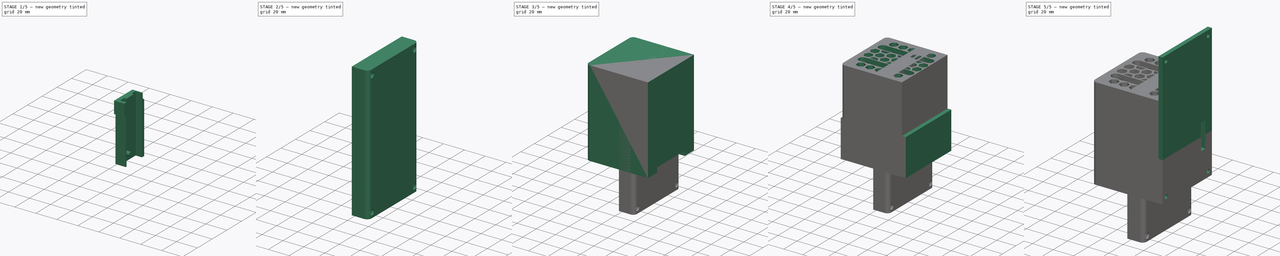
[diagram: build sequence overview — one tinted view per stage of 5, left to right]
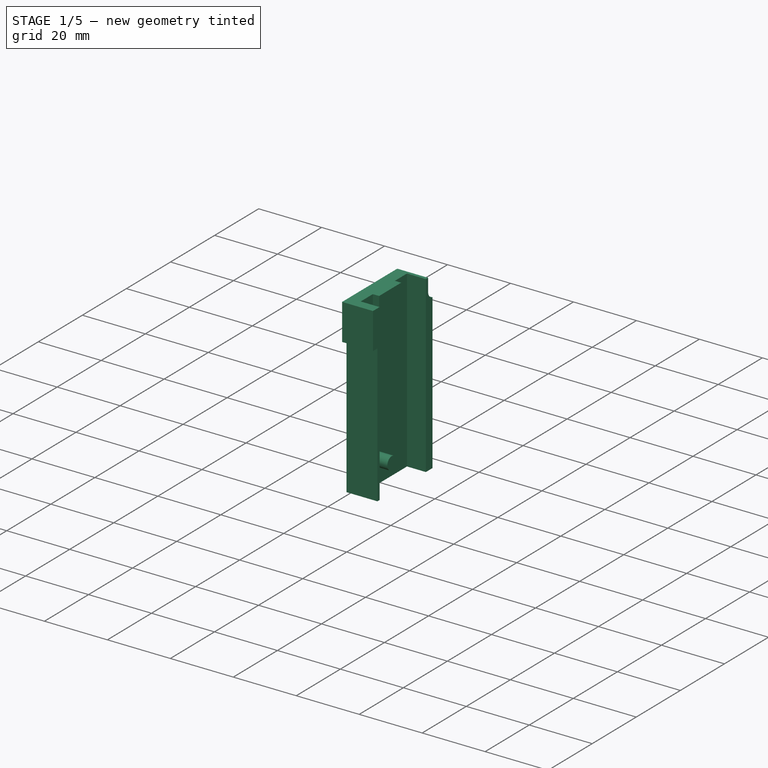
[diagram: stage 1 of 5 — iso view after this stage's code; geometry added in this stage tinted green]
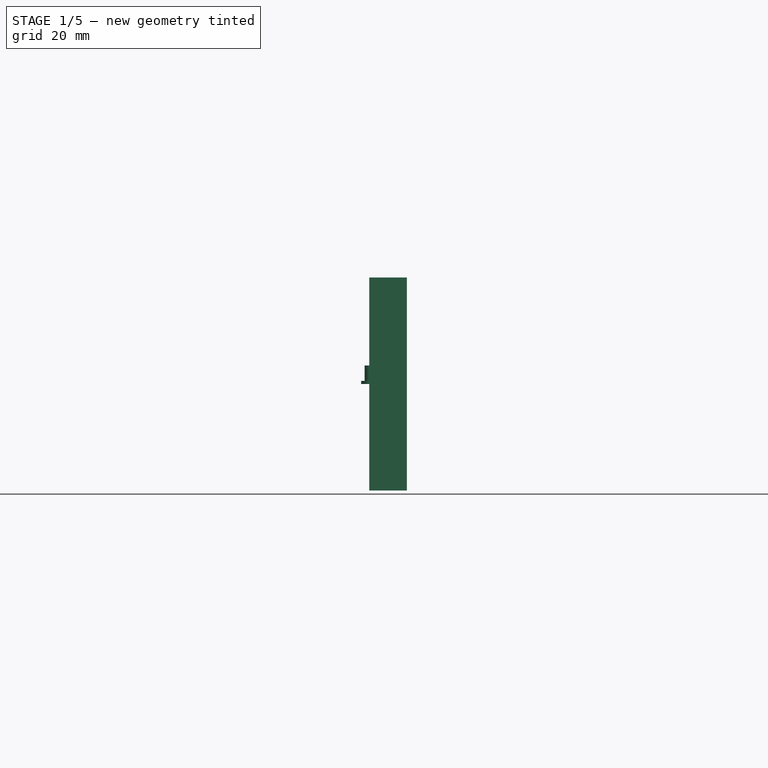
[diagram: stage 1 of 5 — front view after this stage's code; geometry added in this stage tinted green]
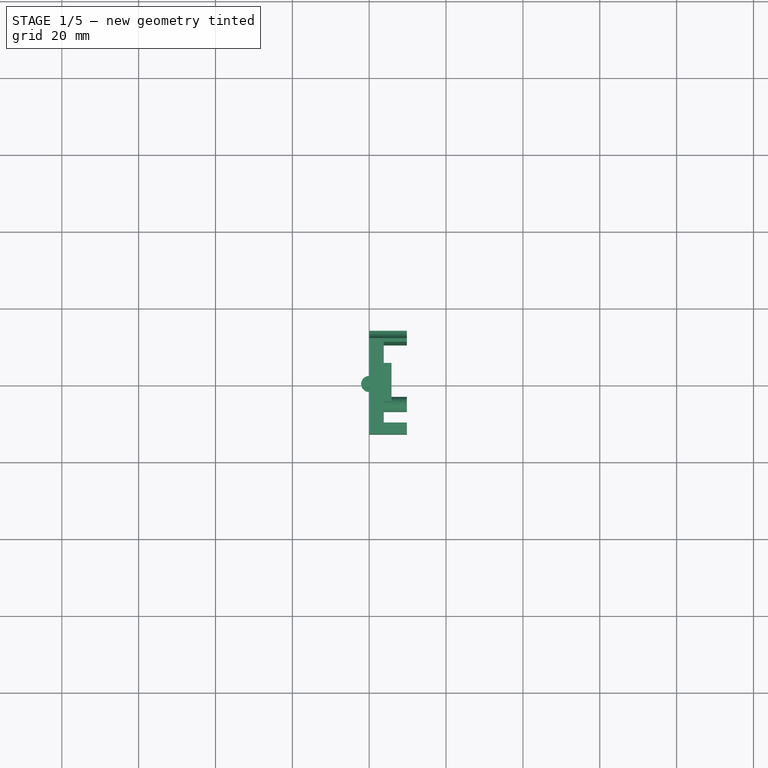
[diagram: stage 1 of 5 — top view after this stage's code; geometry added in this stage tinted green]
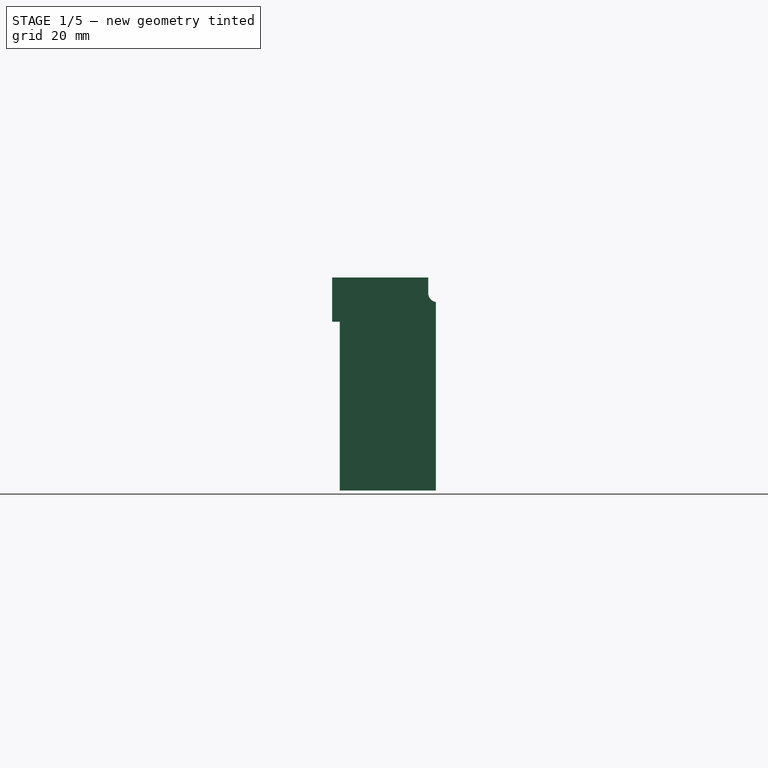
[diagram: stage 1 of 5 — right view after this stage's code; geometry added in this stage tinted green]
FCSTD DOCUMENT  (FreeCAD 1.0R39109 (Git))
Label: ssd-chiller
License: All rights reserved
LicenseURL: https://en.wikipedia.org/wiki/All_rights_reserved
objects: Sketcher::SketchObject×32, PartDesign::Pocket×20, PartDesign::Pad×12, App::Part×7, PartDesign::Body×6, Part::Feature×3, PartDesign::Fillet×3, Spreadsheet::Sheet×1, App::Link×1
note: 178 computed .brp shape members not serialized (recipe doc carries the construction recipe); baked Part::Feature solids carry a one-line shape summary decoded from their .brp

FEATURE [PartDesign::Body] Body003  label="SidecarBody"
  AllowCompound = false
  Group = -> [Sketch016,Pad004,Fillet002,Sketch017,Pocket016,Sketch018,Pocket017,Sketch019,Pocket018,Sketch020,Pocket019,Sketch021,Pocket020,Sketch022,Pad005,Sketch023,Pocket021]
  Origin = -> Origin008
  Tip = -> Pocket021
FEATURE [App::Part] Part003  label="Sidecar"
  Group = -> [Body003]
  Origin = -> Origin007
  Placement = pos=(34.2,0,0) rot=(0,0,1;0rad)
  expr: .Placement.Base.x = <<Params>>.fan_dimension / 2 + <<Params>>.wall_thickness + <<Params>>.wall_margin
FEATURE [Sketcher::SketchObject] Sketch024
  ArcFitTolerance = 1e-06
  AttachmentSupport = -> [YZ_Plane010]
  FullyConstrained = true
  MakeInternals = false
  MapMode = 5
  Placement = pos=(0,0,0) rot=(0.57735,0.57735,0.57735;2.0944rad)
  sketch-geometry (5):
    g0: LineSegment StartX=-13.5 StartY=-27.7 StartZ=0 EndX=13.5 EndY=-27.7 EndZ=0
    g1: LineSegment StartX=13.5 StartY=-27.7 StartZ=0 EndX=13.5 EndY=27.7 EndZ=0
    g2: LineSegment StartX=13.5 StartY=27.7 StartZ=0 EndX=-13.5 EndY=27.7 EndZ=0
    g3: LineSegment StartX=-13.5 StartY=27.7 StartZ=0 EndX=-13.5 EndY=-27.7 EndZ=0
    g4: GeomPoint [constr] X=0 Y=0 Z=0
  constraints (13):
    c: Coincident(g0,g1)
    c: Coincident(g1,g2)
    c: Coincident(g2,g3)
    c: Coincident(g3,g0)
    c: Horizontal(g0)
    c: Horizontal(g2)
    c: Vertical(g1)
    c: Vertical(g3)
    c: Symmetric(g2,g0,g4)
    c: Distance(g1,g3) = 27
    c: Distance(g0,g2) = 55.4
    c: PointOnObject(g4,g-2)
    c: PointOnObject(g4,g-1)
FEATURE [PartDesign::Pad] Pad006  label="PicoSpacerVolume"
  Direction = (1,0,0)
  Length = 9.8
  Length2 = 10
  Placement = pos=(0,0,0) rot=(1,1,1;2.0944rad)
  Profile = -> Sketch024
  ReferenceAxis = -> Sketch024 [N_Axis]
  Suppressed = false
  Type = 0
FEATURE [Sketcher::SketchObject] Sketch025
  ArcFitTolerance = 1e-06
  AttachmentSupport = -> [Pad006]
  ExternalGeometry = -> [Pad006]
  FullyConstrained = true
  MakeInternals = false
  MapMode = 5
  Placement = pos=(9.8,-2.2e-15,1.1e-15) rot=(0.57735,0.57735,0.57735;2.0944rad)
  sketch-geometry (4):
    g0: LineSegment StartX=-10.5 StartY=27.7 StartZ=0 EndX=-10.5 EndY=-27.7 EndZ=0
    g1: LineSegment StartX=10.5 StartY=-27.7 StartZ=0 EndX=10.5 EndY=27.7 EndZ=0
    g2: LineSegment StartX=10.5 StartY=27.7 StartZ=0 EndX=-10.5 EndY=27.7 EndZ=0
    g3: LineSegment StartX=-10.5 StartY=-27.7 StartZ=0 EndX=10.5 EndY=-27.7 EndZ=0
  constraints (12):
    c: Coincident(g1,g2)
    c: Coincident(g2,g0)
    c: Vertical(g0)
    c: Vertical(g1)
    c: Horizontal(g2)
    c: Distance(g-5,g1) = 3
    c: Distance(g-4,g0) = 3
    c: PointOnObject(g0,g-3)
    c: PointOnObject(g0,g-6)
    c: PointOnObject(g1,g-6)
    c: Coincident(g3,g0)
    c: Coincident(g3,g1)
FEATURE [PartDesign::Pocket] Pocket022
  BaseFeature = -> Pad006
  Direction = (-1,0,0)
  Length = 6
  Length2 = 5
  Placement = pos=(0,0,0) rot=(1,1,1;2.0944rad)
  Profile = -> Sketch025
  ReferenceAxis = -> Sketch025 [N_Axis]
  Suppressed = false
  Type = 0
FEATURE [Sketcher::SketchObject] Sketch026
  ArcFitTolerance = 1e-06
  AttachmentSupport = -> [Pocket022]
  ExternalGeometry = -> [Pocket022]
  FullyConstrained = true
  MakeInternals = false
  MapMode = 5
  Placement = pos=(3.8,-8e-16,4e-16) rot=(0.57735,0.57735,0.57735;2.0944rad)
  sketch-geometry (5):
    g0: LineSegment StartX=-5 StartY=27.7 StartZ=0 EndX=-5 EndY=23.7 EndZ=0
    g1: LineSegment StartX=-5 StartY=23.7 StartZ=0 EndX=5 EndY=23.7 EndZ=0
    g2: LineSegment StartX=5 StartY=23.7 StartZ=0 EndX=5 EndY=27.7 EndZ=0
    g3: LineSegment StartX=5 StartY=27.7 StartZ=0 EndX=-5 EndY=27.7 EndZ=0
    g4: GeomPoint [constr] X=0 Y=25.7 Z=0
  constraints (13):
    c: Coincident(g0,g1)
    c: Coincident(g1,g2)
    c: Coincident(g2,g3)
    c: Coincident(g3,g0)
    c: Vertical(g0)
    c: Vertical(g2)
    c: Horizontal(g1)
    c: Horizontal(g3)
    c: Symmetric(g2,g0,g4)
    c: PointOnObject(g4,g-2)
    c: Distance(g3,g3) = 10
    c: Distance(g2,g2) = 4
    c: PointOnObject(g2,g-3)
FEATURE [PartDesign::Pad] Pad007  label="PowerSwitchRetainer"
  BaseFeature = -> Pocket022
  Direction = (1,0,0)
  Length = 2
  Length2 = 10
  Placement = pos=(0,0,0) rot=(1,1,1;2.0944rad)
  Profile = -> Sketch026
  ReferenceAxis = -> Sketch026 [N_Axis]
  Suppressed = false
  Type = 0
FEATURE [Sketcher::SketchObject] Sketch027
  ArcFitTolerance = 1e-06
  AttachmentSupport = -> [Pad007]
  ExternalGeometry = -> [Pad007]
  FullyConstrained = true
  MakeInternals = false
  MapMode = 5
  Placement = pos=(3.8,-1.7e-15,8e-16) rot=(0.57735,0.57735,0.57735;2.0944rad)
  sketch-geometry (1):
    g0: Circle CenterX=-5 CenterY=-19.2 CenterZ=0 NormalX=0 NormalY=0 NormalZ=1 AngleXU=0 Radius=2
  constraints (3):
    c: Diameter(g0) = 4
    c: Distance(g0,g-3) = 5.5
    c: Distance(g0,g-4) = 8.5
FEATURE [PartDesign::Pad] Pad008  label="UserSwitchRetainer"
  BaseFeature = -> Pad007
  Direction = (1,0,0)
  Length = 6
  Length2 = 10
  Placement = pos=(0,0,0) rot=(1,1,1;2.0944rad)
  Profile = -> Sketch027
  ReferenceAxis = -> Sketch027 [N_Axis]
  Suppressed = false
  Type = 0
FEATURE [Sketcher::SketchObject] Sketch028
  ArcFitTolerance = 1e-06
  AttachmentSupport = -> [Pad008]
  ExternalGeometry = -> [Pad008]
  FullyConstrained = true
  MakeInternals = false
  MapMode = 5
  Placement = pos=(0,0,0) rot=(0.57735,0.57735,-0.57735;4.18879rad)
  expr: Constraints[14] = <<Params>>.sidecar_bolt_diameter / 2 + 1 mm
  expr: Constraints[9] = <<Params>>.wall_thickness / 2
  sketch-geometry (8):
    g0: LineSegment StartX=-13.5 StartY=27.7 StartZ=0 EndX=-13.5 EndY=-16.2 EndZ=0
    g1: LineSegment StartX=-13.5 StartY=-16.2 StartZ=0 EndX=-11.5 EndY=-16.2 EndZ=0
    g2: LineSegment StartX=-11.5 StartY=-16.2 StartZ=0 EndX=-11.5 EndY=27.7 EndZ=0
    g3: LineSegment StartX=-11.5 StartY=27.7 StartZ=0 EndX=-13.5 EndY=27.7 EndZ=0
    g4: ArcOfCircle CenterX=13.9 CenterY=-23.7 CenterZ=0 NormalX=0 NormalY=0 NormalZ=1 AngleXU=0 Radius=2.4 StartAngle=1.73824 EndAngle=3.14159
    g5: LineSegment StartX=11.5 StartY=-23.7 StartZ=0 EndX=11.5 EndY=-27.7 EndZ=0
    g6: LineSegment StartX=11.5 StartY=-27.7 StartZ=0 EndX=13.5 EndY=-27.7 EndZ=0
    g7: LineSegment StartX=13.5 StartY=-27.7 StartZ=0 EndX=13.5 EndY=-21.3336 EndZ=0
  constraints (23):
    c: Coincident(g0,g1)
    c: Coincident(g1,g2)
    c: Coincident(g2,g3)
    c: Coincident(g3,g0)
    c: Vertical(g0)
    c: Vertical(g2)
    c: Horizontal(g1)
    c: Horizontal(g3)
    c: Coincident(g0,g-4)
    c: Distance(g1,g0) = 2
    c: DistanceY(g-6,g1) = 11.5
    c: Horizontal(g4,g4)
    c: Distance(g4,g-5) = 0.4
    c: DistanceY(g-6,g4) = 4
    c: Radius(g4) = 2.4
    c: PointOnObject(g4,g-5)
    c: Coincident(g5,g4)
    c: PointOnObject(g5,g-6)
    c: Vertical(g5)
    c: Coincident(g6,g5)
    c: Coincident(g6,g-6)
    c: Coincident(g7,g6)
    c: Coincident(g7,g4)
FEATURE [PartDesign::Pocket] Pocket023
  BaseFeature = -> Pad008
  Direction = (1,0,0)
  Length = 9.8
  Length2 = 5
  Placement = pos=(0,0,0) rot=(1,1,1;2.0944rad)
  Profile = -> Sketch028
  ReferenceAxis = -> Sketch028 [N_Axis]
  Suppressed = false
  Type = 0
FEATURE [PartDesign::Body] Body004  label="PicoSpacerBody"
  AllowCompound = false
  Group = -> [Sketch024,Pad006,Sketch025,Pocket022,Sketch026,Pad007,Sketch027,Pad008,Sketch028,Pocket023,Sketch029,Pad009]
  Origin = -> Origin010
  Tip = -> Pad009
FEATURE [App::Part] Part004  label="PicoSpacer"
  Group = -> [Body004]
  Origin = -> Origin009
  Placement = pos=(34.2,15.3,61.3) rot=(0,0,1;0rad)
FEATURE [Sketcher::SketchObject] Sketch030
  ArcFitTolerance = 1e-06
  AttachmentSupport = -> [XY_Plane012]
  FullyConstrained = true
  MakeInternals = false
  MapMode = 5
  sketch-geometry (1):
    g0: Circle CenterX=0 CenterY=0 CenterZ=0 NormalX=0 NormalY=0 NormalZ=1 AngleXU=0 Radius=2.1
  constraints (2):
    c: Coincident(g0,g-1)
    c: Diameter(g0) = 4.2
FEATURE [PartDesign::Pad] Pad010
  Direction = (0,0,1)
  Length = 0.8
  Length2 = 10
  Profile = -> Sketch030
  ReferenceAxis = -> Sketch030 [N_Axis]
  Suppressed = false
  Type = 0
FEATURE [Sketcher::SketchObject] Sketch031
  ArcFitTolerance = 1e-06
  AttachmentSupport = -> [Pad010]
  FullyConstrained = true
  MakeInternals = false
  MapMode = 5
  Placement = pos=(0,0,0.8) rot=(0,0,1;0rad)
  sketch-geometry (1):
    g0: Circle CenterX=0 CenterY=0 CenterZ=0 NormalX=0 NormalY=0 NormalZ=1 AngleXU=0 Radius=1.2
  constraints (2):
    c: Diameter(g0) = 2.4
    c: Coincident(g0,g-1)
FEATURE [PartDesign::Pad] Pad011
  BaseFeature = -> Pad010
  Direction = (0,0,1)
  Length = 4
  Length2 = 10
  Profile = -> Sketch031
  ReferenceAxis = -> Sketch031 [N_Axis]
  Suppressed = false
  Type = 0
FEATURE [PartDesign::Body] Body005  label="ButtonBody"
  AllowCompound = false
  Group = -> [Sketch030,Pad010,Sketch031,Pad011]
  Origin = -> Origin012
  Tip = -> Pad011
FEATURE [App::Part] Part005  label="Button"
  Group = -> [Body005]
  Origin = -> Origin011
  Placement = pos=(47,10.25,42) rot=(0,1,0;1.5708rad)
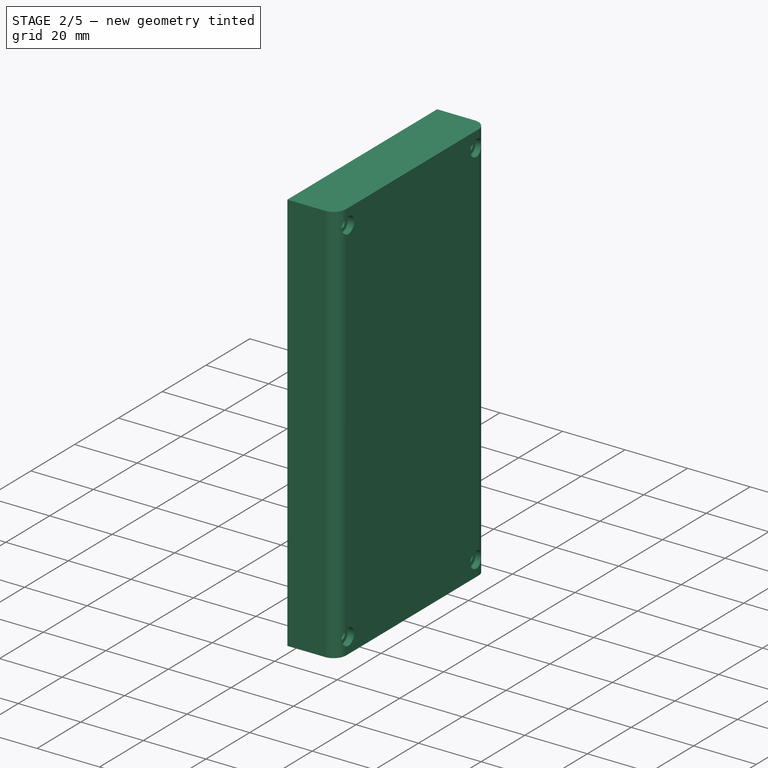
[diagram: stage 2 of 5 — iso view after this stage's code; geometry added in this stage tinted green]
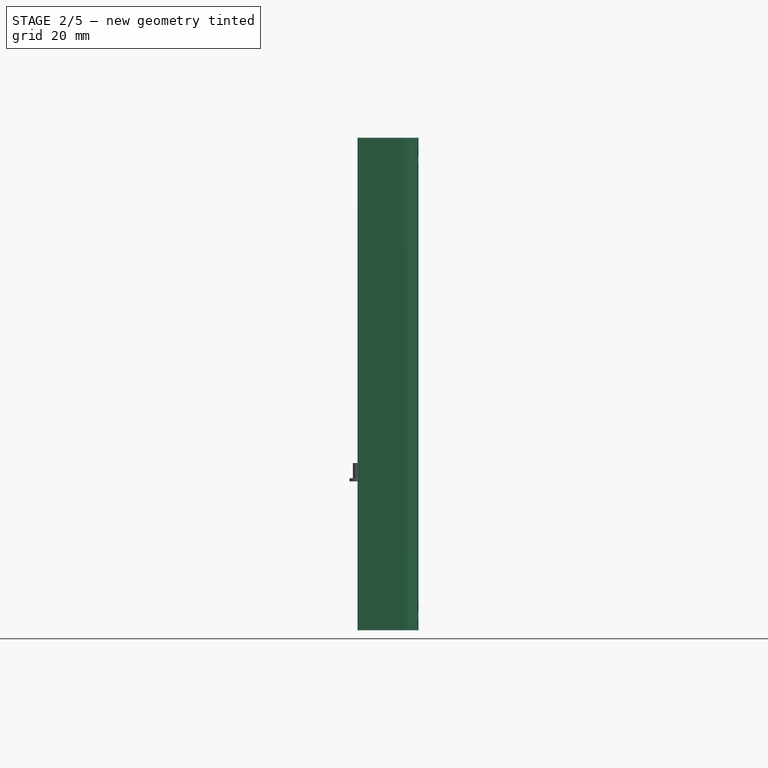
[diagram: stage 2 of 5 — front view after this stage's code; geometry added in this stage tinted green]
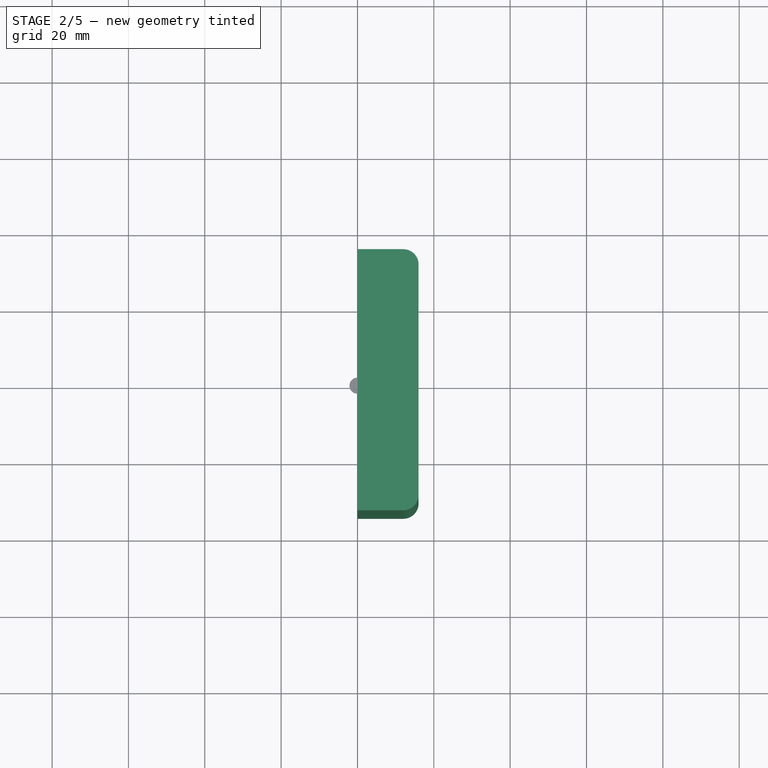
[diagram: stage 2 of 5 — top view after this stage's code; geometry added in this stage tinted green]
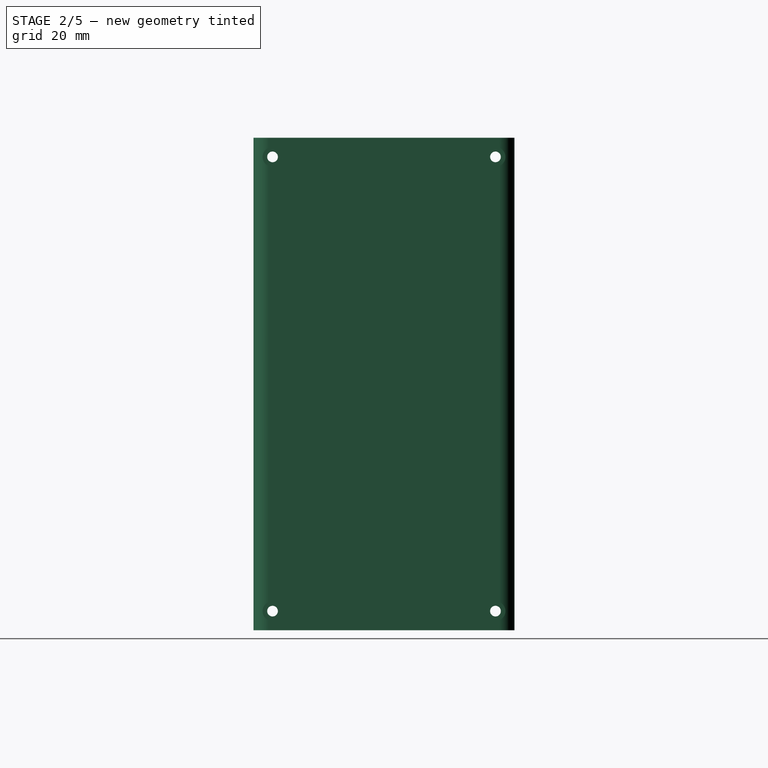
[diagram: stage 2 of 5 — right view after this stage's code; geometry added in this stage tinted green]
FEATURE [PartDesign::Body] Body002  label="HolderBody"
  AllowCompound = false
  Group = -> [Sketch010,Pad003,Fillet001,Sketch011,Pocket011,Sketch012,Pocket012,Sketch013,Pocket013,Sketch014,Pocket014,Sketch015,Pocket015]
  Origin = -> Origin006
  Tip = -> Pocket015
FEATURE [App::Part] Part002  label="Holder"
  Group = -> [Body002]
  Origin = -> Origin005
FEATURE [Sketcher::SketchObject] Sketch016
  ArcFitTolerance = 1e-06
  AttachmentSupport = -> [YZ_Plane008]
  FullyConstrained = true
  MakeInternals = false
  MapMode = 5
  Placement = pos=(0,0,0) rot=(0.57735,0.57735,0.57735;2.0944rad)
  expr: Constraints[10] = <<Params>>.fan_dimension + 2 * (<<Params>>.wall_thickness + <<Params>>.wall_margin)
  expr: Constraints[11] = <<Params>>.overall_height
  expr: Constraints[12] = <<Params>>.bottom_thickness + <<Params>>.fan_airgap + <<Params>>.fan_depth
  sketch-geometry (5):
    g0: LineSegment StartX=-34.2 StartY=90 StartZ=0 EndX=-34.2 EndY=-39 EndZ=0
    g1: LineSegment StartX=-34.2 StartY=-39 StartZ=0 EndX=34.2 EndY=-39 EndZ=0
    g2: LineSegment StartX=34.2 StartY=-39 StartZ=0 EndX=34.2 EndY=90 EndZ=0
    g3: LineSegment StartX=34.2 StartY=90 StartZ=0 EndX=-34.2 EndY=90 EndZ=0
    g4: GeomPoint [constr] X=0 Y=25.5 Z=0
  constraints (13):
    c: Coincident(g0,g1)
    c: Coincident(g1,g2)
    c: Coincident(g2,g3)
    c: Coincident(g3,g0)
    c: Vertical(g0)
    c: Vertical(g2)
    c: Horizontal(g1)
    c: Horizontal(g3)
    c: Symmetric(g2,g0,g4)
    c: PointOnObject(g4,g-2)
    c: DistanceX(g1,g1) = 68.4
    c: DistanceY(g1,g2) = 129
    c: Distance(g-1,g1) = 39
FEATURE [PartDesign::Pad] Pad004  label="SidecarVolume"
  Direction = (1,0,0)
  Length = 16
  Length2 = 10
  Placement = pos=(0,0,0) rot=(1,1,1;2.0944rad)
  Profile = -> Sketch016
  ReferenceAxis = -> Sketch016 [N_Axis]
  Suppressed = false
  Type = 0
  expr: Length = <<Params>>.sidecar_depth
FEATURE [PartDesign::Fillet] Fillet002
  Base = -> Pad004 [Edge4,Edge10]
  BaseFeature = -> Pad004
  Placement = pos=(0,0,0) rot=(1,1,1;2.0944rad)
  Radius = 4
  SupportTransform = false
  Suppressed = false
  UseAllEdges = false
  expr: Radius = <<Params>>.wall_thickness
FEATURE [Sketcher::SketchObject] Sketch017
  ArcFitTolerance = 1e-06
  AttachmentSupport = -> [Fillet002]
  ExternalGeometry = -> [Fillet002]
  FullyConstrained = true
  MakeInternals = false
  MapMode = 5
  Placement = pos=(16,-3.6e-15,1.8e-15) rot=(0.57735,0.57735,0.57735;2.0944rad)
  expr: Constraints[0] = <<Params>>.sidecar_bolt_diameter
  expr: Constraints[10] = <<Params>>.side_insert_inset
  expr: Constraints[11] = <<Params>>.side_insert_inset
  expr: Constraints[1] = <<Params>>.sidecar_bolt_diameter
  expr: Constraints[2] = <<Params>>.sidecar_bolt_diameter
  expr: Constraints[3] = <<Params>>.sidecar_bolt_diameter
  expr: Constraints[4] = <<Params>>.side_insert_inset
  expr: Constraints[5] = <<Params>>.side_insert_inset
  expr: Constraints[6] = <<Params>>.side_insert_inset
  expr: Constraints[7] = <<Params>>.side_insert_inset
  expr: Constraints[8] = <<Params>>.side_insert_inset
  expr: Constraints[9] = <<Params>>.side_insert_inset
  sketch-geometry (4):
    g0: Circle CenterX=-29.2 CenterY=85 CenterZ=0 NormalX=0 NormalY=0 NormalZ=1 AngleXU=0 Radius=1.4
    g1: Circle CenterX=29.2 CenterY=85 CenterZ=0 NormalX=0 NormalY=0 NormalZ=1 AngleXU=0 Radius=1.4
    g2: Circle CenterX=29.2 CenterY=-34 CenterZ=0 NormalX=0 NormalY=0 NormalZ=1 AngleXU=0 Radius=1.4
    g3: Circle CenterX=-29.2 CenterY=-34 CenterZ=0 NormalX=0 NormalY=0 NormalZ=1 AngleXU=0 Radius=1.4
  constraints (12):
    c: Diameter(g0) = 2.8
    c: Diameter(g1) = 2.8
    c: Diameter(g2) = 2.8
    c: Diameter(g3) = 2.8
    c: Distance(g3,g-5) = 5
    c: Distance(g3,g-4) = 5
    c: Distance(g2,g-4) = 5
    c: Distance(g2,g-6) = 5
    c: Distance(g1,g-3) = 5
    c: Distance(g1,g-6) = 5
    c: Distance(g0,g-5) = 5
    c: Distance(g0,g-3) = 5
FEATURE [PartDesign::Pocket] Pocket016  label="SidecarBoltHoles"
  BaseFeature = -> Fillet002
  Direction = (-1,0,0)
  Length = 16
  Length2 = 5
  Placement = pos=(0,0,0) rot=(1,1,1;2.0944rad)
  Profile = -> Sketch017
  ReferenceAxis = -> Sketch017 [N_Axis]
  Suppressed = false
  Type = 0
  expr: Length = <<Params>>.sidecar_depth
FEATURE [Sketcher::SketchObject] Sketch018
  ArcFitTolerance = 1e-06
  AttachmentSupport = -> [Pocket016]
  ExternalGeometry = -> [Fillet002]
  FullyConstrained = true
  MakeInternals = false
  MapMode = 5
  Placement = pos=(16,-7.1e-15,3.6e-15) rot=(0.57735,0.57735,0.57735;2.0944rad)
  expr: Constraints[0] = 5.2 mm
  expr: Constraints[10] = <<Params>>.side_insert_inset
  expr: Constraints[11] = <<Params>>.side_insert_inset
  expr: Constraints[1] = 5.2
  expr: Constraints[2] = 5.2
  expr: Constraints[3] = 5.2
  expr: Constraints[4] = <<Params>>.side_insert_inset
  expr: Constraints[5] = <<Params>>.side_insert_inset
  expr: Constraints[6] = <<Params>>.side_insert_inset
  expr: Constraints[7] = <<Params>>.side_insert_inset
  expr: Constraints[8] = <<Params>>.side_insert_inset
  expr: Constraints[9] = <<Params>>.side_insert_inset
  sketch-geometry (4):
    g0: Circle CenterX=-29.2 CenterY=85 CenterZ=0 NormalX=0 NormalY=0 NormalZ=1 AngleXU=0 Radius=2.6
    g1: Circle CenterX=29.2 CenterY=85 CenterZ=0 NormalX=0 NormalY=0 NormalZ=1 AngleXU=0 Radius=2.6
    g2: Circle CenterX=29.2 CenterY=-34 CenterZ=0 NormalX=0 NormalY=0 NormalZ=1 AngleXU=0 Radius=2.6
    g3: Circle CenterX=-29.2 CenterY=-34 CenterZ=0 NormalX=0 NormalY=0 NormalZ=1 AngleXU=0 Radius=2.6
  constraints (12):
    c: Diameter(g0) = 5.2
    c: Diameter(g1) = 5.2
    c: Diameter(g2) = 5.2
    c: Diameter(g3) = 5.2
    c: Distance(g3,g-5) = 5
    c: Distance(g3,g-4) = 5
    c: Distance(g2,g-4) = 5
    c: Distance(g2,g-6) = 5
    c: Distance(g1,g-3) = 5
    c: Distance(g1,g-6) = 5
    c: Distance(g0,g-5) = 5
    c: Distance(g0,g-3) = 5
FEATURE [PartDesign::Pocket] Pocket017  label="SidecarBoltRecesses"
  BaseFeature = -> Pocket016
  Direction = (-1,0,0)
  Length = 2
  Length2 = 5
  Placement = pos=(0,0,0) rot=(1,1,1;2.0944rad)
  Profile = -> Sketch018
  ReferenceAxis = -> Sketch018 [N_Axis]
  Suppressed = false
  Type = 0
FEATURE [Sketcher::SketchObject] Sketch019
  ArcFitTolerance = 1e-06
  AttachmentSupport = -> [Pocket017]
  ExternalGeometry = -> [Pocket017]
  FullyConstrained = true
  MakeInternals = false
  MapMode = 5
  Placement = pos=(-1.7e-14,0,0) rot=(0.57735,0.57735,-0.57735;4.18879rad)
  expr: Constraints[10] = <<Params>>.side_insert_inset
  expr: Constraints[15] = <<Params>>.side_insert_inset
  expr: Constraints[20] = <<Params>>.sidecar_bolt_diameter / 2 + 2 mm
  expr: Constraints[21] = <<Params>>.sidecar_bolt_diameter / 2 + 2 mm
  expr: Constraints[29] = <<Params>>.wall_thickness / 2
  expr: Constraints[33] = <<Params>>.wall_thickness / 2
  expr: Constraints[42] = <<Params>>.wall_thickness / 2
  expr: Constraints[47] = <<Params>>.sidecar_bolt_diameter / 2 + 2 mm
  expr: Constraints[56] = <<Params>>.overall_height / 2
  expr: Constraints[67] = <<Params>>.wall_thickness / 2
  expr: Constraints[68] = <<Params>>.wall_thickness / 2
  expr: Constraints[82] = <<Params>>.wall_thickness / 2
  expr: Constraints[88] = (<<Params>>.overall_height - 10 mm) / 2
  expr: Constraints[8] = <<Params>>.side_insert_inset
  expr: Constraints[9] = <<Params>>.side_insert_inset
  sketch-geometry (29):
    g0: ArcOfCircle CenterX=29.2 CenterY=34 CenterZ=0 NormalX=0 NormalY=0 NormalZ=1 AngleXU=0 Radius=3.4 StartAngle=3.14159 EndAngle=4.71239
    g1: ArcOfCircle CenterX=29.2 CenterY=-85 CenterZ=0 NormalX=0 NormalY=0 NormalZ=1 AngleXU=0 Radius=2.4 StartAngle=1.5708 EndAngle=3.14159
    g2: ArcOfCircle CenterX=-29.2 CenterY=-85 CenterZ=0 NormalX=0 NormalY=0 NormalZ=1 AngleXU=0 Radius=3.4 StartAngle=1.5e-15 EndAngle=1.5708
    g3: ArcOfCircle CenterX=-29.2 CenterY=34 CenterZ=0 NormalX=0 NormalY=0 NormalZ=1 AngleXU=0 Radius=3.4 StartAngle=4.71239 EndAngle=6.28319
    g4: LineSegment StartX=-25.8 StartY=-89 StartZ=0 EndX=26.8 EndY=-89 EndZ=0
    g5: LineSegment StartX=26.8 StartY=-89 StartZ=0 EndX=26.8 EndY=-85 EndZ=0
    g6: LineSegment StartX=-25.8 StartY=34 StartZ=0 EndX=-25.8 EndY=37 EndZ=0
    g7: LineSegment StartX=-25.8 StartY=37 StartZ=0 EndX=25.8 EndY=37 EndZ=0
    g8: LineSegment StartX=25.8 StartY=37 StartZ=0 EndX=25.8 EndY=34 EndZ=0
    g9: LineSegment StartX=-29.2 StartY=30.6 StartZ=0 EndX=-32.2 EndY=30.6 EndZ=0
    g10: LineSegment StartX=-32.2 StartY=-81.6 StartZ=0 EndX=-29.2 EndY=-81.6 EndZ=0
    g11: LineSegment StartX=29.2 StartY=-82.6 StartZ=0 EndX=32.2 EndY=-82.6 EndZ=0
    g12: LineSegment StartX=32.2 StartY=-82.6 StartZ=0 EndX=32.2 EndY=30.6 EndZ=0
    g13: LineSegment StartX=32.2 StartY=30.6 StartZ=0 EndX=29.2 EndY=30.6 EndZ=0
    g14: LineSegment StartX=-25.8 StartY=-89 StartZ=0 EndX=-25.8 EndY=-85 EndZ=0
    g15: LineSegment StartX=-32.2 StartY=24.5 StartZ=0 EndX=-32.2 EndY=-75.5 EndZ=0
    g16: LineSegment StartX=-32.2 StartY=-75.5 StartZ=0 EndX=1.8 EndY=-75.5 EndZ=0
    g17: LineSegment StartX=1.8 StartY=24.5 StartZ=0 EndX=-32.2 EndY=24.5 EndZ=0
    g18: GeomPoint [constr] X=-15.2 Y=-25.5 Z=0
    g19: LineSegment StartX=-32.2 StartY=30.6 StartZ=0 EndX=-32.2 EndY=26.5 EndZ=0
    g20: LineSegment StartX=-32.2 StartY=26.5 StartZ=0 EndX=3.8 EndY=26.5 EndZ=0
    g21: LineSegment StartX=3.8 StartY=-77.5 StartZ=0 EndX=-32.2 EndY=-77.5 EndZ=0
    g22: LineSegment StartX=-32.2 StartY=-77.5 StartZ=0 EndX=-32.2 EndY=-81.6 EndZ=0
    g23: LineSegment StartX=1.8 StartY=24.5 StartZ=0 EndX=1.8 EndY=-20.5 EndZ=0
    g24: LineSegment StartX=3.8 StartY=26.5 StartZ=0 EndX=3.8 EndY=-20.5 EndZ=0
    g25: LineSegment StartX=1.8 StartY=-20.5 StartZ=0 EndX=3.8 EndY=-20.5 EndZ=0
    g26: LineSegment StartX=1.8 StartY=-75.5 StartZ=0 EndX=1.8 EndY=-30.5 EndZ=0
    g27: LineSegment StartX=1.8 StartY=-30.5 StartZ=0 EndX=3.8 EndY=-30.5 EndZ=0
    g28: LineSegment StartX=3.8 StartY=-30.5 StartZ=0 EndX=3.8 EndY=-77.5 EndZ=0
  constraints (89):
    c: Vertical(g3,g3)
    c: Vertical(g2,g2)
    c: Horizontal(g2,g2)
    c: Horizontal(g3,g3)
    c: Horizontal(g0,g0)
    c: Vertical(g0,g0)
    c: Vertical(g1,g1)
    c: Horizontal(g1,g1)
    c: Distance(g2,g-4) = 5
    c: Distance(g1,g-6) = 5
    c: Distance(g1,g-3) = 5
    c: Horizontal(g2,g1)
    c: Vertical(g1,g0)
    c: Horizontal(g0,g3)
    c: Vertical(g3,g2)
    c: Distance(g0,g-5) = 5
    c: Horizontal(g4)
    c: Coincident(g5,g4)
    c: Vertical(g5)
    c: Distance(g-3,g4) = 1
    c: Radius(g0) = 3.4
    c: Radius(g3) = 3.4
    c: Coincident(g6,g3)
    c: Vertical(g6)
    c: Coincident(g7,g6)
    c: Horizontal(g7)
    c: Coincident(g8,g7)
    c: Coincident(g8,g0)
    c: Vertical(g8)
    c: Distance(g-5,g7) = 2
    c: Horizontal(g9)
    c: Horizontal(g10)
    c: Coincident(g10,g2)
    c: Distance(g9,g-4) = 2
    c: Coincident(g9,g3)
    c: Coincident(g11,g1)
    c: Horizontal(g11)
    c: Coincident(g12,g11)
    c: Vertical(g12)
    c: Coincident(g13,g12)
    c: Coincident(g13,g0)
    c: Horizontal(g13)
    c: Distance(g-6,g12) = 2
    c: Coincident(g5,g1)
    c: Coincident(g14,g4)
    c: Coincident(g14,g2)
    c: Vertical(g14)
    c: Radius(g2) = 3.4
    c: Coincident(g15,g16)
    c: Coincident(g17,g15)
    c: Vertical(g15)
    c: Horizontal(g16)
    c: Horizontal(g17)
    c: Symmetric(g16,g15,g18)
    c: DistanceX(g17,g17) = 34
    c: DistanceY(g16,g17) = 100
    c: Distance(g18,g-3) = 64.5
    c: Vertical(g15,g9)
    c: Vertical(g10,g15)
    c: Coincident(g9,g19)
    c: Vertical(g19)
    c: Coincident(g19,g20)
    c: Horizontal(g20)
    c: Horizontal(g21)
    c: Coincident(g21,g22)
    c: Coincident(g22,g10)
    c: Vertical(g22)
    c: Distance(g20,g17) = 2
    c: Distance(g16,g21) = 2
    c: Coincident(g23,g17)
    c: Vertical(g23)
    c: Coincident(g24,g20)
    c: Vertical(g24)
    c: Coincident(g25,g23)
    c: Coincident(g25,g24)
    c: Coincident(g26,g16)
    c: Vertical(g26)
    c: Coincident(g27,g26)
    c: Horizontal(g27)
    c: Coincident(g28,g27)
    c: Coincident(g28,g21)
    c: Vertical(g28)
    c: Distance(g24,g23) = 2
    c: Horizontal(g25)
    c: Vertical(g24,g27)
    c: Vertical(g26,g23)
    c: Distance(g27,g25) = 10
    c: Distance(g1,g-7) = 1
    c: Distance(g-3,g27) = 59.5
FEATURE [PartDesign::Pocket] Pocket018  label="ElectronicsCutout"
  BaseFeature = -> Pocket017
  Direction = (1,0,0)
  Length = 11
  Length2 = 5
  Placement = pos=(0,0,0) rot=(1,1,1;2.0944rad)
  Profile = -> Sketch019
  ReferenceAxis = -> Sketch019 [N_Axis]
  Suppressed = false
  Type = 0
  expr: Length = 11 mm
FEATURE [Sketcher::SketchObject] Sketch020
  ArcFitTolerance = 1e-06
  AttachmentSupport = -> [Pocket018]
  ExternalGeometry = -> [Pocket018]
  FullyConstrained = true
  MakeInternals = false
  MapMode = 5
  Placement = pos=(11,-2.4e-15,1.2e-15) rot=(0.57735,0.57735,-0.57735;4.18879rad)
  sketch-geometry (5):
    g0: LineSegment StartX=4.8 StartY=-89 StartZ=0 EndX=25.8 EndY=-89 EndZ=0
    g1: LineSegment StartX=25.8 StartY=-89 StartZ=0 EndX=25.8 EndY=-36.6 EndZ=0
    g2: LineSegment StartX=25.8 StartY=-36.6 StartZ=0 EndX=4.8 EndY=-36.6 EndZ=0
    g3: LineSegment StartX=4.8 StartY=-36.6 StartZ=0 EndX=4.8 EndY=-89 EndZ=0
    g4: GeomPoint [constr] X=15.3 Y=-62.8 Z=0
  constraints (13):
    c: Coincident(g0,g1)
    c: Coincident(g1,g2)
    c: Coincident(g2,g3)
    c: Coincident(g3,g0)
    c: Horizontal(g0)
    c: Horizontal(g2)
    c: Vertical(g1)
    c: Vertical(g3)
    c: Symmetric(g2,g0,g4)
    c: Distance(g1,g3) = 21
    c: Distance(g0,g2) = 52.4
    c: PointOnObject(g0,g-4)
    c: Distance(g-3,g3) = 1
FEATURE [PartDesign::Pocket] Pocket019  label="PicoCutout"
  BaseFeature = -> Pocket018
  Direction = (1,0,0)
  Length = 3
  Length2 = 5
  Placement = pos=(0,0,0) rot=(1,1,1;2.0944rad)
  Profile = -> Sketch020
  ReferenceAxis = -> Sketch020 [N_Axis]
  Suppressed = false
  Type = 0
FEATURE [Sketcher::SketchObject] Sketch029
  ArcFitTolerance = 1e-06
  AttachmentSupport = -> [Pocket023]
  ExternalGeometry = -> [Pocket023]
  FullyConstrained = true
  MakeInternals = false
  MapMode = 5
  Placement = pos=(3e-15,13.5,-1.95e-14) rot=(0.57735,0.57735,0.57735;4.18879rad)
  sketch-geometry (4):
    g0: LineSegment StartX=-27.7 StartY=4.31e-14 StartZ=0 EndX=20.3336 EndY=4.31e-14 EndZ=0
    g1: LineSegment StartX=20.3336 StartY=4.31e-14 StartZ=0 EndX=20.3336 EndY=4.9 EndZ=0
    g2: LineSegment StartX=-27.7 StartY=4.31e-14 StartZ=0 EndX=-27.7 EndY=4.9 EndZ=0
    g3: LineSegment StartX=-27.7 StartY=4.9 StartZ=0 EndX=20.3336 EndY=4.9 EndZ=0
  constraints (10):
    c: Coincident(g0,g1)
    c: Vertical(g1)
    c: Horizontal(g0)
    c: Distance(g-5,g1) = 1
    c: Coincident(g-3,g0)
    c: Coincident(g2,g0)
    c: Symmetric(g-3,g-3,g2)
    c: Coincident(g3,g2)
    c: Coincident(g3,g1)
    c: Horizontal(g3)
FEATURE [PartDesign::Pad] Pad009
  BaseFeature = -> Pocket023
  Direction = (0,1,-1.3e-15)
  Length = 3.4
  Length2 = 10
  Placement = pos=(0,0,0) rot=(1,1,1;2.0944rad)
  Profile = -> Sketch029
  ReferenceAxis = -> Sketch029 [N_Axis]
  Suppressed = false
  Type = 0
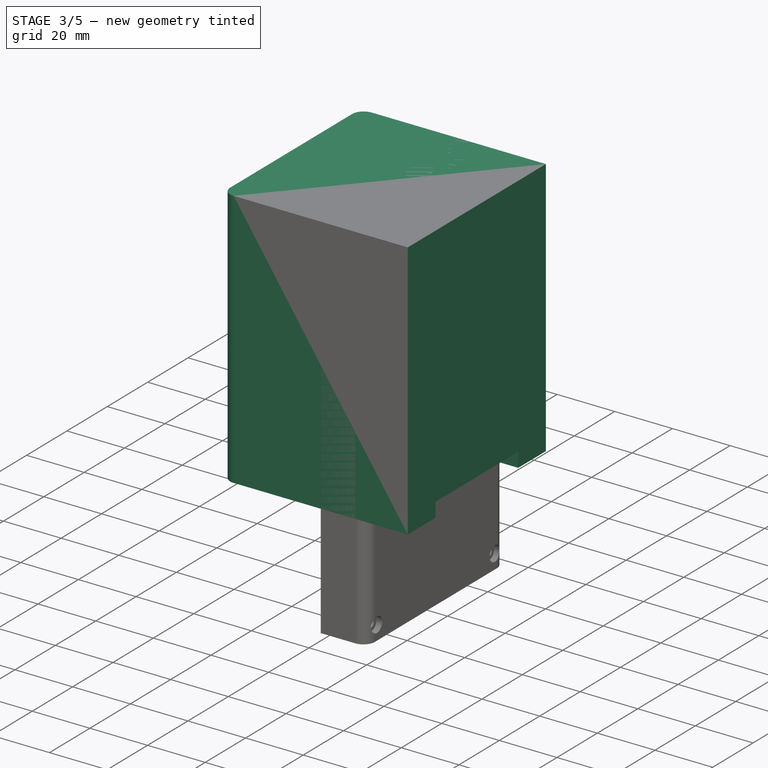
[diagram: stage 3 of 5 — iso view after this stage's code; geometry added in this stage tinted green]
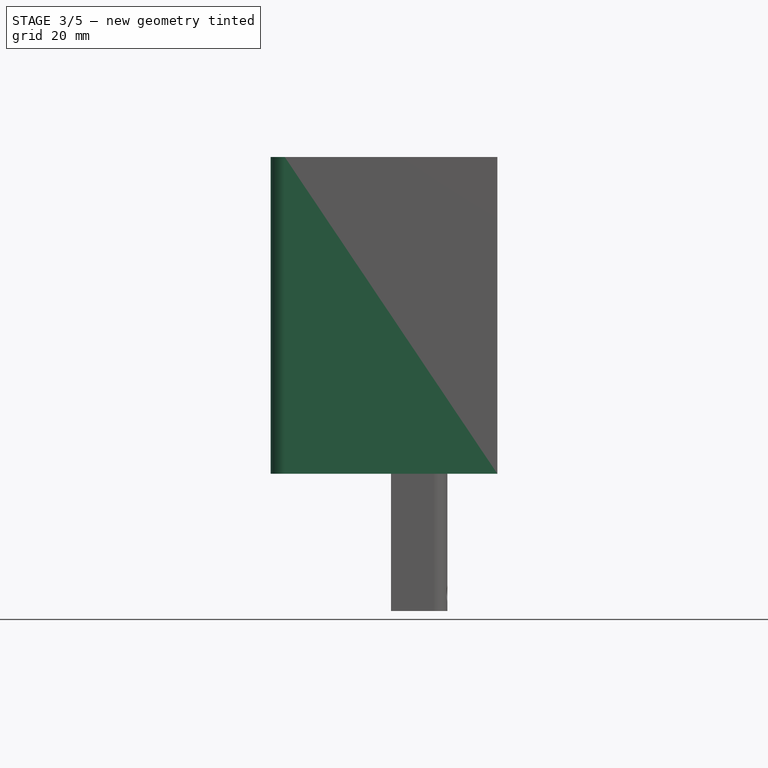
[diagram: stage 3 of 5 — front view after this stage's code; geometry added in this stage tinted green]
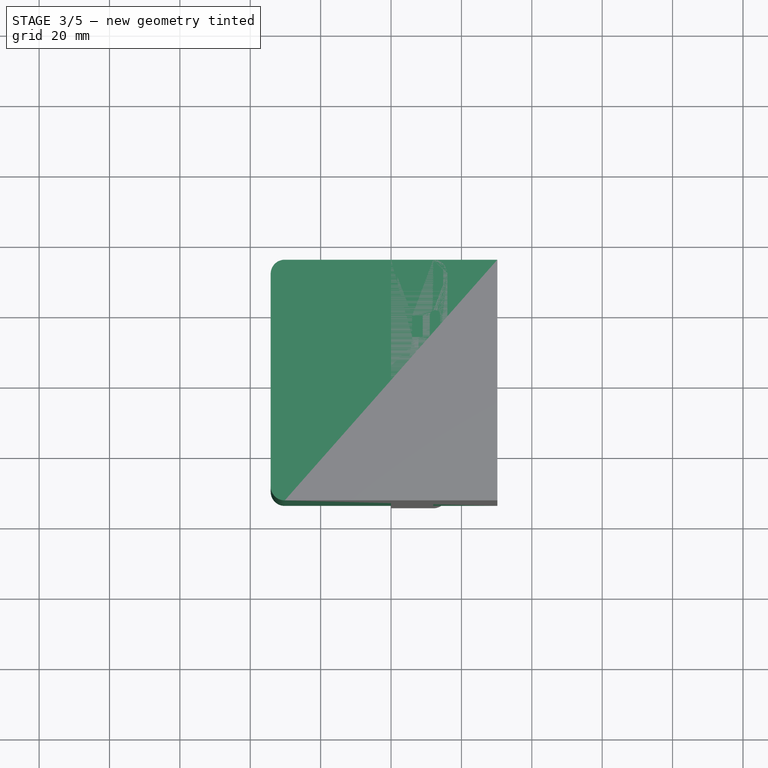
[diagram: stage 3 of 5 — top view after this stage's code; geometry added in this stage tinted green]
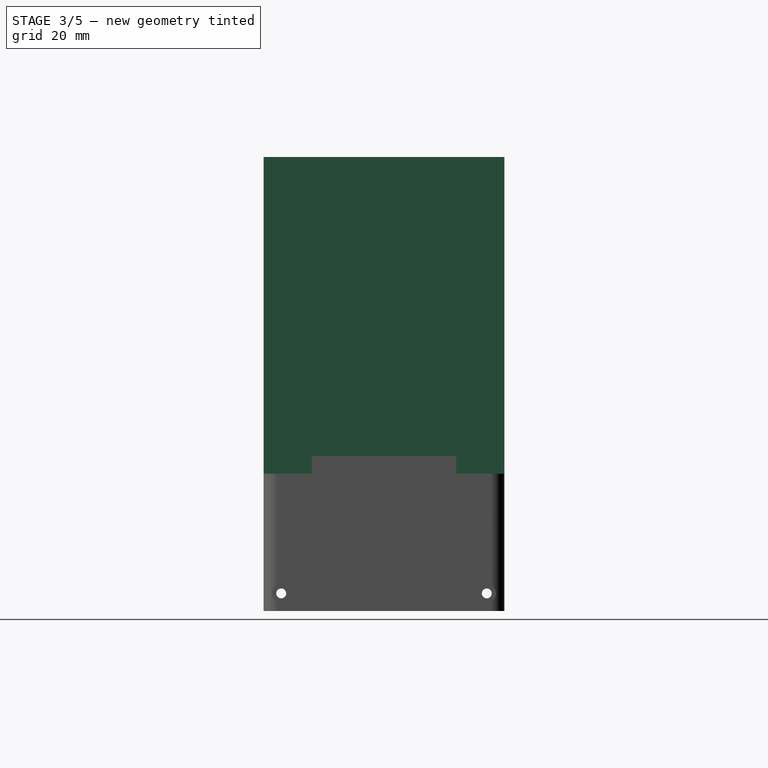
[diagram: stage 3 of 5 — right view after this stage's code; geometry added in this stage tinted green]
FEATURE [PartDesign::Body] Body001  label="BaseBody"
  AllowCompound = false
  Group = -> [Sketch001,Pad001,Sketch002,Pocket,Sketch003,Sketch004,Sketch005,Sketch006,Sketch007,Sketch008,Pocket005,Pocket006,Sketch009,Pocket007,Pocket008,Pocket009,Pad002,Pocket010,Fillet]
  Origin = -> Origin004
  Tip = -> Fillet
FEATURE [App::Part] Part001  label="Base"
  Group = -> [Body001]
  Origin = -> Origin003
  Placement = pos=(0,0,-39) rot=(0,0,1;0rad)
  expr: .Placement.Base.z = -(<<Params>>.bottom_thickness + <<Params>>.fan_depth + <<Params>>.fan_airgap)
FEATURE [Sketcher::SketchObject] Sketch010
  ArcFitTolerance = 1e-06
  AttachmentSupport = -> [XY_Plane006]
  FullyConstrained = true
  MakeInternals = false
  MapMode = 5
  expr: Constraints[10] = (<<Params>>.fan_dimension + 2 * (<<Params>>.wall_thickness + <<Params>>.wall_margin)) / 2
  expr: Constraints[11] = (<<Params>>.fan_dimension + 2 * (<<Params>>.wall_thickness + <<Params>>.wall_margin)) / 2
  expr: Constraints[8] = <<Params>>.fan_dimension + <<Params>>.wall_thickness + 2 * <<Params>>.wall_margin
  expr: Constraints[9] = <<Params>>.fan_dimension + 2 * (<<Params>>.wall_thickness + <<Params>>.wall_margin)
  sketch-geometry (4):
    g0: LineSegment StartX=-34.2 StartY=34.2 StartZ=0 EndX=-34.2 EndY=-34.2 EndZ=0
    g1: LineSegment StartX=-34.2 StartY=-34.2 StartZ=0 EndX=30.2 EndY=-34.2 EndZ=0
    g2: LineSegment StartX=30.2 StartY=-34.2 StartZ=0 EndX=30.2 EndY=34.2 EndZ=0
    g3: LineSegment StartX=30.2 StartY=34.2 StartZ=0 EndX=-34.2 EndY=34.2 EndZ=0
  constraints (12):
    c: Coincident(g0,g1)
    c: Coincident(g1,g2)
    c: Coincident(g2,g3)
    c: Coincident(g3,g0)
    c: Vertical(g0)
    c: Vertical(g2)
    c: Horizontal(g1)
    c: Horizontal(g3)
    c: DistanceX(g3,g3) = 64.4
    c: DistanceY(g0,g0) = 68.4
    c: DistanceY(g-1,g0) = 34.2
    c: DistanceX(g0,g-1) = 34.2
FEATURE [PartDesign::Pad] Pad003  label="HolderVolume"
  Direction = (0,0,1)
  Length = 90
  Length2 = 10
  Profile = -> Sketch010
  ReferenceAxis = -> Sketch010 [N_Axis]
  Suppressed = false
  Type = 0
  expr: Length = <<Params>>.holder_height
FEATURE [PartDesign::Fillet] Fillet001
  Base = -> Pad003 [Edge2,Edge1]
  BaseFeature = -> Pad003
  Radius = 4
  SupportTransform = false
  Suppressed = false
  UseAllEdges = false
  expr: Radius = <<Params>>.wall_thickness
FEATURE [App::Link] Link  label="Blank 2"
  LinkPlacement = pos=(0,15,5) rot=(0,0,1;0rad)
  LinkedObject = -> Part
  Placement = pos=(0,15,5) rot=(0,0,1;0rad)
  expr: .Placement.Base.y = <<Params>>.holder_offset
  expr: .Placement.Base.z = <<Params>>.holder_airgap
FEATURE [Sketcher::SketchObject] Sketch011
  ArcFitTolerance = 1e-06
  AttacherType = Attacher::AttachEngine3D
  AttachmentSupport = -> [Fillet001]
  ExternalGeometry = -> [Fillet001]
  FullyConstrained = true
  MakeInternals = false
  MapMode = 5
  Placement = pos=(0,0,0) rot=(1,0,0;3.14159rad)
  expr: Constraints[28] = <<Params>>.holder_insert_diameter / 2 + 2 mm
  expr: Constraints[29] = <<Params>>.holder_insert_diameter / 2 + 2 mm
  expr: Constraints[30] = <<Params>>.holder_insert_diameter / 2 + 2 mm
  expr: Constraints[31] = <<Params>>.holder_insert_diameter / 2 + 2 mm
  expr: Constraints[32] = <<Params>>.fan_mount_dimension / 2
  expr: Constraints[33] = <<Params>>.fan_mount_dimension / 2
  expr: Constraints[34] = <<Params>>.fan_mount_dimension / 2
  expr: Constraints[35] = <<Params>>.fan_mount_dimension / 2
  expr: Constraints[46] = <<Params>>.wall_thickness
  expr: Constraints[47] = <<Params>>.wall_thickness
  expr: Constraints[48] = <<Params>>.wall_thickness
  sketch-geometry (16):
    g0: LineSegment StartX=-20.5 StartY=-30.2 StartZ=0 EndX=20.5 EndY=-30.2 EndZ=0
    g1: LineSegment StartX=25 StartY=20.5 StartZ=0 EndX=30.2 EndY=20.5 EndZ=0
    g2: LineSegment StartX=30.2 StartY=20.5 StartZ=0 EndX=30.2 EndY=-20.5 EndZ=0
    g3: LineSegment StartX=30.2 StartY=-20.5 StartZ=0 EndX=25 EndY=-20.5 EndZ=0
    g4: LineSegment StartX=20.5 StartY=30.2 StartZ=0 EndX=-20.5 EndY=30.2 EndZ=0
    g5: LineSegment StartX=-25 StartY=-20.5 StartZ=0 EndX=-30.2 EndY=-20.5 EndZ=0
    g6: LineSegment StartX=-30.2 StartY=-20.5 StartZ=0 EndX=-30.2 EndY=20.5 EndZ=0
    g7: LineSegment StartX=-30.2 StartY=20.5 StartZ=0 EndX=-25 EndY=20.5 EndZ=0
    g8: ArcOfCircle CenterX=-25 CenterY=25 CenterZ=0 NormalX=0 NormalY=0 NormalZ=1 AngleXU=0 Radius=4.5 StartAngle=4.71239 EndAngle=6.28319
    g9: ArcOfCircle CenterX=25 CenterY=25 CenterZ=0 NormalX=0 NormalY=0 NormalZ=1 AngleXU=0 Radius=4.5 StartAngle=3.14159 EndAngle=4.71239
    g10: ArcOfCircle CenterX=25 CenterY=-25 CenterZ=0 NormalX=0 NormalY=0 NormalZ=1 AngleXU=0 Radius=4.5 StartAngle=1.5708 EndAngle=3.14159
    g11: ArcOfCircle CenterX=-25 CenterY=-25 CenterZ=0 NormalX=0 NormalY=0 NormalZ=1 AngleXU=0 Radius=4.5 StartAngle=0 EndAngle=1.5708
    g12: LineSegment StartX=-20.5 StartY=-25 StartZ=0 EndX=-20.5 EndY=-30.2 EndZ=0
    g13: LineSegment StartX=-20.5 StartY=25 StartZ=0 EndX=-20.5 EndY=30.2 EndZ=0
    g14: LineSegment StartX=20.5 StartY=30.2 StartZ=0 EndX=20.5 EndY=25 EndZ=0
    g15: LineSegment StartX=20.5 StartY=-30.2 StartZ=0 EndX=20.5 EndY=-25 EndZ=0
  constraints (49):
    c: Horizontal(g0)
    c: Horizontal(g1)
    c: Coincident(g2,g1)
    c: Vertical(g2)
    c: Coincident(g3,g2)
    c: Horizontal(g3)
    c: Horizontal(g4)
    c: Horizontal(g5)
    c: Coincident(g6,g5)
    c: Vertical(g6)
    c: Coincident(g7,g6)
    c: Horizontal(g7)
    c: Horizontal(g8,g9)
    c: Horizontal(g10,g11)
    c: Vertical(g5,g7)
    c: Vertical(g1,g3)
    c: Coincident(g8,g7)
    c: Coincident(g9,g1)
    c: Coincident(g10,g3)
    c: Coincident(g11,g5)
    c: Vertical(g8,g11)
    c: Vertical(g7,g8)
    c: Horizontal(g11,g11)
    c: Horizontal(g10,g10)
    c: Vertical(g3,g10)
    c: Vertical(g10,g9)
    c: Horizontal(g9,g9)
    c: Horizontal(g9,g8)
    c: Radius(g9) = 4.5
    c: Radius(g10) = 4.5
    c: Radius(g11) = 4.5
    c: Radius(g8) = 4.5
    c: DistanceY(g-1,g8) = 25
    c: DistanceX(g8,g-1) = 25
    c: DistanceX(g-1,g9) = 25
    c: DistanceY(g11,g-1) = 25
    c: Tangent(g12,g11) = 1.5708
    c: Coincident(g12,g0)
    c: Tangent(g13,g8) = -1.5708
    c: Coincident(g13,g4)
    c: Coincident(g14,g4)
    c: Coincident(g14,g9)
    c: Vertical(g14)
    c: Coincident(g15,g0)
    c: Tangent(g15,g10) = 1.5708
    c: PointOnObject(g1,g-6)
    c: Distance(g0,g-5) = 4
    c: Distance(g-4,g6) = 4
    c: Distance(g-3,g4) = 4
FEATURE [PartDesign::Pocket] Pocket011  label="HolderAirgap"
  BaseFeature = -> Fillet001
  Direction = (0,0,1)
  Length = 5
  Length2 = 5
  Profile = -> Sketch011
  ReferenceAxis = -> Sketch011 [N_Axis]
  Suppressed = false
  Type = 0
  expr: Length = <<Params>>.holder_airgap
FEATURE [Sketcher::SketchObject] Sketch012
  ArcFitTolerance = 1e-06
  AttacherType = Attacher::AttachEngine3D
  AttachmentSupport = -> [Pocket011]
  FullyConstrained = true
  MakeInternals = false
  MapMode = 5
  Placement = pos=(0,0,0) rot=(1,0,0;3.14159rad)
  expr: Constraints[10] = <<Params>>.fan_mount_dimension / 2
  expr: Constraints[11] = <<Params>>.fan_mount_dimension / 2
  expr: Constraints[4] = <<Params>>.holder_insert_diameter
  expr: Constraints[5] = <<Params>>.holder_insert_diameter
  expr: Constraints[6] = <<Params>>.holder_insert_diameter
  expr: Constraints[7] = <<Params>>.holder_insert_diameter
  expr: Constraints[8] = <<Params>>.fan_mount_dimension / 2
  expr: Constraints[9] = <<Params>>.fan_mount_dimension / 2
  sketch-geometry (4):
    g0: Circle CenterX=-25 CenterY=25 CenterZ=0 NormalX=0 NormalY=0 NormalZ=1 AngleXU=0 Radius=2.5
    g1: Circle CenterX=-25 CenterY=-25 CenterZ=0 NormalX=0 NormalY=0 NormalZ=1 AngleXU=0 Radius=2.5
    g2: Circle CenterX=25 CenterY=-25 CenterZ=0 NormalX=0 NormalY=0 NormalZ=1 AngleXU=0 Radius=2.5
    g3: Circle CenterX=25 CenterY=25 CenterZ=0 NormalX=0 NormalY=0 NormalZ=1 AngleXU=0 Radius=2.5
  constraints (12):
    c: Horizontal(g3,g0)
    c: Horizontal(g1,g2)
    c: Vertical(g2,g3)
    c: Vertical(g0,g1)
    c: Diameter(g2) = 5
    c: Diameter(g1) = 5
    c: Diameter(g3) = 5
    c: Diameter(g0) = 5
    c: DistanceX(g0,g-1) = 25
    c: DistanceY(g-1,g0) = 25
    c: DistanceY(g1,g-1) = 25
    c: DistanceX(g-1,g3) = 25
FEATURE [PartDesign::Pocket] Pocket012  label="HolderInsertHoles"
  BaseFeature = -> Pocket011
  Direction = (0,0,1)
  Length = 4
  Length2 = 5
  Profile = -> Sketch012
  ReferenceAxis = -> Sketch012 [N_Axis]
  Suppressed = false
  Type = 0
FEATURE [Sketcher::SketchObject] Sketch021
  ArcFitTolerance = 1e-06
  AttachmentSupport = -> [Pocket019]
  ExternalGeometry = -> [Pocket019]
  FullyConstrained = true
  MakeInternals = false
  MapMode = 5
  Placement = pos=(-9.9e-15,2.96e-14,89) rot=(0.707107,0.707107,0;3.14159rad)
  expr: Constraints[9] = (21 mm - 6 mm) / 2
  sketch-geometry (9):
    g0: ArcOfCircle CenterX=12.3 CenterY=12.5 CenterZ=0 NormalX=0 NormalY=0 NormalZ=1 AngleXU=0 Radius=1.5 StartAngle=1.5708 EndAngle=4.71239
    g1: ArcOfCircle CenterX=18.3 CenterY=12.5 CenterZ=0 NormalX=0 NormalY=0 NormalZ=1 AngleXU=0 Radius=1.5 StartAngle=4.71239 EndAngle=7.85398
    g2: LineSegment StartX=12.3 StartY=14 StartZ=0 EndX=18.3 EndY=14 EndZ=0
    g3: LineSegment StartX=12.3 StartY=11 StartZ=0 EndX=18.3 EndY=11 EndZ=0
    g4: LineSegment StartX=12.3 StartY=9 StartZ=0 EndX=12.3 EndY=6 EndZ=0
    g5: LineSegment StartX=12.3 StartY=6 StartZ=0 EndX=18.3 EndY=6 EndZ=0
    g6: LineSegment StartX=18.3 StartY=6 StartZ=0 EndX=18.3 EndY=9 EndZ=0
    g7: LineSegment StartX=18.3 StartY=9 StartZ=0 EndX=12.3 EndY=9 EndZ=0
    g8: GeomPoint [constr] X=15.3 Y=7.5 Z=0
  constraints (23):
    c: Tangent(g0,g2) = 1.5708
    c: Tangent(g0,g3) = -1.5708
    c: Tangent(g1,g2) = 1.5708
    c: Tangent(g1,g3) = -1.5708
    c: Equal(g0,g1)
    c: Horizontal(g2)
    c: PointOnObject(g0,g-3)
    c: PointOnObject(g0,g-4)
    c: DistanceX(g0,g1) = 6
    c: Distance(g0,g-6) = 7.5
    c: Coincident(g4,g5)
    c: Coincident(g5,g6)
    c: Coincident(g6,g7)
    c: Coincident(g7,g4)
    c: Vertical(g4)
    c: Vertical(g6)
    c: Horizontal(g5)
    c: Horizontal(g7)
    c: Symmetric(g6,g4,g8)
    c: Distance(g7,g3) = 2
    c: Distance(g4,g4) = 3
    c: Vertical(g4,g0)
    c: Vertical(g6,g1)
FEATURE [PartDesign::Pocket] Pocket020  label="ConnectorCutout"
  BaseFeature = -> Pocket019
  Direction = (0,0,1)
  Length = 1
  Length2 = 5
  Placement = pos=(0,0,0) rot=(1,1,1;2.0944rad)
  Profile = -> Sketch021
  ReferenceAxis = -> Sketch021 [N_Axis]
  Suppressed = false
  Type = 0
FEATURE [Sketcher::SketchObject] Sketch022
  ArcFitTolerance = 1e-06
  AttachmentSupport = -> [Pocket020]
  ExternalGeometry = -> [Pocket020]
  FullyConstrained = true
  MakeInternals = false
  MapMode = 5
  Placement = pos=(11,-7.3e-15,3.7e-15) rot=(0.57735,0.57735,-0.57735;4.18879rad)
  expr: Constraints[19] = <<Params>>.wall_thickness / 2
  expr: Constraints[29] = <<Params>>.wall_thickness / 2
  sketch-geometry (11):
    g0: LineSegment StartX=1.8 StartY=-77.5 StartZ=0 EndX=1.8 EndY=-89 EndZ=0
    g1: LineSegment StartX=1.8 StartY=-89 StartZ=0 EndX=3.8 EndY=-89 EndZ=0
    g2: LineSegment StartX=3.8 StartY=-89 StartZ=0 EndX=3.8 EndY=-77.5 EndZ=0
    g3: LineSegment StartX=3.8 StartY=-77.5 StartZ=0 EndX=1.8 EndY=-77.5 EndZ=0
    g4: GeomPoint [constr] X=2.8 Y=-83.25 Z=0
    g5: LineSegment StartX=1.8 StartY=-33.6 StartZ=0 EndX=28.8 EndY=-33.6 EndZ=0
    g6: LineSegment StartX=28.8 StartY=-33.6 StartZ=0 EndX=28.8 EndY=-77.5 EndZ=0
    g7: LineSegment StartX=28.8 StartY=-77.5 StartZ=0 EndX=26.8 EndY=-77.5 EndZ=0
    g8: LineSegment StartX=26.8 StartY=-77.5 StartZ=0 EndX=26.8 EndY=-35.6 EndZ=0
    g9: LineSegment StartX=26.8 StartY=-35.6 StartZ=0 EndX=1.8 EndY=-35.6 EndZ=0
    g10: LineSegment StartX=1.8 StartY=-35.6 StartZ=0 EndX=1.8 EndY=-33.6 EndZ=0
  constraints (30):
    c: Coincident(g0,g1)
    c: Coincident(g1,g2)
    c: Coincident(g2,g3)
    c: Coincident(g3,g0)
    c: Vertical(g0)
    c: Vertical(g2)
    c: Horizontal(g1)
    c: Horizontal(g3)
    c: Symmetric(g2,g0,g4)
    c: Vertical(g0,g-8)
    c: Coincident(g2,g-7)
    c: PointOnObject(g1,g-6)
    c: Horizontal(g5)
    c: Coincident(g6,g5)
    c: Vertical(g6)
    c: Coincident(g7,g6)
    c: Horizontal(g7)
    c: Coincident(g8,g7)
    c: Vertical(g8)
    c: Distance(g6,g8) = 2
    c: Distance(g8,g-4) = 1
    c: Horizontal(g2,g7)
    c: Coincident(g9,g8)
    c: Horizontal(g9)
    c: Coincident(g10,g9)
    c: Vertical(g10)
    c: Coincident(g5,g10)
    c: Distance(g-5,g9) = 1
    c: PointOnObject(g5,g-8)
    c: Distance(g9,g5) = 2
FEATURE [PartDesign::Pad] Pad005  label="PicoRetainers"
  BaseFeature = -> Pocket020
  Direction = (-1,0,0)
  Length = 1.2
  Length2 = 10
  Placement = pos=(0,0,0) rot=(1,1,1;2.0944rad)
  Profile = -> Sketch022
  ReferenceAxis = -> Sketch022 [N_Axis]
  Suppressed = false
  Type = 0
FEATURE [Sketcher::SketchObject] Sketch023
  ArcFitTolerance = 1e-06
  AttachmentSupport = -> [Pad005]
  ExternalGeometry = -> [Pad005]
  FullyConstrained = true
  MakeInternals = false
  MapMode = 5
  Placement = pos=(14,-9.3e-15,4.7e-15) rot=(0.57735,0.57735,-0.57735;4.18879rad)
  expr: Constraints[1] = 6.5 mm - 1 mm
  expr: Constraints[5] = 21 mm / 2
  sketch-geometry (4):
    g0: Circle CenterX=15.3 CenterY=-42.1 CenterZ=0 NormalX=0 NormalY=0 NormalZ=1 AngleXU=0 Radius=2
    g1: Circle CenterX=10.3 CenterY=-42.1 CenterZ=0 NormalX=0 NormalY=0 NormalZ=1 AngleXU=0 Radius=1.5
    g2: Circle CenterX=20.3 CenterY=-42.1 CenterZ=0 NormalX=0 NormalY=0 NormalZ=1 AngleXU=0 Radius=1.5
    g3: Circle CenterX=11.3 CenterY=-68.5 CenterZ=0 NormalX=0 NormalY=0 NormalZ=1 AngleXU=0 Radius=1.5
  constraints (12):
    c: Diameter(g0) = 4
    c: Distance(g0,g-3) = 5.5
    c: Diameter(g1) = 3
    c: Horizontal(g1,g0)
    c: Distance(g1,g-4) = 5.5
    c: Distance(g0,g-4) = 10.5
    c: Diameter(g2) = 3
    c: Horizontal(g2,g0)
    c: Distance(g2,g-5) = 5.5
    c: Diameter(g3) = 3
    c: Distance(g3,g-6) = 20.5
    c: Distance(g3,g-4) = 6.5
FEATURE [PartDesign::Pocket] Pocket021  label="PicoIO"
  BaseFeature = -> Pad005
  Direction = (1,0,0)
  Length = 5
  Length2 = 5
  Placement = pos=(0,0,0) rot=(1,1,1;2.0944rad)
  Profile = -> Sketch023
  ReferenceAxis = -> Sketch023 [N_Axis]
  Suppressed = false
  Type = 0
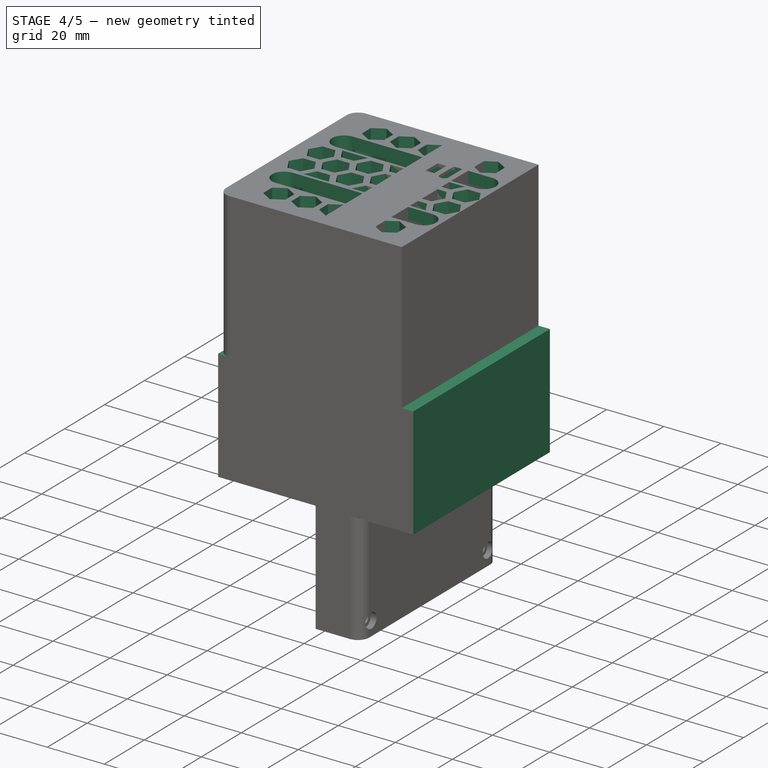
[diagram: stage 4 of 5 — iso view after this stage's code; geometry added in this stage tinted green]
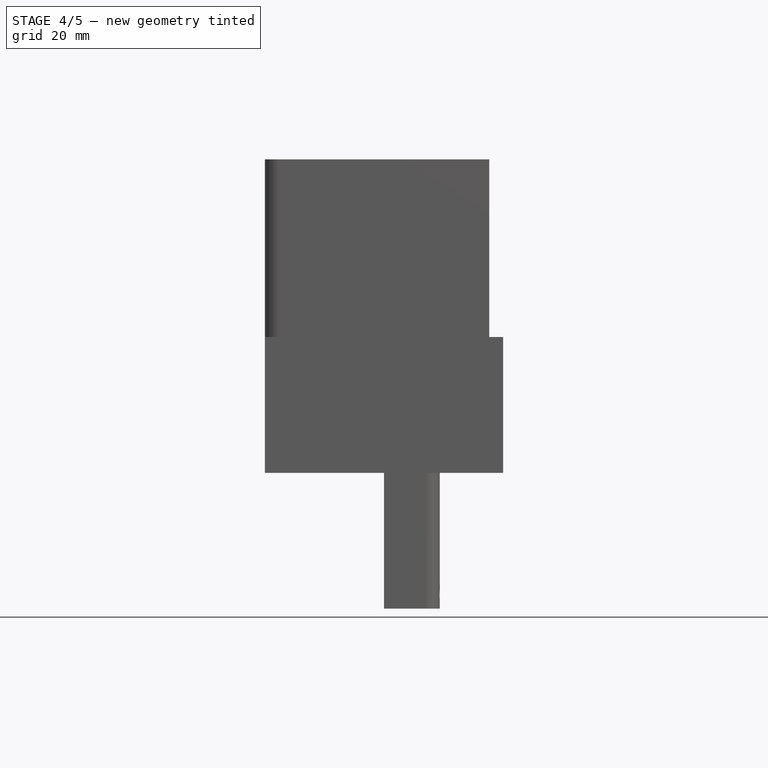
[diagram: stage 4 of 5 — front view after this stage's code; geometry added in this stage tinted green]
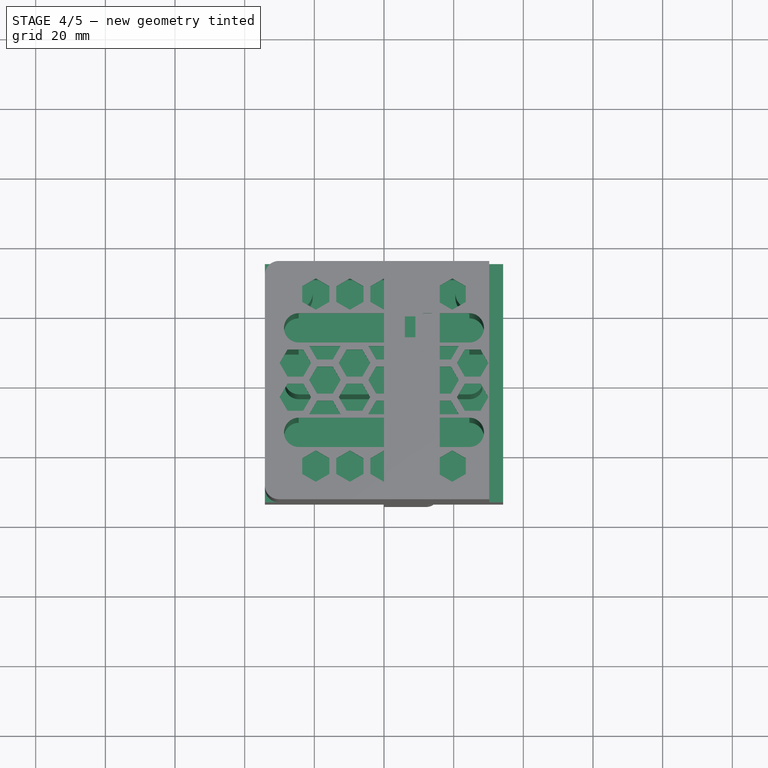
[diagram: stage 4 of 5 — top view after this stage's code; geometry added in this stage tinted green]
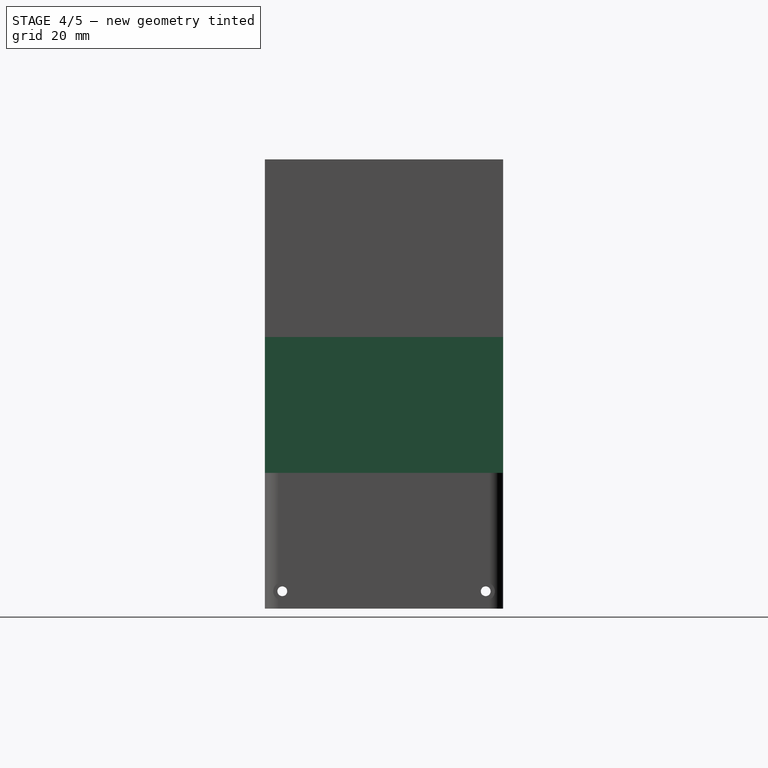
[diagram: stage 4 of 5 — right view after this stage's code; geometry added in this stage tinted green]
FEATURE [Sketcher::SketchObject] Sketch
  ArcFitTolerance = 1e-06
  AttachmentSupport = -> [XY_Plane001]
  FullyConstrained = true
  MakeInternals = false
  MapMode = 5
  expr: Constraints[6] = <<Params>>.ssd_width - 2 * <<Params>>.ssd_radius
  expr: Constraints[7] = <<Params>>.ssd_radius
  expr: Constraints[9] = (<<Params>>.ssd_width - 2 * <<Params>>.ssd_radius) / 2
  sketch-geometry (4):
    g0: ArcOfCircle CenterX=-24.5 CenterY=0 CenterZ=0 NormalX=0 NormalY=0 NormalZ=1 AngleXU=0 Radius=4 StartAngle=1.5708 EndAngle=4.71239
    g1: ArcOfCircle CenterX=24.5 CenterY=-1.6e-15 CenterZ=0 NormalX=0 NormalY=0 NormalZ=1 AngleXU=0 Radius=4 StartAngle=4.71239 EndAngle=7.85398
    g2: LineSegment StartX=-24.5 StartY=4 StartZ=0 EndX=24.5 EndY=4 EndZ=0
    g3: LineSegment StartX=-24.5 StartY=-4 StartZ=0 EndX=24.5 EndY=-4 EndZ=0
  constraints (10):
    c: Tangent(g0,g2) = 1.5708
    c: Tangent(g0,g3) = -1.5708
    c: Tangent(g1,g2) = 1.5708
    c: Tangent(g1,g3) = -1.5708
    c: Equal(g0,g1)
    c: Horizontal(g3)
    c: Distance(g0,g1) = 49
    c: Radius(g0) = 4
    c: PointOnObject(g0,g-1)
    c: Distance(g0,g-1) = 24.5
FEATURE [PartDesign::Pad] Pad
  Direction = (0,0,1)
  Length = 85
  Length2 = 10
  Profile = -> Sketch
  ReferenceAxis = -> Sketch [N_Axis]
  Refine = true
  Suppressed = false
  Type = 0
  expr: Length = <<Params>>.ssd_height
FEATURE [PartDesign::Body] Body  label="BlankBody"
  AllowCompound = false
  Group = -> [Sketch,Pad]
  Origin = -> Origin001
  Tip = -> Pad
FEATURE [App::Part] Part  label="Blank"
  Group = -> [Body]
  Origin = -> Origin
  Placement = pos=(0,-15,5) rot=(0,0,1;0rad)
  expr: .Placement.Base.y = -<<Params>>.holder_offset
  expr: .Placement.Base.z = <<Params>>.holder_airgap
FEATURE [Part::Feature] Part__Feature  label="Component1"
  Placement = pos=(0,13,4.5e-15) rot=(1,0,0;3.14159rad)
  shape: bbox 73.9 x 25.02 x 73.9 mm, 204 faces (baked)
FEATURE [Part::Feature] Part__Feature001  label="Component2"
  Placement = pos=(2.2e-15,11,0.77083) rot=(1,0,0;3.14159rad)
  shape: bbox 71.02 x 28.64 x 72.18 mm, 59 faces (baked)
FEATURE [Part::Feature] Part__Feature002  label="Component3"
  Placement = pos=(0,13,4.3e-15) rot=(1,0,0;3.14159rad)
  shape: bbox 58 x 26 x 58 mm, 80 faces, 8 solids (baked)
FEATURE [App::Part] fan_v2_v7  label="fan v2 v7"
  Group = -> [Part__Feature,Part__Feature001,Part__Feature002]
  Origin = -> Origin002
  Placement = pos=(0,0,0) rot=(1,0,0;-1.5708rad)
FEATURE [Spreadsheet::Sheet] Spreadsheet  label="Params"
  cells = A1='fan_cutout; B1(fan_cutout)==fan_depth + fan_airgap; A2='fan_airgap; B2(fan_airgap)==10 mm; A3='fan_dimension; B3(fan_dimension)==60 mm; A4='fan_depth; B4(fan_depth)==25 mm; A5='fan_mount_dimension; B5(fan_mount_dimension)==50 mm; A6='wall_thickness; B6(wall_thickness)==4 mm; A7='wall_margin; B7(wall_margin)==0.2 mm; A8='bottom_thickness; B8(bottom_thickness)==wall_thickness; A9='fan_bolt_diameter; B9(fan_bolt_diameter)==3.2 mm; A10='fan_bolt_head_diameter; B10(fan_bolt_head_diameter)==6 mm; A11='fan_hole_radius; B11(fan_hole_radius)==9 mm; A12='fan_hole_spacing; B12(fan_hole_spacing)==2 mm; A14='side_insert_diameter; B14(side_insert_diameter)==4 mm; A15='side_insert_inset; B15(side_insert_inset)==5 mm; A17='ssd_height; B17(ssd_height)==85 mm; A18='ssd_width; B18(ssd_width)==57 mm; A19='ssd_radius; B19(ssd_radius)==4 mm; A20='holder_height; B20(holder_height)==ssd_height + holder_airgap; A21='holder_offset; B21(holder_offset)==15 mm; A22='holder_airgap; B22(holder_airgap)==5 mm; A23='holder_insert_diameter; B23(holder_insert_diameter)==5 mm; A25='overall_height; B25(overall_height)==bottom_thickness + fan_airgap + fan_depth + holder_height; A26='sidecar_depth; B26(sidecar_depth)==bottom_thickness + 12 mm; A27='sidecar_bolt_diameter; B27(sidecar_bolt_diameter)==2.8 mm
FEATURE [Sketcher::SketchObject] Sketch001
  ArcFitTolerance = 1e-06
  AttachmentSupport = -> [XY_Plane004]
  FullyConstrained = true
  MakeInternals = false
  MapMode = 5
  expr: Constraints[10] = <<Params>>.fan_dimension + 2 * (<<Params>>.wall_thickness + <<Params>>.wall_margin)
  expr: Constraints[11] = <<Params>>.fan_dimension + 2 * (<<Params>>.wall_thickness + <<Params>>.wall_margin)
  sketch-geometry (5):
    g0: LineSegment StartX=-34.2 StartY=34.2 StartZ=0 EndX=-34.2 EndY=-34.2 EndZ=0
    g1: LineSegment StartX=-34.2 StartY=-34.2 StartZ=0 EndX=34.2 EndY=-34.2 EndZ=0
    g2: LineSegment StartX=34.2 StartY=-34.2 StartZ=0 EndX=34.2 EndY=34.2 EndZ=0
    g3: LineSegment StartX=34.2 StartY=34.2 StartZ=0 EndX=-34.2 EndY=34.2 EndZ=0
    g4: GeomPoint [constr] X=0 Y=0 Z=0
  constraints (12):
    c: Coincident(g0,g1)
    c: Coincident(g1,g2)
    c: Coincident(g2,g3)
    c: Coincident(g3,g0)
    c: Vertical(g0)
    c: Vertical(g2)
    c: Horizontal(g1)
    c: Horizontal(g3)
    c: Symmetric(g2,g0,g4)
    c: Coincident(g4,g-1)
    c: DistanceY(g2,g2) = 68.4
    c: DistanceX(g1,g1) = 68.4
FEATURE [PartDesign::Pad] Pad001  label="FanHolderVolume"
  Direction = (0,0,1)
  Length = 39
  Length2 = 10
  Profile = -> Sketch001
  ReferenceAxis = -> Sketch001 [N_Axis]
  Suppressed = false
  Type = 0
  expr: Length = <<Params>>.fan_cutout + <<Params>>.bottom_thickness
FEATURE [Sketcher::SketchObject] Sketch002
  ArcFitTolerance = 1e-06
  AttachmentSupport = -> [Pad001]
  FullyConstrained = true
  MakeInternals = false
  MapMode = 5
  Placement = pos=(0,0,39) rot=(0,0,1;0rad)
  expr: Constraints[10] = <<Params>>.fan_dimension + 2 * <<Params>>.wall_margin
  expr: Constraints[11] = <<Params>>.fan_dimension + 2 * <<Params>>.wall_margin
  sketch-geometry (5):
    g0: LineSegment StartX=-30.2 StartY=30.2 StartZ=0 EndX=-30.2 EndY=-30.2 EndZ=0
    g1: LineSegment StartX=-30.2 StartY=-30.2 StartZ=0 EndX=30.2 EndY=-30.2 EndZ=0
    g2: LineSegment StartX=30.2 StartY=-30.2 StartZ=0 EndX=30.2 EndY=30.2 EndZ=0
    g3: LineSegment StartX=30.2 StartY=30.2 StartZ=0 EndX=-30.2 EndY=30.2 EndZ=0
    g4: GeomPoint [constr] X=0 Y=0 Z=0
  constraints (12):
    c: Coincident(g0,g1)
    c: Coincident(g1,g2)
    c: Coincident(g2,g3)
    c: Coincident(g3,g0)
    c: Vertical(g0)
    c: Vertical(g2)
    c: Horizontal(g1)
    c: Horizontal(g3)
    c: Symmetric(g2,g0,g4)
    c: Coincident(g4,g-1)
    c: DistanceX(g1,g1) = 60.4
    c: DistanceY(g2,g2) = 60.4
FEATURE [PartDesign::Pocket] Pocket  label="FanCutout"
  BaseFeature = -> Pad001
  Direction = (0,0,-1)
  Length = 26
  Length2 = 5
  Profile = -> Sketch002
  ReferenceAxis = -> Sketch002 [N_Axis]
  Suppressed = false
  Type = 0
  expr: Length = <<Params>>.fan_depth + 1 mm
FEATURE [Sketcher::SketchObject] Sketch006
  ArcFitTolerance = 1e-06
  AttachmentSupport = -> [Pocket]
  FullyConstrained = true
  MakeInternals = false
  MapMode = 5
  Placement = pos=(0,0,39) rot=(0,0,1;0rad)
  sketch-geometry (4):
    g0: LineSegment StartX=30.2 StartY=34.2 StartZ=0 EndX=30.2 EndY=-34.2 EndZ=0
    g1: LineSegment StartX=30.2 StartY=-34.2 StartZ=0 EndX=34.2 EndY=-34.2 EndZ=0
    g2: LineSegment StartX=34.2 StartY=-34.2 StartZ=0 EndX=34.2 EndY=34.2 EndZ=0
    g3: LineSegment StartX=34.2 StartY=34.2 StartZ=0 EndX=30.2 EndY=34.2 EndZ=0
  constraints (12):
    c: Coincident(g0,g1)
    c: Coincident(g1,g2)
    c: Coincident(g2,g3)
    c: Coincident(g3,g0)
    c: Vertical(g0)
    c: Vertical(g2)
    c: Horizontal(g1)
    c: Horizontal(g3)
    c: PointOnObject(g0,g-4)
    c: PointOnObject(g1,g-6)
    c: PointOnObject(g-5,g0)
    c: PointOnObject(g0,g-3)
FEATURE [Sketcher::SketchObject] Sketch008
  ArcFitTolerance = 1e-06
  AttachmentSupport = -> [Pocket]
  ExternalGeometry = -> [Pocket]
  FullyConstrained = true
  MakeInternals = false
  MapMode = 5
  Placement = pos=(0,0,13) rot=(0,0,1;0rad)
  expr: Constraints[44] = <<Params>>.fan_bolt_diameter / 2 + 2 mm
  expr: Constraints[45] = <<Params>>.fan_bolt_diameter / 2 + 2 mm
  expr: Constraints[46] = <<Params>>.fan_bolt_diameter / 2 + 2 mm
  expr: Constraints[47] = <<Params>>.fan_bolt_diameter / 2 + 2 mm
  expr: Constraints[48] = <<Params>>.fan_mount_dimension / 2
  expr: Constraints[49] = <<Params>>.fan_mount_dimension / 2
  expr: Constraints[50] = <<Params>>.fan_mount_dimension / 2
  expr: Constraints[51] = <<Params>>.fan_mount_dimension / 2
  sketch-geometry (16):
    g0: LineSegment StartX=-21.4 StartY=25 StartZ=0 EndX=-21.4 EndY=30.2 EndZ=0
    g1: LineSegment StartX=-21.4 StartY=30.2 StartZ=0 EndX=21.4 EndY=30.2 EndZ=0
    g2: LineSegment StartX=21.4 StartY=30.2 StartZ=0 EndX=21.4 EndY=25 EndZ=0
    g3: LineSegment StartX=25 StartY=21.4 StartZ=0 EndX=30.2 EndY=21.4 EndZ=0
    g4: LineSegment StartX=30.2 StartY=21.4 StartZ=0 EndX=30.2 EndY=-21.4 EndZ=0
    g5: LineSegment StartX=30.2 StartY=-21.4 StartZ=0 EndX=25 EndY=-21.4 EndZ=0
    g6: LineSegment StartX=21.4 StartY=-25 StartZ=0 EndX=21.4 EndY=-30.2 EndZ=0
    g7: LineSegment StartX=21.4 StartY=-30.2 StartZ=0 EndX=-21.4 EndY=-30.2 EndZ=0
    g8: LineSegment StartX=-21.4 StartY=-30.2 StartZ=0 EndX=-21.4 EndY=-25 EndZ=0
    g9: LineSegment StartX=-25 StartY=-21.4 StartZ=0 EndX=-30.2 EndY=-21.4 EndZ=0
    g10: LineSegment StartX=-30.2 StartY=-21.4 StartZ=0 EndX=-30.2 EndY=21.4 EndZ=0
    g11: LineSegment StartX=-30.2 StartY=21.4 StartZ=0 EndX=-25 EndY=21.4 EndZ=0
    g12: ArcOfCircle CenterX=-25 CenterY=25 CenterZ=0 NormalX=0 NormalY=0 NormalZ=1 AngleXU=0 Radius=3.6 StartAngle=4.71239 EndAngle=6.28319
    g13: ArcOfCircle CenterX=25 CenterY=25 CenterZ=0 NormalX=0 NormalY=0 NormalZ=1 AngleXU=0 Radius=3.6 StartAngle=3.14159 EndAngle=4.71239
    g14: ArcOfCircle CenterX=25 CenterY=-25 CenterZ=0 NormalX=0 NormalY=0 NormalZ=1 AngleXU=0 Radius=3.6 StartAngle=1.5708 EndAngle=3.14159
    g15: ArcOfCircle CenterX=-25 CenterY=-25 CenterZ=0 NormalX=0 NormalY=0 NormalZ=1 AngleXU=0 Radius=3.6 StartAngle=0 EndAngle=1.5708
  constraints (52):
    c: Vertical(g0)
    c: Coincident(g1,g0)
    c: Horizontal(g1)
    c: Coincident(g2,g1)
    c: Vertical(g2)
    c: Horizontal(g3)
    c: Coincident(g4,g3)
    c: Vertical(g4)
    c: Coincident(g5,g4)
    c: Horizontal(g5)
    c: Vertical(g6)
    c: Coincident(g7,g6)
    c: Horizontal(g7)
    c: Vertical(g8)
    c: Horizontal(g9)
    c: Coincident(g10,g9)
    c: Vertical(g10)
    c: Coincident(g11,g10)
    c: Horizontal(g11)
    c: PointOnObject(g0,g-4)
    c: PointOnObject(g3,g-5)
    c: PointOnObject(g6,g-6)
    c: PointOnObject(g9,g-3)
    c: Horizontal(g0,g2)
    c: Horizontal(g6,g8)
    c: Vertical(g9,g11)
    c: Vertical(g3,g5)
    c: Coincident(g7,g8)
    c: Coincident(g12,g0)
    c: Coincident(g12,g11)
    c: Coincident(g13,g2)
    c: Coincident(g13,g3)
    c: Coincident(g14,g6)
    c: Coincident(g14,g5)
    c: Coincident(g15,g9)
    c: Coincident(g15,g8)
    c: Vertical(g12,g15)
    c: Vertical(g11,g12)
    c: Horizontal(g8,g15)
    c: Horizontal(g6,g14)
    c: Vertical(g5,g14)
    c: Vertical(g14,g13)
    c: Horizontal(g13,g2)
    c: Horizontal(g13,g12)
    c: Radius(g13) = 3.6
    c: Radius(g14) = 3.6
    c: Radius(g15) = 3.6
    c: Radius(g12) = 3.6
    c: DistanceY(g-1,g12) = 25
    c: DistanceX(g12,g-1) = 25
    c: DistanceX(g-1,g13) = 25
    c: DistanceY(g15,g-1) = 25
FEATURE [PartDesign::Pocket] Pocket005  label="FanAirgap"
  BaseFeature = -> Pocket
  Direction = (0,0,-1)
  Length = 9
  Length2 = 5
  Profile = -> Sketch008
  ReferenceAxis = -> Sketch008 [N_Axis]
  Suppressed = false
  Type = 0
  expr: Length = <<Params>>.fan_airgap - 1 mm
FEATURE [Sketcher::SketchObject] Sketch013
  ArcFitTolerance = 1e-06
  AttacherType = Attacher::AttachEngine3D
  AttachmentSupport = -> [Pocket012]
  FullyConstrained = true
  MakeInternals = false
  MapMode = 5
  Placement = pos=(0,0,4) rot=(1,0,0;3.14159rad)
  expr: Constraints[10] = <<Params>>.fan_mount_dimension / 2
  expr: Constraints[11] = <<Params>>.fan_mount_dimension / 2
  expr: Constraints[4] = <<Params>>.fan_bolt_diameter
  expr: Constraints[5] = <<Params>>.fan_bolt_diameter
  expr: Constraints[6] = <<Params>>.fan_bolt_diameter
  expr: Constraints[7] = <<Params>>.fan_bolt_diameter
  expr: Constraints[8] = <<Params>>.fan_mount_dimension / 2
  expr: Constraints[9] = <<Params>>.fan_mount_dimension / 2
  sketch-geometry (4):
    g0: Circle CenterX=-25 CenterY=25 CenterZ=0 NormalX=0 NormalY=0 NormalZ=1 AngleXU=0 Radius=1.6
    g1: Circle CenterX=-25 CenterY=-25 CenterZ=0 NormalX=0 NormalY=0 NormalZ=1 AngleXU=0 Radius=1.6
    g2: Circle CenterX=25 CenterY=-25 CenterZ=0 NormalX=0 NormalY=0 NormalZ=1 AngleXU=0 Radius=1.6
    g3: Circle CenterX=25 CenterY=25 CenterZ=0 NormalX=0 NormalY=0 NormalZ=1 AngleXU=0 Radius=1.6
  constraints (12):
    c: Horizontal(g3,g0)
    c: Horizontal(g1,g2)
    c: Vertical(g2,g3)
    c: Vertical(g0,g1)
    c: Diameter(g2) = 3.2
    c: Diameter(g1) = 3.2
    c: Diameter(g3) = 3.2
    c: Diameter(g0) = 3.2
    c: DistanceX(g0,g-1) = 25
    c: DistanceY(g-1,g0) = 25
    c: DistanceY(g1,g-1) = 25
    c: DistanceX(g-1,g3) = 25
FEATURE [PartDesign::Pocket] Pocket013  label="HolderInsertOverflow"
  BaseFeature = -> Pocket012
  Direction = (0,0,1)
  Length = 2
  Length2 = 5
  Profile = -> Sketch013
  ReferenceAxis = -> Sketch013 [N_Axis]
  Suppressed = false
  Type = 0
FEATURE [Sketcher::SketchObject] Sketch014
  ArcFitTolerance = 1e-06
  AttacherType = Attacher::AttachEngine3D
  AttachmentSupport = -> [Pocket013]
  ExternalGeometry = -> [Pocket013]
  FullyConstrained = true
  MakeInternals = false
  MapMode = 5
  Placement = pos=(0,0,5) rot=(1,0,0;3.14159rad)
  expr: Constraints[14] = <<Params>>.holder_insert_diameter / 2 + 2 mm
  expr: Constraints[15] = <<Params>>.holder_insert_diameter / 2 + 2 mm
  expr: Constraints[16] = <<Params>>.holder_insert_diameter / 2 + 2 mm
  expr: Constraints[17] = <<Params>>.holder_insert_diameter / 2 + 2 mm
  expr: Constraints[18] = <<Params>>.fan_mount_dimension / 2
  expr: Constraints[19] = <<Params>>.fan_mount_dimension / 2
  expr: Constraints[20] = <<Params>>.fan_mount_dimension / 2
  expr: Constraints[21] = <<Params>>.fan_mount_dimension / 2
  expr: Constraints[32] = <<Params>>.ssd_width / 2 - <<Params>>.ssd_radius
  expr: Constraints[33] = <<Params>>.ssd_width / 2 - <<Params>>.ssd_radius
  expr: Constraints[34] = <<Params>>.ssd_radius + 0.2 mm
  expr: Constraints[35] = <<Params>>.holder_offset
  expr: Constraints[39] = <<Params>>.holder_offset
  expr: Constraints[40] = <<Params>>.ssd_radius + 0.2 mm
  expr: Constraints[83] = <<Params>>.ssd_radius / 2
  expr: Constraints[84] = <<Params>>.ssd_radius / 2
  expr: Constraints[88] = <<Params>>.fan_hole_spacing
  sketch-geometry (28):
    g0: LineSegment StartX=-20.5 StartY=-30.2 StartZ=0 EndX=20.5 EndY=-30.2 EndZ=0
    g1: LineSegment StartX=28.2 StartY=8.8 StartZ=0 EndX=28.2 EndY=-8.8 EndZ=0
    g2: LineSegment StartX=20.5 StartY=30.2 StartZ=0 EndX=-20.5 EndY=30.2 EndZ=0
    g3: LineSegment StartX=-30.2 StartY=-8.8 StartZ=0 EndX=-30.2 EndY=8.8 EndZ=0
    g4: LineSegment StartX=-30.2 StartY=8.8 StartZ=0 EndX=-24.5 EndY=8.8 EndZ=0
    g5: ArcOfCircle CenterX=-25 CenterY=25 CenterZ=0 NormalX=0 NormalY=0 NormalZ=1 AngleXU=0 Radius=4.5 StartAngle=4.82373 EndAngle=6.28319
    g6: ArcOfCircle CenterX=25 CenterY=25 CenterZ=0 NormalX=0 NormalY=0 NormalZ=1 AngleXU=0 Radius=4.5 StartAngle=3.14159 EndAngle=4.60105
    g7: ArcOfCircle CenterX=25 CenterY=-25 CenterZ=0 NormalX=0 NormalY=0 NormalZ=1 AngleXU=0 Radius=4.5 StartAngle=1.68214 EndAngle=3.14159
    g8: ArcOfCircle CenterX=-25 CenterY=-25 CenterZ=0 NormalX=0 NormalY=0 NormalZ=1 AngleXU=0 Radius=4.5 StartAngle=0 EndAngle=1.45946
    g9: LineSegment StartX=-20.5 StartY=-25 StartZ=0 EndX=-20.5 EndY=-30.2 EndZ=0
    g10: LineSegment StartX=-20.5 StartY=25 StartZ=0 EndX=-20.5 EndY=30.2 EndZ=0
    g11: LineSegment StartX=20.5 StartY=30.2 StartZ=0 EndX=20.5 EndY=25 EndZ=0
    g12: LineSegment StartX=20.5 StartY=-30.2 StartZ=0 EndX=20.5 EndY=-25 EndZ=0
    g13: ArcOfCircle CenterX=-24.5 CenterY=15 CenterZ=0 NormalX=0 NormalY=0 NormalZ=1 AngleXU=0 Radius=4.2 StartAngle=1.5708 EndAngle=4.71239
    g14: ArcOfCircle CenterX=24.5 CenterY=15 CenterZ=0 NormalX=0 NormalY=0 NormalZ=1 AngleXU=0 Radius=4.2 StartAngle=4.71239 EndAngle=7.85398
    g15: ArcOfCircle CenterX=-24.5 CenterY=-15 CenterZ=0 NormalX=0 NormalY=0 NormalZ=1 AngleXU=0 Radius=4.2 StartAngle=1.5708 EndAngle=4.71239
    g16: ArcOfCircle CenterX=24.5 CenterY=-15 CenterZ=0 NormalX=0 NormalY=0 NormalZ=1 AngleXU=0 Radius=4.2 StartAngle=4.71239 EndAngle=7.85398
    g17: LineSegment StartX=-24.5 StartY=19.2 StartZ=0 EndX=-24.5 EndY=20.5279 EndZ=0
    g18: LineSegment StartX=-24.5 StartY=8.8 StartZ=0 EndX=-24.5 EndY=10.8 EndZ=0
    g19: LineSegment StartX=24.5 StartY=19.2 StartZ=0 EndX=24.5 EndY=20.5279 EndZ=0
    g20: LineSegment StartX=24.5 StartY=10.8 StartZ=0 EndX=24.5 EndY=8.8 EndZ=0
    g21: LineSegment StartX=24.5 StartY=-10.8 StartZ=0 EndX=24.5 EndY=-8.8 EndZ=0
    g22: LineSegment StartX=24.5 StartY=-8.8 StartZ=0 EndX=28.2 EndY=-8.8 EndZ=0
    g23: LineSegment StartX=24.5 StartY=8.8 StartZ=0 EndX=28.2 EndY=8.8 EndZ=0
    g24: LineSegment StartX=-24.5 StartY=-20.5279 StartZ=0 EndX=-24.5 EndY=-19.2 EndZ=0
    g25: LineSegment StartX=24.5 StartY=-20.5279 StartZ=0 EndX=24.5 EndY=-19.2 EndZ=0
    g26: LineSegment StartX=-24.5 StartY=-10.8 StartZ=0 EndX=-24.5 EndY=-8.8 EndZ=0
    g27: LineSegment StartX=-24.5 StartY=-8.8 StartZ=0 EndX=-30.2 EndY=-8.8 EndZ=0
  constraints (89):
    c: Horizontal(g0)
    c: Vertical(g1)
    c: Horizontal(g2)
    c: Vertical(g3)
    c: Coincident(g4,g3)
    c: Horizontal(g4)
    c: Horizontal(g5,g6)
    c: Horizontal(g7,g8)
    c: Vertical(g5,g8)
    c: Horizontal(g8,g8)
    c: Horizontal(g7,g7)
    c: Vertical(g7,g6)
    c: Horizontal(g6,g6)
    c: Horizontal(g6,g5)
    c: Radius(g6) = 4.5
    c: Radius(g7) = 4.5
    c: Radius(g8) = 4.5
    c: Radius(g5) = 4.5
    c: DistanceY(g-1,g5) = 25
    c: DistanceX(g5,g-1) = 25
    c: DistanceX(g-1,g6) = 25
    c: DistanceY(g8,g-1) = 25
    c: Tangent(g9,g8) = 1.5708
    c: Coincident(g9,g0)
    c: Tangent(g10,g5) = -1.5708
    c: Coincident(g10,g2)
    c: Coincident(g11,g2)
    c: Coincident(g11,g6)
    c: Vertical(g11)
    c: Coincident(g12,g0)
    c: Tangent(g12,g7) = 1.5708
    c: Equal(g13,g14)
    c: DistanceX(g13,g-1) = 24.5
    c: DistanceX(g-1,g14) = 24.5
    c: Distance(g14,g14) = 4.2
    c: DistanceY(g-1,g14) = 15
    c: Equal(g15,g16)
    c: Vertical(g16,g14)
    c: Vertical(g15,g13)
    c: DistanceY(g16,g-1) = 15
    c: Distance(g16,g16) = 4.2
    c: Vertical(g8,g15)
    c: Vertical(g7,g16)
    c: Vertical(g5,g13)
    c: Coincident(g17,g13)
    c: Coincident(g17,g5)
    c: Coincident(g18,g4)
    c: Coincident(g18,g13)
    c: Vertical(g18)
    c: Vertical(g13,g13)
    c: Horizontal(g13,g14)
    c: Vertical(g13,g13)
    c: Vertical(g14,g6)
    c: Coincident(g19,g14)
    c: Coincident(g19,g6)
    c: Vertical(g6,g14)
    c: Vertical(g14,g14)
    c: Coincident(g20,g14)
    c: Vertical(g20)
    c: Horizontal(g20,g4)
    c: Horizontal(g16,g15)
    c: Vertical(g15,g15)
    c: Vertical(g15,g15)
    c: Vertical(g16,g16)
    c: Vertical(g16,g16)
    c: Coincident(g21,g16)
    c: Vertical(g21)
    c: Coincident(g22,g21)
    c: Coincident(g22,g1)
    c: Horizontal(g22)
    c: Coincident(g23,g20)
    c: Coincident(g23,g1)
    c: Horizontal(g23)
    c: Coincident(g24,g8)
    c: Coincident(g24,g15)
    c: Coincident(g25,g7)
    c: Coincident(g25,g16)
    c: Coincident(g26,g15)
    c: Vertical(g26)
    c: Coincident(g27,g3)
    c: Horizontal(g27)
    c: Coincident(g26,g27)
    c: Horizontal(g26,g21)
    c: Distance(g4,g13) = 2
    c: Distance(g26,g15) = 2
    c: PointOnObject(g3,g-6)
    c: PointOnObject(g0,g-5)
    c: PointOnObject(g2,g-3)
    c: Distance(g-4,g1) = 2
FEATURE [PartDesign::Pocket] Pocket014  label="AirChannels"
  BaseFeature = -> Pocket013
  Direction = (0,0,1)
  Length = 81
  Length2 = 5
  Profile = -> Sketch014
  ReferenceAxis = -> Sketch014 [N_Axis]
  Suppressed = false
  Type = 0
  expr: Length = <<Params>>.holder_height - <<Params>>.holder_airgap - <<Params>>.bottom_thickness
FEATURE [Sketcher::SketchObject] Sketch015
  ArcFitTolerance = 1e-06
  AttachmentSupport = -> [Pocket014]
  ExternalGeometry = -> [Pocket014]
  FullyConstrained = true
  MakeInternals = false
  MapMode = 5
  Placement = pos=(0,0,90) rot=(0,0,1;0rad)
  expr: Constraints[14] = <<Params>>.ssd_radius + 0.2 mm
  expr: Constraints[15] = <<Params>>.ssd_radius + 0.2 mm
  expr: Constraints[16] = <<Params>>.ssd_width / 2 - <<Params>>.ssd_radius
  expr: Constraints[17] = <<Params>>.ssd_width / 2 - <<Params>>.ssd_radius
  expr: Constraints[18] = <<Params>>.holder_offset
  expr: Constraints[192] = <<Params>>.fan_hole_radius
  expr: Constraints[193] = <<Params>>.fan_hole_radius
  expr: Constraints[194] = <<Params>>.fan_hole_radius
  expr: Constraints[195] = <<Params>>.fan_hole_radius
  expr: Constraints[196] = <<Params>>.fan_hole_radius
  expr: Constraints[197] = <<Params>>.fan_hole_radius
  expr: Constraints[198] = <<Params>>.fan_hole_spacing
  expr: Constraints[199] = <<Params>>.fan_hole_spacing
  expr: Constraints[19] = <<Params>>.holder_offset
  expr: Constraints[200] = <<Params>>.fan_hole_spacing
  expr: Constraints[201] = <<Params>>.fan_hole_spacing
  expr: Constraints[202] = <<Params>>.fan_hole_spacing
  expr: Constraints[204] = <<Params>>.fan_hole_spacing
  expr: Constraints[205] = <<Params>>.fan_hole_spacing
  expr: Constraints[206] = <<Params>>.fan_hole_spacing
  expr: Constraints[207] = <<Params>>.fan_hole_spacing
  expr: Constraints[242] = <<Params>>.fan_hole_radius
  expr: Constraints[243] = <<Params>>.fan_hole_radius
  expr: Constraints[247] = <<Params>>.fan_hole_spacing
  expr: Constraints[248] = <<Params>>.fan_hole_spacing
  expr: Constraints[249] = <<Params>>.fan_hole_spacing
  expr: Constraints[296] = <<Params>>.fan_hole_radius
  expr: Constraints[297] = <<Params>>.fan_hole_radius
  expr: Constraints[298] = <<Params>>.fan_hole_radius
  expr: Constraints[299] = <<Params>>.fan_hole_radius
  expr: Constraints[300] = <<Params>>.fan_hole_radius
  expr: Constraints[308] = <<Params>>.fan_hole_spacing
  expr: Constraints[309] = <<Params>>.fan_hole_spacing
  expr: Constraints[310] = <<Params>>.fan_hole_radius
  expr: Constraints[311] = <<Params>>.fan_hole_spacing
  expr: Constraints[313] = <<Params>>.fan_hole_spacing
  expr: Constraints[314] = <<Params>>.fan_hole_spacing
  expr: Constraints[315] = <<Params>>.fan_hole_spacing
  expr: Constraints[359] = <<Params>>.fan_hole_radius
  expr: Constraints[360] = <<Params>>.wall_thickness + <<Params>>.fan_hole_spacing / 2
  expr: Constraints[39] = <<Params>>.fan_hole_radius
  expr: Constraints[401] = <<Params>>.fan_hole_spacing
  expr: Constraints[402] = <<Params>>.fan_hole_spacing
  expr: Constraints[443] = <<Params>>.fan_hole_spacing
  expr: Constraints[444] = <<Params>>.fan_hole_spacing
  expr: Constraints[499] = <<Params>>.fan_hole_spacing
  expr: Constraints[500] = <<Params>>.fan_hole_spacing
  expr: Constraints[537] = <<Params>>.fan_hole_spacing
  expr: Constraints[538] = <<Params>>.fan_hole_spacing
  expr: Constraints[543] = <<Params>>.wall_thickness + <<Params>>.fan_hole_spacing / 2
  expr: Constraints[76] = <<Params>>.fan_hole_radius
  expr: Constraints[77] = <<Params>>.fan_hole_radius
  expr: Constraints[78] = <<Params>>.fan_hole_spacing
  expr: Constraints[79] = <<Params>>.fan_hole_spacing
  sketch-geometry (185):
    g0: ArcOfCircle CenterX=-24.5 CenterY=15 CenterZ=0 NormalX=0 NormalY=0 NormalZ=1 AngleXU=0 Radius=4.2 StartAngle=1.5708 EndAngle=4.71239
    g1: ArcOfCircle CenterX=24.5 CenterY=15 CenterZ=0 NormalX=0 NormalY=0 NormalZ=1 AngleXU=0 Radius=4.2 StartAngle=4.71239 EndAngle=7.85398
    g2: LineSegment StartX=-24.5 StartY=19.2 StartZ=0 EndX=24.5 EndY=19.2 EndZ=0
    g3: LineSegment StartX=-24.5 StartY=10.8 StartZ=0 EndX=24.5 EndY=10.8 EndZ=0
    g4: ArcOfCircle CenterX=-24.5 CenterY=-15 CenterZ=0 NormalX=0 NormalY=0 NormalZ=1 AngleXU=0 Radius=4.2 StartAngle=1.5708 EndAngle=4.71239
    g5: ArcOfCircle CenterX=24.5 CenterY=-15 CenterZ=0 NormalX=0 NormalY=0 NormalZ=1 AngleXU=0 Radius=4.2 StartAngle=4.71239 EndAngle=7.85398
    g6: LineSegment StartX=-24.5 StartY=-10.8 StartZ=0 EndX=24.5 EndY=-10.8 EndZ=0
    g7: LineSegment StartX=-24.5 StartY=-19.2 StartZ=0 EndX=24.5 EndY=-19.2 EndZ=0
    g8: LineSegment StartX=2.25 StartY=-3.89711 StartZ=0 EndX=4.5 EndY=0 EndZ=0
    g9: LineSegment StartX=4.5 StartY=0 StartZ=0 EndX=2.25 EndY=3.89711 EndZ=0
    g10: LineSegment StartX=2.25 StartY=3.89711 StartZ=0 EndX=-2.25 EndY=3.89711 EndZ=0
    g11: LineSegment StartX=-2.25 StartY=3.89711 StartZ=0 EndX=-4.5 EndY=-9e-16 EndZ=0
    g12: LineSegment StartX=-4.5 StartY=-9e-16 StartZ=0 EndX=-2.25 EndY=-3.89711 EndZ=0
    g13: LineSegment StartX=-2.25 StartY=-3.89711 StartZ=0 EndX=2.25 EndY=-3.89711 EndZ=0
    g14: Circle [constr] CenterX=0 CenterY=0 CenterZ=0 NormalX=0 NormalY=0 NormalZ=1 AngleXU=0 Radius=4.5
    g15: LineSegment StartX=10.7321 StartY=-8.79423 StartZ=0 EndX=12.9821 EndY=-4.89711 EndZ=0
    g16: LineSegment StartX=12.9821 StartY=-4.89711 StartZ=0 EndX=10.7321 EndY=-1 EndZ=0
    g17: LineSegment StartX=10.7321 StartY=-1 StartZ=0 EndX=6.23205 EndY=-1 EndZ=0
    g18: LineSegment StartX=6.23205 StartY=-1 StartZ=0 EndX=3.98205 EndY=-4.89711 EndZ=0
    g19: LineSegment StartX=3.98205 StartY=-4.89711 StartZ=0 EndX=6.23205 EndY=-8.79423 EndZ=0
    g20: LineSegment StartX=6.23205 StartY=-8.79423 StartZ=0 EndX=10.7321 EndY=-8.79423 EndZ=0
    g21: Circle [constr] CenterX=8.48205 CenterY=-4.89711 CenterZ=0 NormalX=0 NormalY=0 NormalZ=1 AngleXU=0 Radius=4.5
    g22: LineSegment StartX=-6.23205 StartY=-8.79423 StartZ=0 EndX=-3.98205 EndY=-4.89711 EndZ=0
    g23: LineSegment StartX=-3.98205 StartY=-4.89711 StartZ=0 EndX=-6.23205 EndY=-1 EndZ=0
    g24: LineSegment StartX=-6.23205 StartY=-1 StartZ=0 EndX=-10.7321 EndY=-1 EndZ=0
    g25: LineSegment StartX=-10.7321 StartY=-1 StartZ=0 EndX=-12.9821 EndY=-4.89711 EndZ=0
    g26: LineSegment StartX=-12.9821 StartY=-4.89711 StartZ=0 EndX=-10.7321 EndY=-8.79423 EndZ=0
    g27: LineSegment StartX=-10.7321 StartY=-8.79423 StartZ=0 EndX=-6.23205 EndY=-8.79423 EndZ=0
    g28: Circle [constr] CenterX=-8.48205 CenterY=-4.89711 CenterZ=0 NormalX=0 NormalY=0 NormalZ=1 AngleXU=0 Radius=4.5
    g29: LineSegment StartX=-6.23205 StartY=1 StartZ=0 EndX=-3.98205 EndY=4.89711 EndZ=0
    g30: LineSegment StartX=-3.98205 StartY=4.89711 StartZ=0 EndX=-6.23205 EndY=8.79423 EndZ=0
    g31: LineSegment StartX=-6.23205 StartY=8.79423 StartZ=0 EndX=-10.7321 EndY=8.79423 EndZ=0
    g32: LineSegment StartX=-10.7321 StartY=8.79423 StartZ=0 EndX=-12.9821 EndY=4.89711 EndZ=0
    g33: LineSegment StartX=-12.9821 StartY=4.89711 StartZ=0 EndX=-10.7321 EndY=1 EndZ=0
    g34: LineSegment StartX=-10.7321 StartY=1 StartZ=0 EndX=-6.23205 EndY=1 EndZ=0
    g35: Circle [constr] CenterX=-8.48205 CenterY=4.89711 CenterZ=0 NormalX=0 NormalY=0 NormalZ=1 AngleXU=0 Radius=4.5
    g36: LineSegment StartX=10.7321 StartY=1 StartZ=0 EndX=12.9821 EndY=4.89711 EndZ=0
    g37: LineSegment StartX=12.9821 StartY=4.89711 StartZ=0 EndX=10.7321 EndY=8.79423 EndZ=0
    g38: LineSegment StartX=10.7321 StartY=8.79423 StartZ=0 EndX=6.23205 EndY=8.79423 EndZ=0
    g39: LineSegment StartX=6.23205 StartY=8.79423 StartZ=0 EndX=3.98205 EndY=4.89711 EndZ=0
    g40: LineSegment StartX=3.98205 StartY=4.89711 StartZ=0 EndX=6.23205 EndY=1 EndZ=0
    g41: LineSegment StartX=6.23205 StartY=1 StartZ=0 EndX=10.7321 EndY=1 EndZ=0
    g42: Circle [constr] CenterX=8.48205 CenterY=4.89711 CenterZ=0 NormalX=0 NormalY=0 NormalZ=1 AngleXU=0 Radius=4.5
    g43: LineSegment StartX=27.6962 StartY=1 StartZ=0 EndX=29.9462 EndY=4.89711 EndZ=0
    g44: LineSegment StartX=29.9462 StartY=4.89711 StartZ=0 EndX=27.6962 EndY=8.79423 EndZ=0
    g45: LineSegment StartX=27.6962 StartY=8.79423 StartZ=0 EndX=23.1962 EndY=8.79423 EndZ=0
    g46: LineSegment StartX=23.1962 StartY=8.79423 StartZ=0 EndX=20.9462 EndY=4.89711 EndZ=0
    g47: LineSegment StartX=20.9462 StartY=4.89711 StartZ=0 EndX=23.1962 EndY=1 EndZ=0
    g48: LineSegment StartX=23.1962 StartY=1 StartZ=0 EndX=27.6962 EndY=1 EndZ=0
    g49: Circle [constr] CenterX=25.4462 CenterY=4.89711 CenterZ=0 NormalX=0 NormalY=0 NormalZ=1 AngleXU=0 Radius=4.5
    g50: LineSegment StartX=27.6962 StartY=-8.79423 StartZ=0 EndX=29.9462 EndY=-4.89711 EndZ=0
    g51: LineSegment StartX=29.9462 StartY=-4.89711 StartZ=0 EndX=27.6962 EndY=-1 EndZ=0
    g52: LineSegment StartX=27.6962 StartY=-1 StartZ=0 EndX=23.1962 EndY=-1 EndZ=0
    g53: LineSegment StartX=23.1962 StartY=-1 StartZ=0 EndX=20.9462 EndY=-4.89711 EndZ=0
    g54: LineSegment StartX=20.9462 StartY=-4.89711 StartZ=0 EndX=23.1962 EndY=-8.79423 EndZ=0
    g55: LineSegment StartX=23.1962 StartY=-8.79423 StartZ=0 EndX=27.6962 EndY=-8.79423 EndZ=0
    g56: Circle [constr] CenterX=25.4462 CenterY=-4.89711 CenterZ=0 NormalX=0 NormalY=0 NormalZ=1 AngleXU=0 Radius=4.5
    g57: LineSegment StartX=-14.7141 StartY=-3.89711 StartZ=0 EndX=-12.4641 EndY=0 EndZ=0
    g58: LineSegment StartX=-12.4641 StartY=0 StartZ=0 EndX=-14.7141 EndY=3.89711 EndZ=0
    g59: LineSegment StartX=-14.7141 StartY=3.89711 StartZ=0 EndX=-19.2141 EndY=3.89711 EndZ=0
    g60: LineSegment StartX=-19.2141 StartY=3.89711 StartZ=0 EndX=-21.4641 EndY=0 EndZ=0
    g61: LineSegment StartX=-21.4641 StartY=0 StartZ=0 EndX=-19.2141 EndY=-3.89711 EndZ=0
    g62: LineSegment StartX=-19.2141 StartY=-3.89711 StartZ=0 EndX=-14.7141 EndY=-3.89711 EndZ=0
    g63: Circle [constr] CenterX=-16.9641 CenterY=0 CenterZ=0 NormalX=0 NormalY=0 NormalZ=1 AngleXU=0 Radius=4.5
    g64: LineSegment StartX=19.2141 StartY=-3.89711 StartZ=0 EndX=21.4641 EndY=-4e-16 EndZ=0
    g65: LineSegment StartX=21.4641 StartY=-4e-16 StartZ=0 EndX=19.2141 EndY=3.89711 EndZ=0
    g66: LineSegment StartX=19.2141 StartY=3.89711 StartZ=0 EndX=14.7141 EndY=3.89711 EndZ=0
    g67: LineSegment StartX=14.7141 StartY=3.89711 StartZ=0 EndX=12.4641 EndY=9e-16 EndZ=0
    g68: LineSegment StartX=12.4641 StartY=9e-16 StartZ=0 EndX=14.7141 EndY=-3.89711 EndZ=0
    g69: LineSegment StartX=14.7141 StartY=-3.89711 StartZ=0 EndX=19.2141 EndY=-3.89711 EndZ=0
    g70: Circle [constr] CenterX=16.9641 CenterY=0 CenterZ=0 NormalX=0 NormalY=0 NormalZ=1 AngleXU=0 Radius=4.5
    g71: LineSegment StartX=-23.1962 StartY=1 StartZ=0 EndX=-20.9462 EndY=4.89711 EndZ=0
    g72: LineSegment StartX=-20.9462 StartY=4.89711 StartZ=0 EndX=-23.1962 EndY=8.79423 EndZ=0
    g73: LineSegment StartX=-23.1962 StartY=8.79423 StartZ=0 EndX=-27.6962 EndY=8.79423 EndZ=0
    g74: LineSegment StartX=-27.6962 StartY=8.79423 StartZ=0 EndX=-29.9462 EndY=4.89711 EndZ=0
    g75: LineSegment StartX=-29.9462 StartY=4.89711 StartZ=0 EndX=-27.6962 EndY=1 EndZ=0
    g76: LineSegment StartX=-27.6962 StartY=1 StartZ=0 EndX=-23.1962 EndY=1 EndZ=0
    g77: Circle [constr] CenterX=-25.4462 CenterY=4.89711 CenterZ=0 NormalX=0 NormalY=0 NormalZ=1 AngleXU=0 Radius=4.5
    g78: LineSegment StartX=-23.1962 StartY=-8.79423 StartZ=0 EndX=-20.9462 EndY=-4.89711 EndZ=0
    g79: LineSegment StartX=-20.9462 StartY=-4.89711 StartZ=0 EndX=-23.1962 EndY=-1 EndZ=0
    g80: LineSegment StartX=-23.1962 StartY=-1 StartZ=0 EndX=-27.6962 EndY=-1 EndZ=0
    g81: LineSegment StartX=-27.6962 StartY=-1 StartZ=0 EndX=-29.9462 EndY=-4.89711 EndZ=0
    g82: LineSegment StartX=-29.9462 StartY=-4.89711 StartZ=0 EndX=-27.6962 EndY=-8.79423 EndZ=0
    g83: LineSegment StartX=-27.6962 StartY=-8.79423 StartZ=0 EndX=-23.1962 EndY=-8.79423 EndZ=0
    g84: Circle [constr] CenterX=-25.4462 CenterY=-4.89711 CenterZ=0 NormalX=0 NormalY=0 NormalZ=1 AngleXU=0 Radius=4.5
    g85: LineSegment StartX=-14.7141 StartY=5.89711 StartZ=0 EndX=-12.4641 EndY=9.79423 EndZ=0
    g86: LineSegment StartX=-21.4641 StartY=9.79423 StartZ=0 EndX=-19.2141 EndY=5.89711 EndZ=0
    g87: LineSegment StartX=-19.2141 StartY=5.89711 StartZ=0 EndX=-14.7141 EndY=5.89711 EndZ=0
    g88: Circle [constr] CenterX=-16.9641 CenterY=9.79423 CenterZ=0 NormalX=0 NormalY=0 NormalZ=1 AngleXU=0 Radius=4.5
    g89: LineSegment StartX=-12.4641 StartY=-9.79423 StartZ=0 EndX=-14.7141 EndY=-5.89711 EndZ=0
    g90: LineSegment StartX=-14.7141 StartY=-5.89711 StartZ=0 EndX=-19.2141 EndY=-5.89711 EndZ=0
    g91: LineSegment StartX=-19.2141 StartY=-5.89711 StartZ=0 EndX=-21.4641 EndY=-9.79423 EndZ=0
    g92: Circle [constr] CenterX=-16.9641 CenterY=-9.79423 CenterZ=0 NormalX=0 NormalY=0 NormalZ=1 AngleXU=0 Radius=4.5
    g93: LineSegment StartX=4.5 StartY=-9.79423 StartZ=0 EndX=2.25 EndY=-5.89711 EndZ=0
    g94: LineSegment StartX=2.25 StartY=-5.89711 StartZ=0 EndX=-2.25 EndY=-5.89711 EndZ=0
    g95: LineSegment StartX=-2.25 StartY=-5.89711 StartZ=0 EndX=-4.5 EndY=-9.79423 EndZ=0
    g96: Circle [constr] CenterX=0 CenterY=-9.79423 CenterZ=0 NormalX=0 NormalY=0 NormalZ=1 AngleXU=0 Radius=4.5
    g97: LineSegment StartX=2.25 StartY=5.89711 StartZ=0 EndX=4.5 EndY=9.79423 EndZ=0
    g98: LineSegment StartX=-4.5 StartY=9.79423 StartZ=0 EndX=-2.25 EndY=5.89711 EndZ=0
    g99: LineSegment StartX=-2.25 StartY=5.89711 StartZ=0 EndX=2.25 EndY=5.89711 EndZ=0
    g100: Circle [constr] CenterX=0 CenterY=9.79423 CenterZ=0 NormalX=0 NormalY=0 NormalZ=1 AngleXU=0 Radius=4.5
    g101: LineSegment StartX=19.2141 StartY=5.89711 StartZ=0 EndX=21.4641 EndY=9.79423 EndZ=0
    g102: LineSegment StartX=12.4641 StartY=9.79423 StartZ=0 EndX=14.7141 EndY=5.89711 EndZ=0
    g103: LineSegment StartX=14.7141 StartY=5.89711 StartZ=0 EndX=19.2141 EndY=5.89711 EndZ=0
    g104: Circle [constr] CenterX=16.9641 CenterY=9.79423 CenterZ=0 NormalX=0 NormalY=0 NormalZ=1 AngleXU=0 Radius=4.5
    g105: LineSegment StartX=21.4641 StartY=-9.79423 StartZ=0 EndX=19.2141 EndY=-5.89711 EndZ=0
    g106: LineSegment StartX=19.2141 StartY=-5.89711 StartZ=0 EndX=14.7141 EndY=-5.89711 EndZ=0
    g107: LineSegment StartX=14.7141 StartY=-5.89711 StartZ=0 EndX=12.4641 EndY=-9.79423 EndZ=0
    g108: Circle [constr] CenterX=16.9641 CenterY=-9.79423 CenterZ=0 NormalX=0 NormalY=0 NormalZ=1 AngleXU=0 Radius=4.5
    g109: LineSegment StartX=-21.4641 StartY=-9.79423 StartZ=0 EndX=-12.4641 EndY=-9.79423 EndZ=0
    g110: LineSegment StartX=-21.4641 StartY=9.79423 StartZ=0 EndX=-12.4641 EndY=9.79423 EndZ=0
    g111: LineSegment StartX=-4.5 StartY=9.79423 StartZ=0 EndX=4.5 EndY=9.79423 EndZ=0
    g112: LineSegment StartX=12.4641 StartY=9.79423 StartZ=0 EndX=21.4641 EndY=9.79423 EndZ=0
    g113: LineSegment StartX=-4.5 StartY=-9.79423 StartZ=0 EndX=4.5 EndY=-9.79423 EndZ=0
    g114: LineSegment StartX=12.4641 StartY=-9.79423 StartZ=0 EndX=21.4641 EndY=-9.79423 EndZ=0
    g115: LineSegment StartX=0 StartY=-29.2 StartZ=0 EndX=3.89711 EndY=-26.95 EndZ=0
    g116: LineSegment StartX=3.89711 StartY=-26.95 StartZ=0 EndX=3.89711 EndY=-22.45 EndZ=0
    g117: LineSegment StartX=3.89711 StartY=-22.45 StartZ=0 EndX=0 EndY=-20.2 EndZ=0
    g118: LineSegment StartX=0 StartY=-20.2 StartZ=0 EndX=-3.89711 EndY=-22.45 EndZ=0
    g119: LineSegment StartX=-3.89711 StartY=-22.45 StartZ=0 EndX=-3.89711 EndY=-26.95 EndZ=0
    g120: LineSegment StartX=-3.89711 StartY=-26.95 StartZ=0 EndX=0 EndY=-29.2 EndZ=0
    g121: Circle [constr] CenterX=0 CenterY=-24.7 CenterZ=0 NormalX=0 NormalY=0 NormalZ=1 AngleXU=0 Radius=4.5
    g122: LineSegment StartX=13.6913 StartY=-26.95 StartZ=0 EndX=13.6913 EndY=-22.45 EndZ=0
    g123: LineSegment StartX=13.6913 StartY=-22.45 StartZ=0 EndX=9.79423 EndY=-20.2 EndZ=0
    g124: LineSegment StartX=9.79423 StartY=-20.2 StartZ=0 EndX=5.89711 EndY=-22.45 EndZ=0
    g125: LineSegment StartX=5.89711 StartY=-22.45 StartZ=0 EndX=5.89711 EndY=-26.95 EndZ=0
    g126: LineSegment StartX=5.89711 StartY=-26.95 StartZ=0 EndX=9.79423 EndY=-29.2 EndZ=0
    g127: LineSegment StartX=9.79423 StartY=-29.2 StartZ=0 EndX=13.6913 EndY=-26.95 EndZ=0
    g128: Circle [constr] CenterX=9.79423 CenterY=-24.7 CenterZ=0 NormalX=0 NormalY=0 NormalZ=1 AngleXU=0 Radius=4.5
    g129: LineSegment StartX=-9.79423 StartY=-29.2 StartZ=0 EndX=-5.89711 EndY=-26.95 EndZ=0
    g130: LineSegment StartX=-5.89711 StartY=-26.95 StartZ=0 EndX=-5.89711 EndY=-22.45 EndZ=0
    g131: LineSegment StartX=-5.89711 StartY=-22.45 StartZ=0 EndX=-9.79423 EndY=-20.2 EndZ=0
    g132: LineSegment StartX=-9.79423 StartY=-20.2 StartZ=0 EndX=-13.6913 EndY=-22.45 EndZ=0
    g133: LineSegment StartX=-13.6913 StartY=-22.45 StartZ=0 EndX=-13.6913 EndY=-26.95 EndZ=0
    g134: LineSegment StartX=-13.6913 StartY=-26.95 StartZ=0 EndX=-9.79423 EndY=-29.2 EndZ=0
    g135: Circle [constr] CenterX=-9.79423 CenterY=-24.7 CenterZ=0 NormalX=0 NormalY=0 NormalZ=1 AngleXU=0 Radius=4.5
    g136: LineSegment StartX=19.5885 StartY=-29.2 StartZ=0 EndX=23.4856 EndY=-26.95 EndZ=0
    g137: LineSegment StartX=23.4856 StartY=-26.95 StartZ=0 EndX=23.4856 EndY=-22.45 EndZ=0
    g138: LineSegment StartX=23.4856 StartY=-22.45 StartZ=0 EndX=19.5885 EndY=-20.2 EndZ=0
    g139: LineSegment StartX=19.5885 StartY=-20.2 StartZ=0 EndX=15.6913 EndY=-22.45 EndZ=0
    g140: LineSegment StartX=15.6913 StartY=-22.45 StartZ=0 EndX=15.6913 EndY=-26.95 EndZ=0
    g141: LineSegment StartX=15.6913 StartY=-26.95 StartZ=0 EndX=19.5885 EndY=-29.2 EndZ=0
    g142: Circle [constr] CenterX=19.5885 CenterY=-24.7 CenterZ=0 NormalX=0 NormalY=0 NormalZ=1 AngleXU=0 Radius=4.5
    g143: LineSegment StartX=-19.5885 StartY=-29.2 StartZ=0 EndX=-15.6913 EndY=-26.95 EndZ=0
    g144: LineSegment StartX=-15.6913 StartY=-26.95 StartZ=0 EndX=-15.6913 EndY=-22.45 EndZ=0
    g145: LineSegment StartX=-15.6913 StartY=-22.45 StartZ=0 EndX=-19.5885 EndY=-20.2 EndZ=0
    g146: LineSegment StartX=-19.5885 StartY=-20.2 StartZ=0 EndX=-23.4856 EndY=-22.45 EndZ=0
    g147: LineSegment StartX=-23.4856 StartY=-22.45 StartZ=0 EndX=-23.4856 EndY=-26.95 EndZ=0
    g148: LineSegment StartX=-23.4856 StartY=-26.95 StartZ=0 EndX=-19.5885 EndY=-29.2 EndZ=0
    g149: Circle [constr] CenterX=-19.5885 CenterY=-24.7 CenterZ=0 NormalX=0 NormalY=0 NormalZ=1 AngleXU=0 Radius=4.5
    g150: LineSegment StartX=9e-16 StartY=29.2 StartZ=0 EndX=3.89711 EndY=26.95 EndZ=0
    g151: LineSegment StartX=3.89711 StartY=26.95 StartZ=0 EndX=3.89711 EndY=22.45 EndZ=0
    g152: LineSegment StartX=3.89711 StartY=22.45 StartZ=0 EndX=-9e-16 EndY=20.2 EndZ=0
    g153: LineSegment StartX=-9e-16 StartY=20.2 StartZ=0 EndX=-3.89711 EndY=22.45 EndZ=0
    g154: LineSegment StartX=-3.89711 StartY=22.45 StartZ=0 EndX=-3.89711 EndY=26.95 EndZ=0
    g155: LineSegment StartX=-3.89711 StartY=26.95 StartZ=0 EndX=9e-16 EndY=29.2 EndZ=0
    g156: Circle [constr] CenterX=0 CenterY=24.7 CenterZ=0 NormalX=0 NormalY=0 NormalZ=1 AngleXU=0 Radius=4.5
    g157: LineSegment StartX=13.6913 StartY=26.95 StartZ=0 EndX=13.6913 EndY=22.45 EndZ=0
    g158: LineSegment StartX=13.6913 StartY=22.45 StartZ=0 EndX=9.79423 EndY=20.2 EndZ=0
    g159: LineSegment StartX=9.79423 StartY=20.2 StartZ=0 EndX=5.89711 EndY=22.45 EndZ=0
    g160: LineSegment StartX=5.89711 StartY=22.45 StartZ=0 EndX=5.89711 EndY=26.95 EndZ=0
    g161: LineSegment StartX=5.89711 StartY=26.95 StartZ=0 EndX=9.79423 EndY=29.2 EndZ=0
    g162: LineSegment StartX=9.79423 StartY=29.2 StartZ=0 EndX=13.6913 EndY=26.95 EndZ=0
    g163: Circle [constr] CenterX=9.79423 CenterY=24.7 CenterZ=0 NormalX=0 NormalY=0 NormalZ=1 AngleXU=0 Radius=4.5
    g164: LineSegment StartX=-9.79423 StartY=29.2 StartZ=0 EndX=-5.89711 EndY=26.95 EndZ=0
    g165: LineSegment StartX=-5.89711 StartY=26.95 StartZ=0 EndX=-5.89711 EndY=22.45 EndZ=0
    g166: LineSegment StartX=-5.89711 StartY=22.45 StartZ=0 EndX=-9.79423 EndY=20.2 EndZ=0
    g167: LineSegment StartX=-9.79423 StartY=20.2 StartZ=0 EndX=-13.6913 EndY=22.45 EndZ=0
    g168: LineSegment StartX=-13.6913 StartY=22.45 StartZ=0 EndX=-13.6913 EndY=26.95 EndZ=0
    g169: LineSegment StartX=-13.6913 StartY=26.95 StartZ=0 EndX=-9.79423 EndY=29.2 EndZ=0
    g170: Circle [constr] CenterX=-9.79423 CenterY=24.7 CenterZ=0 NormalX=0 NormalY=0 NormalZ=1 AngleXU=0 Radius=4.5
    g171: LineSegment StartX=19.5885 StartY=29.2 StartZ=0 EndX=23.4856 EndY=26.95 EndZ=0
    g172: LineSegment StartX=23.4856 StartY=26.95 StartZ=0 EndX=23.4856 EndY=22.45 EndZ=0
    g173: LineSegment StartX=23.4856 StartY=22.45 StartZ=0 EndX=19.5885 EndY=20.2 EndZ=0
    g174: LineSegment StartX=19.5885 StartY=20.2 StartZ=0 EndX=15.6913 EndY=22.45 EndZ=0
    g175: LineSegment StartX=15.6913 StartY=22.45 StartZ=0 EndX=15.6913 EndY=26.95 EndZ=0
    g176: LineSegment StartX=15.6913 StartY=26.95 StartZ=0 EndX=19.5885 EndY=29.2 EndZ=0
    g177: Circle [constr] CenterX=19.5885 CenterY=24.7 CenterZ=0 NormalX=0 NormalY=0 NormalZ=1 AngleXU=0 Radius=4.5
    g178: LineSegment StartX=-19.5885 StartY=29.2 StartZ=0 EndX=-15.6913 EndY=26.95 EndZ=0
    g179: LineSegment StartX=-15.6913 StartY=26.95 StartZ=0 EndX=-15.6913 EndY=22.45 EndZ=0
    g180: LineSegment StartX=-15.6913 StartY=22.45 StartZ=0 EndX=-19.5885 EndY=20.2 EndZ=0
    g181: LineSegment StartX=-19.5885 StartY=20.2 StartZ=0 EndX=-23.4856 EndY=22.45 EndZ=0
    g182: LineSegment StartX=-23.4856 StartY=22.45 StartZ=0 EndX=-23.4856 EndY=26.95 EndZ=0
    g183: LineSegment StartX=-23.4856 StartY=26.95 StartZ=0 EndX=-19.5885 EndY=29.2 EndZ=0
    g184: Circle [constr] CenterX=-19.5885 CenterY=24.7 CenterZ=0 NormalX=0 NormalY=0 NormalZ=1 AngleXU=0 Radius=4.5
  constraints (466):
    c: Tangent(g0,g2) = 1.5708
    c: Tangent(g0,g3) = -1.5708
    c: Tangent(g1,g2) = 1.5708
    c: Tangent(g1,g3) = -1.5708
    c: Equal(g0,g1)
    c: Horizontal(g2)
    c: Tangent(g4,g6) = 1.5708
    c: Tangent(g4,g7) = -1.5708
    c: Tangent(g5,g6) = 1.5708
    c: Tangent(g5,g7) = -1.5708
    c: Equal(g4,g5)
    c: Horizontal(g6)
    c: Vertical(g1,g5)
    c: Vertical(g4,g0)
    c: Radius(g1) = 4.2
    c: Radius(g5) = 4.2
    c: DistanceX(g-1,g1) = 24.5
    c: DistanceX(g0,g-1) = 24.5
    c: DistanceY(g-1,g1) = 15
    c: DistanceY(g5,g-1) = 15
    c: Coincident(g8,g9)
    c: Coincident(g9,g10)
    c: Coincident(g10,g11)
    c: Coincident(g11,g12)
    c: Coincident(g12,g13)
    c: Coincident(g13,g8)
    c: Equal(g8, g9-g13) x5
    c: PointOnObject(g8,g14)
    c: PointOnObject(g9,g14)
    c: PointOnObject(g10,g14)
    c: PointOnObject(g11,g14)
    c: PointOnObject(g12,g14)
    c: PointOnObject(g13,g14)
    c: Coincident(g14,g-1)
    c: Horizontal(g9,g10)
    c: Diameter(g14) = 9
    c: Coincident(g15,g16)
    c: Coincident(g16,g17)
    c: Coincident(g17,g18)
    c: Coincident(g18,g19)
    c: Coincident(g19,g20)
    c: Coincident(g20,g15)
    c: Equal(g15, g16-g20) x5
    c: PointOnObject(g15,g21)
    c: PointOnObject(g16,g21)
    c: PointOnObject(g17,g21)
    c: PointOnObject(g18,g21)
    c: PointOnObject(g19,g21)
    c: PointOnObject(g20,g21)
    c: Horizontal(g17)
    c: Coincident(g22,g23)
    c: Coincident(g23,g24)
    c: Coincident(g24,g25)
    c: Coincident(g25,g26)
    c: Coincident(g26,g27)
    c: Coincident(g27,g22)
    c: Equal(g22, g23-g27) x5
    c: PointOnObject(g22,g28)
    c: PointOnObject(g23,g28)
    c: PointOnObject(g24,g28)
    c: PointOnObject(g25,g28)
    c: PointOnObject(g26,g28)
    c: PointOnObject(g27,g28)
    c: Horizontal(g24)
    c: Diameter(g28) = 9
    c: Diameter(g21) = 9
    c: Distance(g12,g23) = 2
    c: Distance(g8,g18) = 2
    c: Coincident(g29,g30)
    c: Coincident(g30,g31)
    c: Coincident(g31,g32)
    c: Coincident(g32,g33)
    c: Coincident(g33,g34)
    c: Coincident(g34,g29)
    c: Equal(g29, g30-g34) x5
    c: PointOnObject(g29,g35)
    c: PointOnObject(g30,g35)
    c: PointOnObject(g31,g35)
    c: PointOnObject(g32,g35)
    c: PointOnObject(g33,g35)
    c: PointOnObject(g34,g35)
    c: Coincident(g36,g37)
    c: Coincident(g37,g38)
    c: Coincident(g38,g39)
    c: Coincident(g39,g40)
    c: Coincident(g40,g41)
    c: Coincident(g41,g36)
    c: Equal(g36, g37-g41) x5
    c: PointOnObject(g36,g42)
    c: PointOnObject(g37,g42)
    c: PointOnObject(g38,g42)
    c: PointOnObject(g39,g42)
    c: PointOnObject(g40,g42)
    c: PointOnObject(g41,g42)
    c: Coincident(g43,g44)
    c: Coincident(g44,g45)
    c: Coincident(g45,g46)
    c: Coincident(g46,g47)
    c: Coincident(g47,g48)
    c: Coincident(g48,g43)
    c: Equal(g43, g44-g48) x5
    c: PointOnObject(g43,g49)
    c: PointOnObject(g44,g49)
    c: PointOnObject(g45,g49)
    c: PointOnObject(g46,g49)
    c: PointOnObject(g47,g49)
    c: PointOnObject(g48,g49)
    c: Coincident(g50,g51)
    c: Coincident(g51,g52)
    c: Coincident(g52,g53)
    c: Coincident(g53,g54)
    c: Coincident(g54,g55)
    c: Coincident(g55,g50)
    c: Equal(g50, g51-g55) x5
    c: PointOnObject(g50,g56)
    c: PointOnObject(g51,g56)
    c: PointOnObject(g52,g56)
    c: PointOnObject(g53,g56)
    c: PointOnObject(g54,g56)
    c: PointOnObject(g55,g56)
    c: Coincident(g57,g58)
    c: Coincident(g58,g59)
    c: Coincident(g59,g60)
    c: Coincident(g60,g61)
    c: Coincident(g61,g62)
    c: Coincident(g62,g57)
    c: Equal(g57, g58-g62) x5
    c: PointOnObject(g57,g63)
    c: PointOnObject(g58,g63)
    c: PointOnObject(g59,g63)
    c: PointOnObject(g60,g63)
    c: PointOnObject(g61,g63)
    c: PointOnObject(g62,g63)
    c: PointOnObject(g63,g-1)
    c: Coincident(g64,g65)
    c: Coincident(g65,g66)
    c: Coincident(g66,g67)
    c: Coincident(g67,g68)
    c: Coincident(g68,g69)
    c: Coincident(g69,g64)
    c: Equal(g64, g65-g69) x5
    c: PointOnObject(g64,g70)
    c: PointOnObject(g65,g70)
    c: PointOnObject(g66,g70)
    c: PointOnObject(g67,g70)
    c: PointOnObject(g68,g70)
    c: PointOnObject(g69,g70)
    c: PointOnObject(g70,g-1)
    c: Vertical(g35,g28)
    c: Vertical(g42,g21)
    c: Horizontal(g38)
    c: Horizontal(g31)
    c: Horizontal(g59)
    c: Horizontal(g45)
    c: Horizontal(g66)
    c: Horizontal(g52)
    c: Diameter(g63) = 9
    c: Diameter(g35) = 9
    c: Diameter(g70) = 9
    c: Diameter(g49) = 9
    c: Diameter(g56) = 9
    c: Diameter(g42) = 9
    c: Distance(g9,g40) = 2
    c: Distance(g29,g11) = 2
    c: Distance(g24,g34) = 2
    c: Distance(g17,g41) = 2
    c: Distance(g36,g67) = 2
    c: Vertical(g56,g49)
    c: Distance(g52,g48) = 2
    c: Distance(g47,g65) = 2
    c: Distance(g53,g64) = 2
    c: Distance(g33,g58) = 2
    c: Coincident(g71,g72)
    c: Coincident(g72,g73)
    c: Coincident(g73,g74)
    c: Coincident(g74,g75)
    c: Coincident(g75,g76)
    c: Coincident(g76,g71)
    c: Equal(g71, g72-g76) x5
    c: PointOnObject(g71,g77)
    c: PointOnObject(g72,g77)
    c: PointOnObject(g73,g77)
    c: PointOnObject(g74,g77)
    c: PointOnObject(g75,g77)
    c: PointOnObject(g76,g77)
    c: Coincident(g78,g79)
    c: Coincident(g79,g80)
    c: Coincident(g80,g81)
    c: Coincident(g81,g82)
    c: Coincident(g82,g83)
    c: Coincident(g83,g78)
    c: Equal(g78, g79-g83) x5
    c: PointOnObject(g78,g84)
    c: PointOnObject(g79,g84)
    c: PointOnObject(g80,g84)
    c: PointOnObject(g81,g84)
    c: PointOnObject(g82,g84)
    c: PointOnObject(g83,g84)
    c: Diameter(g77) = 9
    c: Diameter(g84) = 9
    c: Vertical(g84,g77)
    c: Horizontal(g73)
    c: Horizontal(g80)
    c: Distance(g60,g71) = 2
    c: Distance(g80,g76) = 2
    c: Distance(g79,g61) = 2
    c: Coincident(g86,g87)
    c: Coincident(g87,g85)
    c: Equal(g85,g86)
    c: Equal(g85,g87)
    c: PointOnObject(g85,g88)
    c: PointOnObject(g86,g88)
    c: PointOnObject(g86,g88)
    c: PointOnObject(g87,g88)
    c: Coincident(g89,g90)
    c: Coincident(g90,g91)
    c: PointOnObject(g89,g92)
    c: PointOnObject(g89,g92)
    c: PointOnObject(g90,g92)
    c: PointOnObject(g91,g92)
    c: Coincident(g93,g94)
    c: Coincident(g94,g95)
    c: PointOnObject(g93,g96)
    c: PointOnObject(g93,g96)
    c: PointOnObject(g94,g96)
    c: PointOnObject(g95,g96)
    c: PointOnObject(g96,g-2)
    c: Coincident(g98,g99)
    c: Coincident(g99,g97)
    c: Equal(g97,g98)
    c: Equal(g97,g99)
    c: PointOnObject(g97,g100)
    c: PointOnObject(g98,g100)
    c: PointOnObject(g98,g100)
    c: PointOnObject(g99,g100)
    c: PointOnObject(g100,g-2)
    c: Coincident(g102,g103)
    c: Coincident(g103,g101)
    c: Equal(g101,g102)
    c: Equal(g101,g103)
    c: PointOnObject(g101,g104)
    c: PointOnObject(g102,g104)
    c: PointOnObject(g102,g104)
    c: PointOnObject(g103,g104)
    c: Coincident(g105,g106)
    c: Coincident(g106,g107)
    c: PointOnObject(g105,g108)
    c: PointOnObject(g105,g108)
    c: PointOnObject(g106,g108)
    c: PointOnObject(g107,g108)
    c: Vertical(g88,g63)
    c: Vertical(g63,g92)
    c: Diameter(g96) = 9
    c: Diameter(g92) = 9
    c: Diameter(g108) = 9
    c: Diameter(g104) = 9
    c: Diameter(g100) = 9
    c: Horizontal(g99)
    c: Horizontal(g103)
    c: Vertical(g104,g70)
    c: Vertical(g108,g70)
    c: Horizontal(g106)
    c: Horizontal(g90)
    c: Horizontal(g87)
    c: Distance(g59,g87) = 2
    c: Distance(g62,g90) = 2
    c: Diameter(g88) = 9
    c: Distance(g10,g99) = 2
    c: Horizontal(g94)
    c: Distance(g13,g94) = 2
    c: Distance(g66,g103) = 2
    c: Distance(g69,g106) = 2
    c: Coincident(g109,g91)
    c: Coincident(g109,g89)
    c: Horizontal(g109)
    c: Coincident(g110,g86)
    c: Coincident(g110,g85)
    c: Coincident(g111,g98)
    c: Coincident(g111,g97)
    c: Coincident(g112,g102)
    c: Coincident(g112,g101)
    c: Parallel(g102,g37)
    c: Parallel(g97,g39)
    c: Parallel(g85,g32)
    c: Coincident(g113,g95)
    c: Coincident(g113,g93)
    c: Horizontal(g113)
    c: Coincident(g114,g107)
    c: Coincident(g114,g105)
    c: Horizontal(g114)
    c: Parallel(g93,g19)
    c: PointOnObject(g96,g113)
    c: PointOnObject(g92,g109)
    c: Parallel(g89,g26)
    c: Parallel(g54,g105)
    c: PointOnObject(g108,g114)
    c: Coincident(g115,g116)
    c: Coincident(g116,g117)
    c: Coincident(g117,g118)
    c: Coincident(g118,g119)
    c: Coincident(g119,g120)
    c: Coincident(g120,g115)
    c: Equal(g115, g116-g120) x5
    c: PointOnObject(g115,g121)
    c: PointOnObject(g116,g121)
    c: PointOnObject(g117,g121)
    c: PointOnObject(g118,g121)
    c: PointOnObject(g119,g121)
    c: PointOnObject(g120,g121)
    c: PointOnObject(g121,g-2)
    c: PointOnObject(g120,g-2)
    c: Diameter(g121) = 9
    c: Distance(g115,g-3) = 5
    c: Coincident(g122,g123)
    c: Coincident(g123,g124)
    c: Coincident(g124,g125)
    c: Coincident(g125,g126)
    c: Coincident(g126,g127)
    c: Coincident(g127,g122)
    c: Equal(g122, g123-g127) x5
    c: PointOnObject(g122,g128)
    c: PointOnObject(g123,g128)
    c: PointOnObject(g124,g128)
    c: PointOnObject(g125,g128)
    c: PointOnObject(g126,g128)
    c: PointOnObject(g127,g128)
    c: Coincident(g129,g130)
    c: Coincident(g130,g131)
    c: Coincident(g131,g132)
    c: Coincident(g132,g133)
    c: Coincident(g133,g134)
    c: Coincident(g134,g129)
    c: Equal(g129, g130-g134) x5
    c: PointOnObject(g129,g135)
    c: PointOnObject(g130,g135)
    c: PointOnObject(g131,g135)
    c: PointOnObject(g132,g135)
    c: PointOnObject(g133,g135)
    c: PointOnObject(g134,g135)
    c: Horizontal(g130,g118)
    c: Horizontal(g129,g119)
    c: Horizontal(g115,g125)
    c: Horizontal(g116,g124)
    c: Vertical(g125)
    c: Vertical(g130)
    c: Distance(g119,g130) = 2
    c: Distance(g125,g116) = 2
    c: Coincident(g136,g137)
    c: Coincident(g137,g138)
    c: Coincident(g138,g139)
    c: Coincident(g139,g140)
    c: Coincident(g140,g141)
    c: Coincident(g141,g136)
    c: Equal(g136, g137-g141) x5
    c: PointOnObject(g136,g142)
    c: PointOnObject(g137,g142)
    c: PointOnObject(g138,g142)
    c: PointOnObject(g139,g142)
    c: PointOnObject(g140,g142)
    c: PointOnObject(g141,g142)
    c: Coincident(g143,g144)
    c: Coincident(g144,g145)
    c: Coincident(g145,g146)
    c: Coincident(g146,g147)
    c: Coincident(g147,g148)
    c: Coincident(g148,g143)
    c: Equal(g143, g144-g148) x5
    c: PointOnObject(g143,g149)
    c: PointOnObject(g144,g149)
    c: PointOnObject(g145,g149)
    c: PointOnObject(g146,g149)
    c: PointOnObject(g147,g149)
    c: PointOnObject(g148,g149)
    c: Horizontal(g144,g132)
    c: Horizontal(g143,g133)
    c: Horizontal(g122,g139)
    c: Horizontal(g122,g140)
    c: Vertical(g140)
    c: Vertical(g144)
    c: Distance(g133,g144) = 2
    c: Distance(g140,g122) = 2
    c: Coincident(g150,g151)
    c: Coincident(g151,g152)
    c: Coincident(g152,g153)
    c: Coincident(g153,g154)
    c: Coincident(g154,g155)
    c: Coincident(g155,g150)
    c: Equal(g150, g151-g155) x5
    c: PointOnObject(g150,g156)
    c: PointOnObject(g151,g156)
    c: PointOnObject(g152,g156)
    c: PointOnObject(g153,g156)
    c: PointOnObject(g154,g156)
    c: PointOnObject(g155,g156)
    c: Diameter(g156) = 9
    c: Coincident(g157,g158)
    c: Coincident(g158,g159)
    c: Coincident(g159,g160)
    c: Coincident(g160,g161)
    c: Coincident(g161,g162)
    c: Coincident(g162,g157)
    c: Equal(g157, g158-g162) x5
    c: PointOnObject(g157,g163)
    c: PointOnObject(g158,g163)
    c: PointOnObject(g159,g163)
    c: PointOnObject(g160,g163)
    c: PointOnObject(g161,g163)
    c: PointOnObject(g162,g163)
    c: Coincident(g164,g165)
    c: Coincident(g165,g166)
    c: Coincident(g166,g167)
    c: Coincident(g167,g168)
    c: Coincident(g168,g169)
    c: Coincident(g169,g164)
    c: Equal(g164, g165-g169) x5
    c: PointOnObject(g164,g170)
    c: PointOnObject(g165,g170)
    c: PointOnObject(g166,g170)
    c: PointOnObject(g167,g170)
    c: PointOnObject(g168,g170)
    c: PointOnObject(g169,g170)
    c: Vertical(g160)
    c: Vertical(g165)
    c: Distance(g154,g165) = 2
    c: Distance(g160,g151) = 2
    c: Coincident(g171,g172)
    c: Coincident(g172,g173)
    c: Coincident(g173,g174)
    c: Coincident(g174,g175)
    c: Coincident(g175,g176)
    c: Coincident(g176,g171)
    c: Equal(g171, g172-g176) x5
    c: PointOnObject(g171,g177)
    c: PointOnObject(g172,g177)
    c: PointOnObject(g173,g177)
    c: PointOnObject(g174,g177)
    c: PointOnObject(g175,g177)
    c: PointOnObject(g176,g177)
    c: Coincident(g178,g179)
    c: Coincident(g179,g180)
    c: Coincident(g180,g181)
    c: Coincident(g181,g182)
    c: Coincident(g182,g183)
    c: Coincident(g183,g178)
    c: Equal(g178, g179-g183) x5
    c: PointOnObject(g178,g184)
    c: PointOnObject(g179,g184)
    c: PointOnObject(g180,g184)
    c: PointOnObject(g181,g184)
    c: PointOnObject(g182,g184)
    c: PointOnObject(g183,g184)
    c: Vertical(g175)
    c: Vertical(g179)
    c: Distance(g168,g179) = 2
    c: Distance(g175,g157) = 2
    c: Vertical(g151)
    c: Horizontal(g165,g153)
    c: Horizontal(g164,g154)
    c: PointOnObject(g156,g-2)
    c: Distance(g150,g-4) = 5
    c: Horizontal(g178,g168)
    c: Horizontal(g179,g167)
    c: Horizontal(g159,g151)
    c: Horizontal(g160,g150)
    c: Horizontal(g157,g175)
    c: Horizontal(g174,g157)
FEATURE [PartDesign::Pocket] Pocket015  label="SSDCutouts"
  BaseFeature = -> Pocket014
  Direction = (0,0,-1)
  Length = 4
  Length2 = 5
  Profile = -> Sketch015
  ReferenceAxis = -> Sketch015 [N_Axis]
  Suppressed = false
  Type = 0
  expr: Length = <<Params>>.bottom_thickness
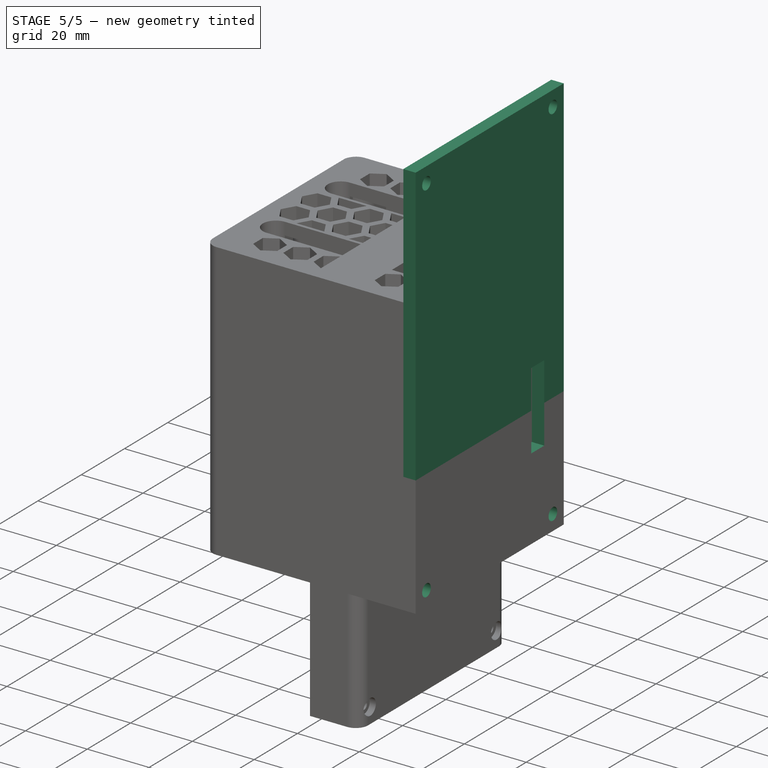
[diagram: stage 5 of 5 — iso view after this stage's code; geometry added in this stage tinted green]
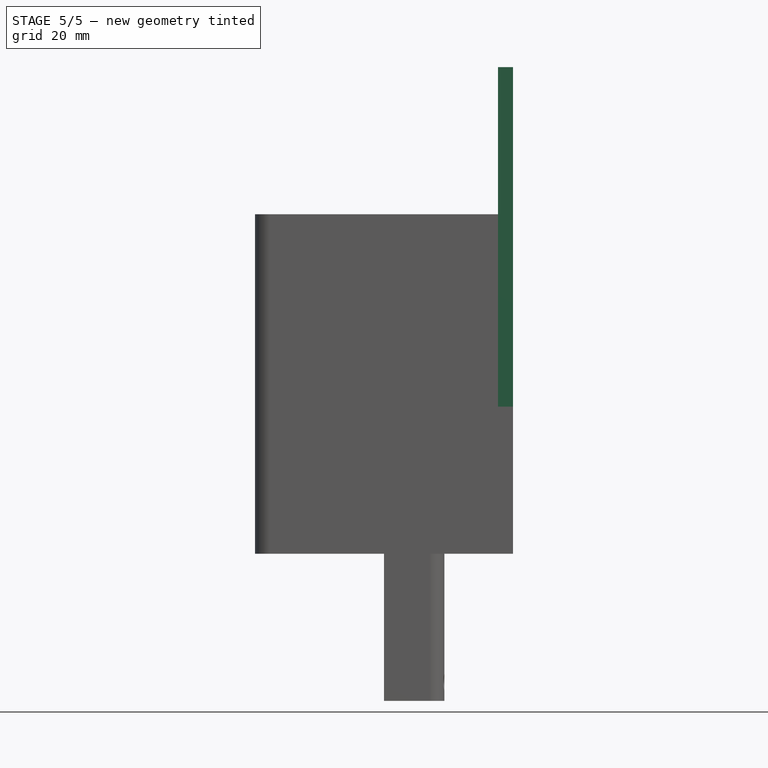
[diagram: stage 5 of 5 — front view after this stage's code; geometry added in this stage tinted green]
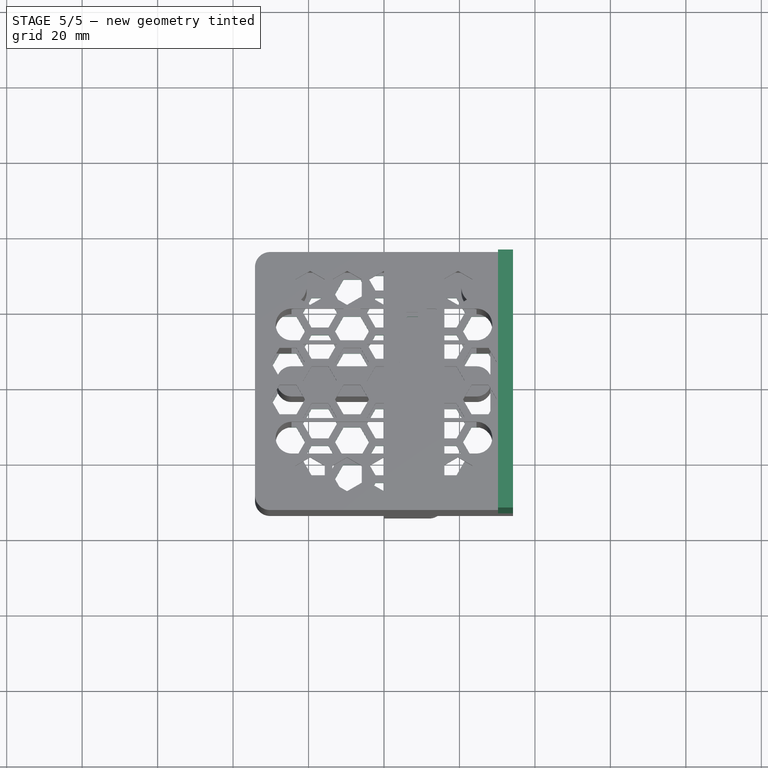
[diagram: stage 5 of 5 — top view after this stage's code; geometry added in this stage tinted green]
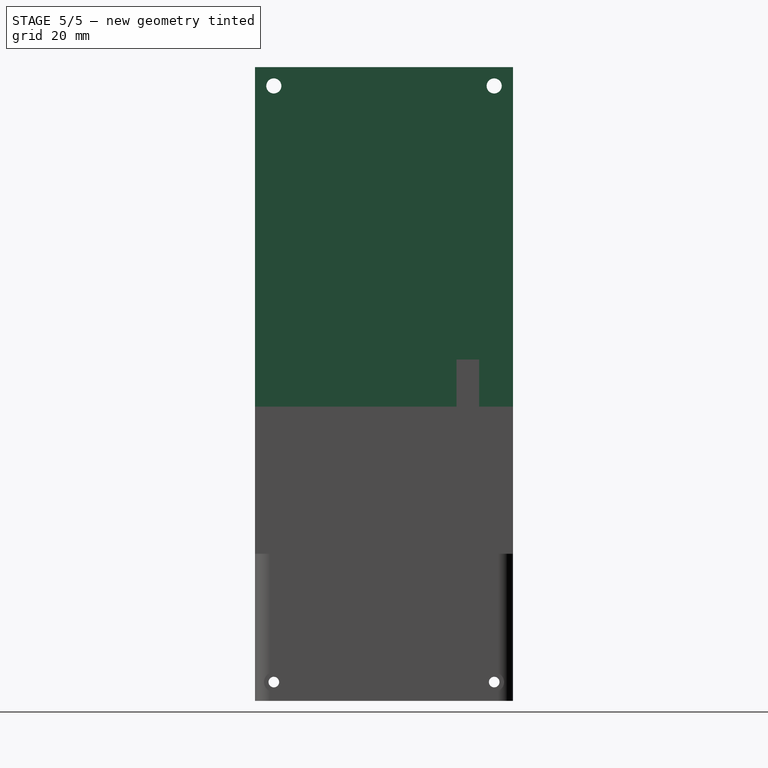
[diagram: stage 5 of 5 — right view after this stage's code; geometry added in this stage tinted green]
FEATURE [Sketcher::SketchObject] Sketch003
  ArcFitTolerance = 1e-06
  AttacherType = Attacher::AttachEngine3D
  AttachmentSupport = -> [Pocket005]
  FullyConstrained = true
  MakeInternals = false
  MapMode = 5
  Placement = pos=(0,0,0) rot=(1,0,0;3.14159rad)
  expr: Constraints[10] = <<Params>>.fan_mount_dimension / 2
  expr: Constraints[11] = <<Params>>.fan_mount_dimension / 2
  expr: Constraints[4] = <<Params>>.fan_bolt_diameter
  expr: Constraints[5] = <<Params>>.fan_bolt_diameter
  expr: Constraints[6] = <<Params>>.fan_bolt_diameter
  expr: Constraints[7] = <<Params>>.fan_bolt_diameter
  expr: Constraints[8] = <<Params>>.fan_mount_dimension / 2
  expr: Constraints[9] = <<Params>>.fan_mount_dimension / 2
  sketch-geometry (4):
    g0: Circle CenterX=-25 CenterY=25 CenterZ=0 NormalX=0 NormalY=0 NormalZ=1 AngleXU=0 Radius=1.6
    g1: Circle CenterX=-25 CenterY=-25 CenterZ=0 NormalX=0 NormalY=0 NormalZ=1 AngleXU=0 Radius=1.6
    g2: Circle CenterX=25 CenterY=-25 CenterZ=0 NormalX=0 NormalY=0 NormalZ=1 AngleXU=0 Radius=1.6
    g3: Circle CenterX=25 CenterY=25 CenterZ=0 NormalX=0 NormalY=0 NormalZ=1 AngleXU=0 Radius=1.6
  constraints (12):
    c: Horizontal(g3,g0)
    c: Horizontal(g1,g2)
    c: Vertical(g2,g3)
    c: Vertical(g0,g1)
    c: Diameter(g2) = 3.2
    c: Diameter(g1) = 3.2
    c: Diameter(g3) = 3.2
    c: Diameter(g0) = 3.2
    c: DistanceX(g0,g-1) = 25
    c: DistanceY(g-1,g0) = 25
    c: DistanceY(g1,g-1) = 25
    c: DistanceX(g-1,g3) = 25
FEATURE [PartDesign::Pocket] Pocket006  label="FanBoltHoles"
  BaseFeature = -> Pocket005
  Direction = (0,0,1)
  Length = 14
  Length2 = 5
  Profile = -> Sketch003
  ReferenceAxis = -> Sketch003 [N_Axis]
  Suppressed = false
  Type = 0
  expr: Length = <<Params>>.bottom_thickness + <<Params>>.fan_airgap
FEATURE [Sketcher::SketchObject] Sketch009
  ArcFitTolerance = 1e-06
  AttacherType = Attacher::AttachEngine3D
  AttachmentSupport = -> [Pocket006]
  FullyConstrained = true
  MakeInternals = false
  MapMode = 5
  Placement = pos=(0,0,0) rot=(1,0,0;3.14159rad)
  expr: Constraints[10] = <<Params>>.fan_mount_dimension / 2
  expr: Constraints[11] = <<Params>>.fan_mount_dimension / 2
  expr: Constraints[4] = <<Params>>.fan_bolt_head_diameter
  expr: Constraints[5] = <<Params>>.fan_bolt_head_diameter
  expr: Constraints[6] = <<Params>>.fan_bolt_head_diameter
  expr: Constraints[7] = <<Params>>.fan_bolt_head_diameter
  expr: Constraints[8] = <<Params>>.fan_mount_dimension / 2
  expr: Constraints[9] = <<Params>>.fan_mount_dimension / 2
  sketch-geometry (4):
    g0: Circle CenterX=-25 CenterY=25 CenterZ=0 NormalX=0 NormalY=0 NormalZ=1 AngleXU=0 Radius=3
    g1: Circle CenterX=-25 CenterY=-25 CenterZ=0 NormalX=0 NormalY=0 NormalZ=1 AngleXU=0 Radius=3
    g2: Circle CenterX=25 CenterY=-25 CenterZ=0 NormalX=0 NormalY=0 NormalZ=1 AngleXU=0 Radius=3
    g3: Circle CenterX=25 CenterY=25 CenterZ=0 NormalX=0 NormalY=0 NormalZ=1 AngleXU=0 Radius=3
  constraints (12):
    c: Horizontal(g3,g0)
    c: Horizontal(g1,g2)
    c: Vertical(g2,g3)
    c: Vertical(g0,g1)
    c: Diameter(g2) = 6
    c: Diameter(g1) = 6
    c: Diameter(g3) = 6
    c: Diameter(g0) = 6
    c: DistanceX(g0,g-1) = 25
    c: DistanceY(g-1,g0) = 25
    c: DistanceY(g1,g-1) = 25
    c: DistanceX(g-1,g3) = 25
FEATURE [PartDesign::Pocket] Pocket007  label="FanBoltRecesses"
  BaseFeature = -> Pocket006
  Direction = (0,0,1)
  Length = 8
  Length2 = 5
  Profile = -> Sketch009
  ReferenceAxis = -> Sketch009 [N_Axis]
  Suppressed = false
  Type = 0
  expr: Length = <<Params>>.fan_airgap - 2 mm
FEATURE [Sketcher::SketchObject] Sketch004
  ArcFitTolerance = 1e-06
  AttacherType = Attacher::AttachEngine3D
  AttachmentSupport = -> [Pocket007]
  FullyConstrained = true
  MakeInternals = false
  MapMode = 5
  Placement = pos=(0,0,0) rot=(1,0,0;3.14159rad)
  expr: Constraints[183] = <<Params>>.fan_hole_radius
  expr: Constraints[184] = <<Params>>.fan_hole_radius
  expr: Constraints[185] = <<Params>>.fan_hole_radius
  expr: Constraints[186] = <<Params>>.fan_hole_radius
  expr: Constraints[187] = <<Params>>.fan_hole_radius
  expr: Constraints[188] = <<Params>>.fan_hole_radius
  expr: Constraints[189] = <<Params>>.fan_hole_radius
  expr: Constraints[197] = <<Params>>.fan_hole_spacing
  expr: Constraints[198] = <<Params>>.fan_hole_spacing
  expr: Constraints[199] = <<Params>>.fan_hole_spacing
  expr: Constraints[200] = <<Params>>.fan_hole_spacing
  expr: Constraints[201] = <<Params>>.fan_hole_spacing
  expr: Constraints[202] = <<Params>>.fan_hole_spacing
  expr: Constraints[203] = <<Params>>.fan_hole_spacing
  expr: Constraints[204] = <<Params>>.fan_hole_spacing
  expr: Constraints[205] = <<Params>>.fan_hole_spacing
  expr: Constraints[206] = <<Params>>.fan_hole_spacing
  expr: Constraints[207] = <<Params>>.fan_hole_spacing
  expr: Constraints[208] = <<Params>>.fan_hole_spacing
  expr: Constraints[345] = <<Params>>.fan_hole_radius
  expr: Constraints[346] = <<Params>>.fan_hole_radius
  expr: Constraints[347] = <<Params>>.fan_hole_radius
  expr: Constraints[348] = <<Params>>.fan_hole_radius
  expr: Constraints[349] = <<Params>>.fan_hole_radius
  expr: Constraints[350] = <<Params>>.fan_hole_radius
  expr: Constraints[351] = <<Params>>.fan_hole_radius
  expr: Constraints[352] = <<Params>>.fan_hole_radius
  expr: Constraints[361] = <<Params>>.fan_hole_spacing
  expr: Constraints[362] = <<Params>>.fan_hole_spacing
  expr: Constraints[363] = <<Params>>.fan_hole_spacing
  expr: Constraints[364] = <<Params>>.fan_hole_spacing
  expr: Constraints[365] = <<Params>>.fan_hole_spacing
  expr: Constraints[366] = <<Params>>.fan_hole_spacing
  expr: Constraints[367] = <<Params>>.fan_hole_spacing
  expr: Constraints[373] = <<Params>>.fan_hole_spacing
  expr: Constraints[374] = <<Params>>.fan_hole_spacing
  expr: Constraints[375] = <<Params>>.fan_hole_spacing
  expr: Constraints[386] = <<Params>>.fan_hole_radius
  expr: Constraints[390] = <<Params>>.fan_hole_spacing
  expr: Constraints[391] = <<Params>>.fan_hole_spacing
  expr: Constraints[392] = <<Params>>.fan_hole_spacing
  expr: Constraints[393] = <<Params>>.fan_hole_spacing
  expr: Constraints[413] = <<Params>>.fan_hole_spacing
  expr: Constraints[50] = <<Params>>.fan_hole_radius
  expr: Constraints[51] = <<Params>>.fan_hole_radius
  expr: Constraints[52] = <<Params>>.fan_hole_radius
  expr: Constraints[55] = <<Params>>.fan_hole_spacing
  expr: Constraints[56] = <<Params>>.fan_hole_spacing
  expr: Constraints[57] = <<Params>>.fan_hole_spacing / 2
  sketch-geometry (139):
    g0: LineSegment StartX=2.25 StartY=5.89711 StartZ=0 EndX=4.5 EndY=9.79423 EndZ=0
    g1: LineSegment StartX=4.5 StartY=9.79423 StartZ=0 EndX=2.25 EndY=13.6913 EndZ=0
    g2: LineSegment StartX=2.25 StartY=13.6913 StartZ=0 EndX=-2.25 EndY=13.6913 EndZ=0
    g3: LineSegment StartX=-2.25 StartY=13.6913 StartZ=0 EndX=-4.5 EndY=9.79423 EndZ=0
    g4: LineSegment StartX=-4.5 StartY=9.79423 StartZ=0 EndX=-2.25 EndY=5.89711 EndZ=0
    g5: LineSegment StartX=-2.25 StartY=5.89711 StartZ=0 EndX=2.25 EndY=5.89711 EndZ=0
    g6: Circle [constr] CenterX=0 CenterY=9.79423 CenterZ=0 NormalX=0 NormalY=0 NormalZ=1 AngleXU=0 Radius=4.5
    g7: LineSegment StartX=10.7321 StartY=1 StartZ=0 EndX=12.9821 EndY=4.89711 EndZ=0
    g8: LineSegment StartX=10.7321 StartY=8.79423 StartZ=0 EndX=6.23205 EndY=8.79423 EndZ=0
    g9: LineSegment StartX=6.23205 StartY=8.79423 StartZ=0 EndX=3.98205 EndY=4.89711 EndZ=0
    g10: LineSegment StartX=3.98205 StartY=4.89711 StartZ=0 EndX=6.23205 EndY=1 EndZ=0
    g11: LineSegment StartX=6.23205 StartY=1 StartZ=0 EndX=10.7321 EndY=1 EndZ=0
    g12: Circle [constr] CenterX=8.48205 CenterY=4.89711 CenterZ=0 NormalX=0 NormalY=0 NormalZ=1 AngleXU=0 Radius=4.5
    g13: LineSegment StartX=-6.23205 StartY=1 StartZ=0 EndX=-3.98205 EndY=4.89711 EndZ=0
    g14: LineSegment StartX=-3.98205 StartY=4.89711 StartZ=0 EndX=-6.23205 EndY=8.79423 EndZ=0
    g15: LineSegment StartX=-6.23205 StartY=8.79423 StartZ=0 EndX=-10.7321 EndY=8.79423 EndZ=0
    g16: LineSegment StartX=-10.7321 StartY=8.79423 StartZ=0 EndX=-12.9821 EndY=4.89711 EndZ=0
    g17: LineSegment StartX=-12.9821 StartY=4.89711 StartZ=0 EndX=-10.7321 EndY=1 EndZ=0
    g18: LineSegment StartX=-10.7321 StartY=1 StartZ=0 EndX=-6.23205 EndY=1 EndZ=0
    g19: Circle [constr] CenterX=-8.48205 CenterY=4.89711 CenterZ=0 NormalX=0 NormalY=0 NormalZ=1 AngleXU=0 Radius=4.5
    g20: LineSegment [constr] StartX=2.25 StartY=5.89711 StartZ=0 EndX=3.98205 EndY=4.89711 EndZ=0
    g21: LineSegment StartX=10.7321 StartY=10.7942 StartZ=0 EndX=12.9821 EndY=14.6913 EndZ=0
    g22: LineSegment StartX=12.9821 StartY=14.6913 StartZ=0 EndX=10.7321 EndY=18.5885 EndZ=0
    g23: LineSegment StartX=10.7321 StartY=18.5885 StartZ=0 EndX=6.23205 EndY=18.5885 EndZ=0
    g24: LineSegment StartX=6.23205 StartY=18.5885 StartZ=0 EndX=3.98205 EndY=14.6913 EndZ=0
    g25: LineSegment StartX=3.98205 StartY=14.6913 StartZ=0 EndX=6.23205 EndY=10.7942 EndZ=0
    g26: LineSegment StartX=6.23205 StartY=10.7942 StartZ=0 EndX=10.7321 EndY=10.7942 EndZ=0
    g27: Circle [constr] CenterX=8.48205 CenterY=14.6913 CenterZ=0 NormalX=0 NormalY=0 NormalZ=1 AngleXU=0 Radius=4.5
    g28: LineSegment StartX=-6.23205 StartY=10.7942 StartZ=0 EndX=-3.98205 EndY=14.6913 EndZ=0
    g29: LineSegment StartX=-3.98205 StartY=14.6913 StartZ=0 EndX=-6.23205 EndY=18.5885 EndZ=0
    g30: LineSegment StartX=-6.23205 StartY=18.5885 StartZ=0 EndX=-10.7321 EndY=18.5885 EndZ=0
    g31: LineSegment StartX=-10.7321 StartY=18.5885 StartZ=0 EndX=-12.9821 EndY=14.6913 EndZ=0
    g32: LineSegment StartX=-12.9821 StartY=14.6913 StartZ=0 EndX=-10.7321 EndY=10.7942 EndZ=0
    g33: LineSegment StartX=-10.7321 StartY=10.7942 StartZ=0 EndX=-6.23205 EndY=10.7942 EndZ=0
    g34: Circle [constr] CenterX=-8.48205 CenterY=14.6913 CenterZ=0 NormalX=0 NormalY=0 NormalZ=1 AngleXU=0 Radius=4.5
    g35: LineSegment StartX=2.25 StartY=15.6913 StartZ=0 EndX=4.5 EndY=19.5885 EndZ=0
    g36: LineSegment StartX=4.5 StartY=19.5885 StartZ=0 EndX=2.25 EndY=23.4856 EndZ=0
    g37: LineSegment StartX=2.25 StartY=23.4856 StartZ=0 EndX=-2.25 EndY=23.4856 EndZ=0
    g38: LineSegment StartX=-2.25 StartY=23.4856 StartZ=0 EndX=-4.5 EndY=19.5885 EndZ=0
    g39: LineSegment StartX=-4.5 StartY=19.5885 StartZ=0 EndX=-2.25 EndY=15.6913 EndZ=0
    g40: LineSegment StartX=-2.25 StartY=15.6913 StartZ=0 EndX=2.25 EndY=15.6913 EndZ=0
    g41: Circle [constr] CenterX=2.3e-15 CenterY=19.5885 CenterZ=0 NormalX=0 NormalY=0 NormalZ=1 AngleXU=0 Radius=4.5
    g42: LineSegment StartX=-14.7141 StartY=5.89711 StartZ=0 EndX=-12.4641 EndY=9.79423 EndZ=0
    g43: LineSegment StartX=-12.4641 StartY=9.79423 StartZ=0 EndX=-14.7141 EndY=13.6913 EndZ=0
    g44: LineSegment StartX=-14.7141 StartY=13.6913 StartZ=0 EndX=-19.2141 EndY=13.6913 EndZ=0
    g45: LineSegment StartX=-19.2141 StartY=13.6913 StartZ=0 EndX=-21.4641 EndY=9.79423 EndZ=0
    g46: LineSegment StartX=-21.4641 StartY=9.79423 StartZ=0 EndX=-19.2141 EndY=5.89711 EndZ=0
    g47: LineSegment StartX=-19.2141 StartY=5.89711 StartZ=0 EndX=-14.7141 EndY=5.89711 EndZ=0
    g48: Circle [constr] CenterX=-16.9641 CenterY=9.79423 CenterZ=0 NormalX=0 NormalY=0 NormalZ=1 AngleXU=0 Radius=4.5
    g49: LineSegment StartX=-14.7141 StartY=-3.89711 StartZ=0 EndX=-12.4641 EndY=-4e-16 EndZ=0
    g50: LineSegment StartX=-12.4641 StartY=-3e-16 StartZ=0 EndX=-14.7141 EndY=3.89711 EndZ=0
    g51: LineSegment StartX=-14.7141 StartY=3.89711 StartZ=0 EndX=-19.2141 EndY=3.89711 EndZ=0
    g52: LineSegment StartX=-19.2141 StartY=3.89711 StartZ=0 EndX=-21.4641 EndY=4e-16 EndZ=0
    g53: LineSegment StartX=-21.4641 StartY=4e-16 StartZ=0 EndX=-19.2141 EndY=-3.89711 EndZ=0
    g54: LineSegment StartX=-19.2141 StartY=-3.89711 StartZ=0 EndX=-14.7141 EndY=-3.89711 EndZ=0
    g55: Circle [constr] CenterX=-16.9641 CenterY=0 CenterZ=0 NormalX=0 NormalY=0 NormalZ=1 AngleXU=0 Radius=4.5
    g56: LineSegment StartX=19.2141 StartY=5.89711 StartZ=0 EndX=21.4641 EndY=9.79423 EndZ=0
    g57: LineSegment StartX=21.4641 StartY=9.79423 StartZ=0 EndX=19.2141 EndY=13.6913 EndZ=0
    g58: LineSegment StartX=19.2141 StartY=13.6913 StartZ=0 EndX=14.7141 EndY=13.6913 EndZ=0
    g59: LineSegment StartX=14.7141 StartY=13.6913 StartZ=0 EndX=12.4641 EndY=9.79423 EndZ=0
    g60: LineSegment StartX=12.4641 StartY=9.79423 StartZ=0 EndX=14.7141 EndY=5.89711 EndZ=0
    g61: LineSegment StartX=14.7141 StartY=5.89711 StartZ=0 EndX=19.2141 EndY=5.89711 EndZ=0
    g62: Circle [constr] CenterX=16.9641 CenterY=9.79423 CenterZ=0 NormalX=0 NormalY=0 NormalZ=1 AngleXU=0 Radius=4.5
    g63: LineSegment StartX=19.2141 StartY=-3.89711 StartZ=0 EndX=21.4641 EndY=9e-16 EndZ=0
    g64: LineSegment StartX=21.4641 StartY=9e-16 StartZ=0 EndX=19.2141 EndY=3.89711 EndZ=0
    g65: LineSegment StartX=19.2141 StartY=3.89711 StartZ=0 EndX=14.7141 EndY=3.89711 EndZ=0
    g66: LineSegment StartX=14.7141 StartY=3.89711 StartZ=0 EndX=12.4641 EndY=0 EndZ=0
    g67: LineSegment StartX=12.4641 StartY=0 StartZ=0 EndX=14.7141 EndY=-3.89711 EndZ=0
    g68: LineSegment StartX=14.7141 StartY=-3.89711 StartZ=0 EndX=19.2141 EndY=-3.89711 EndZ=0
    g69: Circle [constr] CenterX=16.9641 CenterY=0 CenterZ=0 NormalX=0 NormalY=0 NormalZ=1 AngleXU=0 Radius=4.5
    g70: LineSegment StartX=-6.23205 StartY=20.5885 StartZ=0 EndX=-3.98205 EndY=24.4856 EndZ=0
    g71: LineSegment StartX=-3.98205 StartY=24.4856 StartZ=0 EndX=-6.23205 EndY=28.3827 EndZ=0
    g72: LineSegment StartX=-6.23205 StartY=28.3827 StartZ=0 EndX=-10.7321 EndY=28.3827 EndZ=0
    g73: LineSegment StartX=-10.7321 StartY=28.3827 StartZ=0 EndX=-12.9821 EndY=24.4856 EndZ=0
    g74: LineSegment StartX=-12.9821 StartY=24.4856 StartZ=0 EndX=-10.7321 EndY=20.5885 EndZ=0
    g75: LineSegment StartX=-10.7321 StartY=20.5885 StartZ=0 EndX=-6.23205 EndY=20.5885 EndZ=0
    g76: Circle [constr] CenterX=-8.48205 CenterY=24.4856 CenterZ=0 NormalX=0 NormalY=0 NormalZ=1 AngleXU=0 Radius=4.5
    g77: LineSegment StartX=10.7321 StartY=20.5885 StartZ=0 EndX=12.9821 EndY=24.4856 EndZ=0
    g78: LineSegment StartX=12.9821 StartY=24.4856 StartZ=0 EndX=10.7321 EndY=28.3827 EndZ=0
    g79: LineSegment StartX=10.7321 StartY=28.3827 StartZ=0 EndX=6.23205 EndY=28.3827 EndZ=0
    g80: LineSegment StartX=6.23205 StartY=28.3827 StartZ=0 EndX=3.98205 EndY=24.4856 EndZ=0
    g81: LineSegment StartX=3.98205 StartY=24.4856 StartZ=0 EndX=6.23205 EndY=20.5885 EndZ=0
    g82: LineSegment StartX=6.23205 StartY=20.5885 StartZ=0 EndX=10.7321 EndY=20.5885 EndZ=0
    g83: Circle [constr] CenterX=8.48205 CenterY=24.4856 CenterZ=0 NormalX=0 NormalY=0 NormalZ=1 AngleXU=0 Radius=4.5
    g84: LineSegment StartX=19.2141 StartY=15.6913 StartZ=0 EndX=21.4641 EndY=19.5885 EndZ=0
    g85: LineSegment StartX=21.4641 StartY=19.5885 StartZ=0 EndX=19.2141 EndY=23.4856 EndZ=0
    g86: LineSegment StartX=19.2141 StartY=23.4856 StartZ=0 EndX=14.7141 EndY=23.4856 EndZ=0
    g87: LineSegment StartX=14.7141 StartY=23.4856 StartZ=0 EndX=12.4641 EndY=19.5885 EndZ=0
    g88: LineSegment StartX=12.4641 StartY=19.5885 StartZ=0 EndX=14.7141 EndY=15.6913 EndZ=0
    g89: LineSegment StartX=14.7141 StartY=15.6913 StartZ=0 EndX=19.2141 EndY=15.6913 EndZ=0
    g90: Circle [constr] CenterX=16.9641 CenterY=19.5885 CenterZ=0 NormalX=0 NormalY=0 NormalZ=1 AngleXU=0 Radius=4.5
    g91: LineSegment StartX=-14.7141 StartY=15.6913 StartZ=0 EndX=-12.4641 EndY=19.5885 EndZ=0
    g92: LineSegment StartX=-12.4641 StartY=19.5885 StartZ=0 EndX=-14.7141 EndY=23.4856 EndZ=0
    g93: LineSegment StartX=-14.7141 StartY=23.4856 StartZ=0 EndX=-19.2141 EndY=23.4856 EndZ=0
    g94: LineSegment StartX=-19.2141 StartY=23.4856 StartZ=0 EndX=-21.4641 EndY=19.5885 EndZ=0
    g95: LineSegment StartX=-21.4641 StartY=19.5885 StartZ=0 EndX=-19.2141 EndY=15.6913 EndZ=0
    g96: LineSegment StartX=-19.2141 StartY=15.6913 StartZ=0 EndX=-14.7141 EndY=15.6913 EndZ=0
    g97: Circle [constr] CenterX=-16.9641 CenterY=19.5885 CenterZ=0 NormalX=0 NormalY=0 NormalZ=1 AngleXU=0 Radius=4.5
    g98: LineSegment StartX=-23.1962 StartY=10.7942 StartZ=0 EndX=-20.9462 EndY=14.6913 EndZ=0
    g99: LineSegment StartX=-20.9462 StartY=14.6913 StartZ=0 EndX=-23.1962 EndY=18.5885 EndZ=0
    g100: LineSegment StartX=-23.1962 StartY=18.5885 StartZ=0 EndX=-27.6962 EndY=18.5885 EndZ=0
    g101: LineSegment StartX=-27.6962 StartY=18.5885 StartZ=0 EndX=-29.9462 EndY=14.6913 EndZ=0
    g102: LineSegment StartX=-29.9462 StartY=14.6913 StartZ=0 EndX=-27.6962 EndY=10.7942 EndZ=0
    g103: LineSegment StartX=-27.6962 StartY=10.7942 StartZ=0 EndX=-23.1962 EndY=10.7942 EndZ=0
    g104: Circle [constr] CenterX=-25.4462 CenterY=14.6913 CenterZ=0 NormalX=0 NormalY=0 NormalZ=1 AngleXU=0 Radius=4.5
    g105: LineSegment StartX=-23.1962 StartY=1 StartZ=0 EndX=-20.9462 EndY=4.89711 EndZ=0
    g106: LineSegment StartX=-20.9462 StartY=4.89711 StartZ=0 EndX=-23.1962 EndY=8.79423 EndZ=0
    g107: LineSegment StartX=-23.1962 StartY=8.79423 StartZ=0 EndX=-27.6962 EndY=8.79423 EndZ=0
    g108: LineSegment StartX=-27.6962 StartY=8.79423 StartZ=0 EndX=-29.9462 EndY=4.89711 EndZ=0
    g109: LineSegment StartX=-29.9462 StartY=4.89711 StartZ=0 EndX=-27.6962 EndY=1 EndZ=0
    g110: LineSegment StartX=-27.6962 StartY=1 StartZ=0 EndX=-23.1962 EndY=1 EndZ=0
    g111: Circle [constr] CenterX=-25.4462 CenterY=4.89711 CenterZ=0 NormalX=0 NormalY=0 NormalZ=1 AngleXU=0 Radius=4.5
    g112: LineSegment StartX=27.6962 StartY=10.7942 StartZ=0 EndX=29.9462 EndY=14.6913 EndZ=0
    g113: LineSegment StartX=29.9462 StartY=14.6913 StartZ=0 EndX=27.6962 EndY=18.5885 EndZ=0
    g114: LineSegment StartX=27.6962 StartY=18.5885 StartZ=0 EndX=23.1962 EndY=18.5885 EndZ=0
    g115: LineSegment StartX=23.1962 StartY=18.5885 StartZ=0 EndX=20.9462 EndY=14.6913 EndZ=0
    g116: LineSegment StartX=20.9462 StartY=14.6913 StartZ=0 EndX=23.1962 EndY=10.7942 EndZ=0
    g117: LineSegment StartX=23.1962 StartY=10.7942 StartZ=0 EndX=27.6962 EndY=10.7942 EndZ=0
    g118: Circle [constr] CenterX=25.4462 CenterY=14.6913 CenterZ=0 NormalX=0 NormalY=0 NormalZ=1 AngleXU=0 Radius=4.5
    g119: LineSegment StartX=27.6962 StartY=1 StartZ=0 EndX=29.9462 EndY=4.89711 EndZ=0
    g120: LineSegment StartX=29.9462 StartY=4.89711 StartZ=0 EndX=27.6962 EndY=8.79423 EndZ=0
    g121: LineSegment StartX=27.6962 StartY=8.79423 StartZ=0 EndX=23.1962 EndY=8.79423 EndZ=0
    g122: LineSegment StartX=23.1962 StartY=8.79423 StartZ=0 EndX=20.9462 EndY=4.89711 EndZ=0
    g123: LineSegment StartX=20.9462 StartY=4.89711 StartZ=0 EndX=23.1962 EndY=1 EndZ=0
    g124: LineSegment StartX=23.1962 StartY=1 StartZ=0 EndX=27.6962 EndY=1 EndZ=0
    g125: Circle [constr] CenterX=25.4462 CenterY=4.89711 CenterZ=0 NormalX=0 NormalY=0 NormalZ=1 AngleXU=0 Radius=4.5
    g126: LineSegment StartX=12.9821 StartY=4.89711 StartZ=0 EndX=10.7321 EndY=8.79423 EndZ=0
    g127: LineSegment StartX=2.25 StartY=25.4856 StartZ=0 EndX=4.5 EndY=29.3827 EndZ=0
    g128: LineSegment StartX=-4.5 StartY=29.3827 StartZ=0 EndX=-2.25 EndY=25.4856 EndZ=0
    g129: LineSegment StartX=-2.25 StartY=25.4856 StartZ=0 EndX=2.25 EndY=25.4856 EndZ=0
    g130: Circle [constr] CenterX=0 CenterY=29.3827 CenterZ=0 NormalX=0 NormalY=0 NormalZ=1 AngleXU=0 Radius=4.5
    g131: LineSegment StartX=-4.5 StartY=29.3827 StartZ=0 EndX=4.5 EndY=29.3827 EndZ=0
    g132: LineSegment StartX=2.25 StartY=-3.89711 StartZ=0 EndX=4.5 EndY=0 EndZ=0
    g133: LineSegment StartX=4.5 StartY=0 StartZ=0 EndX=2.25 EndY=3.89711 EndZ=0
    g134: LineSegment StartX=2.25 StartY=3.89711 StartZ=0 EndX=-2.25 EndY=3.89711 EndZ=0
    g135: LineSegment StartX=-2.25 StartY=3.89711 StartZ=0 EndX=-4.5 EndY=4e-16 EndZ=0
    g136: LineSegment StartX=-4.5 StartY=4e-16 StartZ=0 EndX=-2.25 EndY=-3.89711 EndZ=0
    g137: LineSegment StartX=-2.25 StartY=-3.89711 StartZ=0 EndX=2.25 EndY=-3.89711 EndZ=0
    g138: Circle [constr] CenterX=0 CenterY=0 CenterZ=0 NormalX=0 NormalY=0 NormalZ=1 AngleXU=0 Radius=4.5
  constraints (340):
    c: Coincident(g0,g1)
    c: Coincident(g1,g2)
    c: Coincident(g2,g3)
    c: Coincident(g3,g4)
    c: Coincident(g4,g5)
    c: Coincident(g5,g0)
    c: Equal(g0, g1-g5) x5
    c: PointOnObject(g0,g6)
    c: PointOnObject(g1,g6)
    c: PointOnObject(g2,g6)
    c: PointOnObject(g3,g6)
    c: PointOnObject(g4,g6)
    c: PointOnObject(g5,g6)
    c: PointOnObject(g6,g-2)
    c: Coincident(g8,g9)
    c: Coincident(g9,g10)
    c: Coincident(g10,g11)
    c: Coincident(g11,g7)
    c: Equal(g7, g8-g11) x4
    c: PointOnObject(g7,g12)
    c: PointOnObject(g8,g12)
    c: PointOnObject(g8,g12)
    c: PointOnObject(g9,g12)
    c: PointOnObject(g10,g12)
    c: PointOnObject(g11,g12)
    c: Coincident(g13,g14)
    c: Coincident(g14,g15)
    c: Coincident(g15,g16)
    c: Coincident(g16,g17)
    c: Coincident(g17,g18)
    c: Coincident(g18,g13)
    c: Equal(g13, g14-g18) x5
    c: PointOnObject(g13,g19)
    c: PointOnObject(g14,g19)
    c: PointOnObject(g15,g19)
    c: PointOnObject(g16,g19)
    c: PointOnObject(g17,g19)
    c: PointOnObject(g18,g19)
    c: Horizontal(g7,g10)
    c: Diameter(g12) = 9
    c: Diameter(g6) = 9
    c: Diameter(g19) = 9
    c: Horizontal(g17,g13)
    c: Horizontal(g4,g0)
    c: Distance(g4,g14) = 2
    c: Distance(g9,g0) = 2
    c: DistanceY(g-1,g7) = 1
    c: Horizontal(g13,g10)
    c: Coincident(g20,g0)
    c: Coincident(g20,g9)
    c: Perpendicular(g0,g20)
    c: Coincident(g21,g22)
    c: Coincident(g22,g23)
    c: Coincident(g23,g24)
    c: Coincident(g24,g25)
    c: Coincident(g25,g26)
    c: Coincident(g26,g21)
    c: Equal(g21, g22-g26) x5
    c: PointOnObject(g21,g27)
    c: PointOnObject(g22,g27)
    c: PointOnObject(g23,g27)
    c: PointOnObject(g24,g27)
    c: PointOnObject(g25,g27)
    c: PointOnObject(g26,g27)
    c: Coincident(g28,g29)
    c: Coincident(g29,g30)
    c: Coincident(g30,g31)
    c: Coincident(g31,g32)
    c: Coincident(g32,g33)
    c: Coincident(g33,g28)
    c: Equal(g28, g29-g33) x5
    c: PointOnObject(g28,g34)
    c: PointOnObject(g29,g34)
    c: PointOnObject(g30,g34)
    c: PointOnObject(g31,g34)
    c: PointOnObject(g32,g34)
    c: PointOnObject(g33,g34)
    c: Coincident(g35,g36)
    c: Coincident(g36,g37)
    c: Coincident(g37,g38)
    c: Coincident(g38,g39)
    c: Coincident(g39,g40)
    c: Coincident(g40,g35)
    c: Equal(g35, g36-g40) x5
    c: PointOnObject(g35,g41)
    c: PointOnObject(g36,g41)
    c: PointOnObject(g37,g41)
    c: PointOnObject(g38,g41)
    c: PointOnObject(g39,g41)
    c: PointOnObject(g40,g41)
    c: Coincident(g42,g43)
    c: Coincident(g43,g44)
    c: Coincident(g44,g45)
    c: Coincident(g45,g46)
    c: Coincident(g46,g47)
    c: Coincident(g47,g42)
    c: Equal(g42, g43-g47) x5
    c: PointOnObject(g42,g48)
    c: PointOnObject(g43,g48)
    c: PointOnObject(g44,g48)
    c: PointOnObject(g45,g48)
    c: PointOnObject(g46,g48)
    c: PointOnObject(g47,g48)
    c: Coincident(g49,g50)
    c: Coincident(g50,g51)
    c: Coincident(g51,g52)
    c: Coincident(g52,g53)
    c: Coincident(g53,g54)
    c: Coincident(g54,g49)
    c: Equal(g49, g50-g54) x5
    c: PointOnObject(g49,g55)
    c: PointOnObject(g50,g55)
    c: PointOnObject(g51,g55)
    c: PointOnObject(g52,g55)
    c: PointOnObject(g53,g55)
    c: PointOnObject(g54,g55)
    c: PointOnObject(g55,g-1)
    c: Coincident(g56,g57)
    c: Coincident(g57,g58)
    c: Coincident(g58,g59)
    c: Coincident(g59,g60)
    c: Coincident(g60,g61)
    c: Coincident(g61,g56)
    c: Equal(g56, g57-g61) x5
    c: PointOnObject(g56,g62)
    c: PointOnObject(g57,g62)
    c: PointOnObject(g58,g62)
    c: PointOnObject(g59,g62)
    c: PointOnObject(g60,g62)
    c: PointOnObject(g61,g62)
    c: Coincident(g63,g64)
    c: Coincident(g64,g65)
    c: Coincident(g65,g66)
    c: Coincident(g66,g67)
    c: Coincident(g67,g68)
    c: Coincident(g68,g63)
    c: Equal(g63, g64-g68) x5
    c: PointOnObject(g63,g69)
    c: PointOnObject(g64,g69)
    c: PointOnObject(g65,g69)
    c: PointOnObject(g66,g69)
    c: PointOnObject(g67,g69)
    c: PointOnObject(g68,g69)
    c: PointOnObject(g69,g-1)
    c: Diameter(g69) = 9
    c: Diameter(g62) = 9
    c: Diameter(g27) = 9
    c: Diameter(g41) = 9
    c: Diameter(g34) = 9
    c: Diameter(g48) = 9
    c: Diameter(g55) = 9
    c: Horizontal(g51,g50)
    c: Horizontal(g44,g43)
    c: Horizontal(g30,g29)
    c: Horizontal(g37,g36)
    c: Horizontal(g23,g22)
    c: Horizontal(g58,g57)
    c: Horizontal(g65,g64)
    c: Distance(g8,g26) = 2
    c: Distance(g59,g21) = 2
    c: Distance(g65,g61) = 2
    c: Distance(g7,g66) = 2
    c: Distance(g17,g50) = 2
    c: Distance(g47,g51) = 2
    c: Distance(g32,g43) = 2
    c: Distance(g15,g33) = 2
    c: Distance(g16,g42) = 2
    c: Distance(g2,g40) = 2
    c: Distance(g39,g29) = 2
    c: Distance(g24,g35) = 2
    c: Coincident(g70,g71)
    c: Coincident(g71,g72)
    c: Coincident(g72,g73)
    c: Coincident(g73,g74)
    c: Coincident(g74,g75)
    c: Coincident(g75,g70)
    c: Equal(g70, g71-g75) x5
    c: PointOnObject(g70,g76)
    c: PointOnObject(g71,g76)
    c: PointOnObject(g72,g76)
    c: PointOnObject(g73,g76)
    c: PointOnObject(g74,g76)
    c: PointOnObject(g75,g76)
    c: Coincident(g77,g78)
    c: Coincident(g78,g79)
    c: Coincident(g79,g80)
    c: Coincident(g80,g81)
    c: Coincident(g81,g82)
    c: Coincident(g82,g77)
    c: Equal(g77, g78-g82) x5
    c: PointOnObject(g77,g83)
    c: PointOnObject(g78,g83)
    c: PointOnObject(g79,g83)
    c: PointOnObject(g80,g83)
    c: PointOnObject(g81,g83)
    c: PointOnObject(g82,g83)
    c: Coincident(g84,g85)
    c: Coincident(g85,g86)
    c: Coincident(g86,g87)
    c: Coincident(g87,g88)
    c: Coincident(g88,g89)
    c: Coincident(g89,g84)
    c: Equal(g84, g85-g89) x5
    c: PointOnObject(g84,g90)
    c: PointOnObject(g85,g90)
    c: PointOnObject(g86,g90)
    c: PointOnObject(g87,g90)
    c: PointOnObject(g88,g90)
    c: PointOnObject(g89,g90)
    c: Coincident(g91,g92)
    c: Coincident(g92,g93)
    c: Coincident(g93,g94)
    c: Coincident(g94,g95)
    c: Coincident(g95,g96)
    c: Coincident(g96,g91)
    c: Equal(g91, g92-g96) x5
    c: PointOnObject(g91,g97)
    c: PointOnObject(g92,g97)
    c: PointOnObject(g93,g97)
    c: PointOnObject(g94,g97)
    c: PointOnObject(g95,g97)
    c: PointOnObject(g96,g97)
    c: Coincident(g98,g99)
    c: Coincident(g99,g100)
    c: Coincident(g100,g101)
    c: Coincident(g101,g102)
    c: Coincident(g102,g103)
    c: Coincident(g103,g98)
    c: Equal(g98, g99-g103) x5
    c: PointOnObject(g98,g104)
    c: PointOnObject(g99,g104)
    c: PointOnObject(g100,g104)
    c: PointOnObject(g101,g104)
    c: PointOnObject(g102,g104)
    c: PointOnObject(g103,g104)
    c: Coincident(g105,g106)
    c: Coincident(g106,g107)
    c: Coincident(g107,g108)
    c: Coincident(g108,g109)
    c: Coincident(g109,g110)
    c: Coincident(g110,g105)
    c: Equal(g105, g106-g110) x5
    c: PointOnObject(g105,g111)
    c: PointOnObject(g106,g111)
    c: PointOnObject(g107,g111)
    c: PointOnObject(g108,g111)
    c: PointOnObject(g109,g111)
    c: PointOnObject(g110,g111)
    c: Coincident(g112,g113)
    c: Coincident(g113,g114)
    c: Coincident(g114,g115)
    c: Coincident(g115,g116)
    c: Coincident(g116,g117)
    c: Coincident(g117,g112)
    c: Equal(g112, g113-g117) x5
    c: PointOnObject(g112,g118)
    c: PointOnObject(g113,g118)
    c: PointOnObject(g114,g118)
    c: PointOnObject(g115,g118)
    c: PointOnObject(g116,g118)
    c: PointOnObject(g117,g118)
    c: Coincident(g119,g120)
    c: Coincident(g120,g121)
    c: Coincident(g121,g122)
    c: Coincident(g122,g123)
    c: Coincident(g123,g124)
    c: Coincident(g124,g119)
    c: Equal(g119, g120-g124) x5
    c: PointOnObject(g119,g125)
    c: PointOnObject(g120,g125)
    c: PointOnObject(g121,g125)
    c: PointOnObject(g122,g125)
    c: PointOnObject(g123,g125)
    c: PointOnObject(g124,g125)
    c: Diameter(g76) = 9
    c: Diameter(g83) = 9
    c: Diameter(g90) = 9
    c: Diameter(g118) = 9
    c: Diameter(g125) = 9
    c: Diameter(g104) = 9
    c: Diameter(g111) = 9
    c: Diameter(g97) = 9
    c: Horizontal(g95,g91)
    c: Horizontal(g102,g98)
    c: Horizontal(g107,g106)
    c: Horizontal(g121,g120)
    c: Horizontal(g114,g113)
    c: Horizontal(g85,g86)
    c: Horizontal(g79,g78)
    c: Horizontal(g72,g71)
    c: Distance(g70,g38) = 2
    c: Distance(g75,g30) = 2
    c: Distance(g74,g92) = 2
    c: Distance(g121,g117) = 2
    c: Distance(g122,g56) = 2
    c: Distance(g31,g91) = 2
    c: Distance(g95,g99) = 2
    c: Coincident(g126,g7)
    c: Coincident(g126,g8)
    c: Horizontal(g8,g8)
    c: Vertical(g27,g83)
    c: Vertical(g90,g62)
    c: Distance(g107,g103) = 2
    c: Distance(g46,g106) = 2
    c: Distance(g45,g98) = 2
    c: Coincident(g128,g129)
    c: Coincident(g129,g127)
    c: Equal(g127,g128)
    c: Equal(g127,g129)
    c: PointOnObject(g127,g130)
    c: PointOnObject(g128,g130)
    c: PointOnObject(g128,g130)
    c: PointOnObject(g129,g130)
    c: PointOnObject(g130,g-2)
    c: Horizontal(g128,g127)
    c: Diameter(g130) = 9
    c: Coincident(g131,g128)
    c: Coincident(g131,g127)
    c: Vertical(g118,g125)
    c: Distance(g58,g89) = 2
    c: Distance(g82,g23) = 2
    c: Distance(g116,g57) = 2
    c: Distance(g37,g129) = 2
    c: Parallel(g128,g71)
    c: Coincident(g132,g133)
    c: Coincident(g133,g134)
    c: Coincident(g134,g135)
    c: Coincident(g135,g136)
    c: Coincident(g136,g137)
    c: Coincident(g137,g132)
    c: Equal(g132, g133-g137) x5
    c: PointOnObject(g132,g138)
    c: PointOnObject(g133,g138)
    c: PointOnObject(g134,g138)
    c: PointOnObject(g135,g138)
    c: PointOnObject(g136,g138)
    c: PointOnObject(g137,g138)
    c: Horizontal(g133,g134)
    c: Distance(g10,g133) = 2
    c: Coincident(g-1,g138)
FEATURE [PartDesign::Pocket] Pocket008  label="GrillRight"
  BaseFeature = -> Pocket007
  Direction = (0,0,1)
  Length = 4
  Length2 = 5
  Profile = -> Sketch004
  ReferenceAxis = -> Sketch004 [N_Axis]
  Suppressed = false
  Type = 0
  expr: Length = <<Params>>.bottom_thickness
FEATURE [Sketcher::SketchObject] Sketch005
  ArcFitTolerance = 1e-06
  AttacherType = Attacher::AttachEngine3D
  AttachmentOffset = pos=(0,0,0) rot=(0,0,1;3.14159rad)
  AttachmentSupport = -> [Pocket008]
  FullyConstrained = true
  MakeInternals = false
  MapMode = 5
  Placement = pos=(0,0,0) rot=(0,-1,0;3.14159rad)
  expr: Constraints[147] = <<Params>>.fan_hole_radius
  expr: Constraints[148] = <<Params>>.fan_hole_radius
  expr: Constraints[149] = <<Params>>.fan_hole_radius
  expr: Constraints[150] = <<Params>>.fan_hole_radius
  expr: Constraints[151] = <<Params>>.fan_hole_radius
  expr: Constraints[157] = <<Params>>.fan_hole_spacing
  expr: Constraints[158] = <<Params>>.fan_hole_spacing
  expr: Constraints[159] = <<Params>>.fan_hole_spacing
  expr: Constraints[160] = <<Params>>.fan_hole_spacing
  expr: Constraints[161] = <<Params>>.fan_hole_spacing
  expr: Constraints[162] = <<Params>>.fan_hole_spacing
  expr: Constraints[163] = <<Params>>.fan_hole_spacing
  expr: Constraints[164] = <<Params>>.fan_hole_spacing
  expr: Constraints[301] = <<Params>>.fan_hole_radius
  expr: Constraints[302] = <<Params>>.fan_hole_radius
  expr: Constraints[303] = <<Params>>.fan_hole_radius
  expr: Constraints[304] = <<Params>>.fan_hole_radius
  expr: Constraints[305] = <<Params>>.fan_hole_radius
  expr: Constraints[306] = <<Params>>.fan_hole_radius
  expr: Constraints[307] = <<Params>>.fan_hole_radius
  expr: Constraints[308] = <<Params>>.fan_hole_radius
  expr: Constraints[317] = <<Params>>.fan_hole_spacing
  expr: Constraints[318] = <<Params>>.fan_hole_spacing
  expr: Constraints[319] = <<Params>>.fan_hole_spacing
  expr: Constraints[320] = <<Params>>.fan_hole_spacing
  expr: Constraints[321] = <<Params>>.fan_hole_spacing
  expr: Constraints[322] = <<Params>>.fan_hole_spacing
  expr: Constraints[323] = <<Params>>.fan_hole_spacing
  expr: Constraints[324] = <<Params>>.fan_hole_spacing
  expr: Constraints[325] = <<Params>>.fan_hole_spacing
  expr: Constraints[331] = <<Params>>.fan_hole_spacing
  expr: Constraints[332] = <<Params>>.fan_hole_spacing
  expr: Constraints[333] = <<Params>>.fan_hole_spacing
  expr: Constraints[334] = <<Params>>.fan_hole_spacing
  expr: Constraints[344] = <<Params>>.fan_hole_radius
  expr: Constraints[348] = <<Params>>.fan_hole_spacing
  expr: Constraints[350] = <<Params>>.fan_hole_spacing
  expr: Constraints[352] = <<Params>>.fan_hole_spacing
  expr: Constraints[50] = <<Params>>.fan_hole_radius
  expr: Constraints[51] = <<Params>>.fan_hole_radius
  expr: Constraints[52] = <<Params>>.fan_hole_radius
  expr: Constraints[55] = <<Params>>.fan_hole_spacing
  expr: Constraints[56] = <<Params>>.fan_hole_spacing
  expr: Constraints[57] = <<Params>>.fan_hole_spacing / 2
  sketch-geometry (118):
    g0: LineSegment StartX=2.25 StartY=5.89711 StartZ=0 EndX=4.5 EndY=9.79423 EndZ=0
    g1: LineSegment StartX=4.5 StartY=9.79423 StartZ=0 EndX=2.25 EndY=13.6913 EndZ=0
    g2: LineSegment StartX=2.25 StartY=13.6913 StartZ=0 EndX=-2.25 EndY=13.6913 EndZ=0
    g3: LineSegment StartX=-2.25 StartY=13.6913 StartZ=0 EndX=-4.5 EndY=9.79423 EndZ=0
    g4: LineSegment StartX=-4.5 StartY=9.79423 StartZ=0 EndX=-2.25 EndY=5.89711 EndZ=0
    g5: LineSegment StartX=-2.25 StartY=5.89711 StartZ=0 EndX=2.25 EndY=5.89711 EndZ=0
    g6: Circle [constr] CenterX=0 CenterY=9.79423 CenterZ=0 NormalX=0 NormalY=0 NormalZ=1 AngleXU=0 Radius=4.5
    g7: LineSegment StartX=10.7321 StartY=1 StartZ=0 EndX=12.9821 EndY=4.89711 EndZ=0
    g8: LineSegment StartX=10.7321 StartY=8.79423 StartZ=0 EndX=6.23205 EndY=8.79423 EndZ=0
    g9: LineSegment StartX=6.23205 StartY=8.79423 StartZ=0 EndX=3.98205 EndY=4.89711 EndZ=0
    g10: LineSegment StartX=3.98205 StartY=4.89711 StartZ=0 EndX=6.23205 EndY=1 EndZ=0
    g11: LineSegment StartX=6.23205 StartY=1 StartZ=0 EndX=10.7321 EndY=1 EndZ=0
    g12: Circle [constr] CenterX=8.48205 CenterY=4.89711 CenterZ=0 NormalX=0 NormalY=0 NormalZ=1 AngleXU=0 Radius=4.5
    g13: LineSegment StartX=-6.23205 StartY=1 StartZ=0 EndX=-3.98205 EndY=4.89711 EndZ=0
    g14: LineSegment StartX=-3.98205 StartY=4.89711 StartZ=0 EndX=-6.23205 EndY=8.79423 EndZ=0
    g15: LineSegment StartX=-6.23205 StartY=8.79423 StartZ=0 EndX=-10.7321 EndY=8.79423 EndZ=0
    g16: LineSegment StartX=-10.7321 StartY=8.79423 StartZ=0 EndX=-12.9821 EndY=4.89711 EndZ=0
    g17: LineSegment StartX=-12.9821 StartY=4.89711 StartZ=0 EndX=-10.7321 EndY=1 EndZ=0
    g18: LineSegment StartX=-10.7321 StartY=1 StartZ=0 EndX=-6.23205 EndY=1 EndZ=0
    g19: Circle [constr] CenterX=-8.48205 CenterY=4.89711 CenterZ=0 NormalX=0 NormalY=0 NormalZ=1 AngleXU=0 Radius=4.5
    g20: LineSegment [constr] StartX=2.25 StartY=5.89711 StartZ=0 EndX=3.98205 EndY=4.89711 EndZ=0
    g21: LineSegment StartX=10.7321 StartY=10.7942 StartZ=0 EndX=12.9821 EndY=14.6913 EndZ=0
    g22: LineSegment StartX=12.9821 StartY=14.6913 StartZ=0 EndX=10.7321 EndY=18.5885 EndZ=0
    g23: LineSegment StartX=10.7321 StartY=18.5885 StartZ=0 EndX=6.23205 EndY=18.5885 EndZ=0
    g24: LineSegment StartX=6.23205 StartY=18.5885 StartZ=0 EndX=3.98205 EndY=14.6913 EndZ=0
    g25: LineSegment StartX=3.98205 StartY=14.6913 StartZ=0 EndX=6.23205 EndY=10.7942 EndZ=0
    g26: LineSegment StartX=6.23205 StartY=10.7942 StartZ=0 EndX=10.7321 EndY=10.7942 EndZ=0
    g27: Circle [constr] CenterX=8.48205 CenterY=14.6913 CenterZ=0 NormalX=0 NormalY=0 NormalZ=1 AngleXU=0 Radius=4.5
    g28: LineSegment StartX=-6.23205 StartY=10.7942 StartZ=0 EndX=-3.98205 EndY=14.6913 EndZ=0
    g29: LineSegment StartX=-3.98205 StartY=14.6913 StartZ=0 EndX=-6.23205 EndY=18.5885 EndZ=0
    g30: LineSegment StartX=-6.23205 StartY=18.5885 StartZ=0 EndX=-10.7321 EndY=18.5885 EndZ=0
    g31: LineSegment StartX=-10.7321 StartY=18.5885 StartZ=0 EndX=-12.9821 EndY=14.6913 EndZ=0
    g32: LineSegment StartX=-12.9821 StartY=14.6913 StartZ=0 EndX=-10.7321 EndY=10.7942 EndZ=0
    g33: LineSegment StartX=-10.7321 StartY=10.7942 StartZ=0 EndX=-6.23205 EndY=10.7942 EndZ=0
    g34: Circle [constr] CenterX=-8.48205 CenterY=14.6913 CenterZ=0 NormalX=0 NormalY=0 NormalZ=1 AngleXU=0 Radius=4.5
    g35: LineSegment StartX=2.25 StartY=15.6913 StartZ=0 EndX=4.5 EndY=19.5885 EndZ=0
    g36: LineSegment StartX=4.5 StartY=19.5885 StartZ=0 EndX=2.25 EndY=23.4856 EndZ=0
    g37: LineSegment StartX=2.25 StartY=23.4856 StartZ=0 EndX=-2.25 EndY=23.4856 EndZ=0
    g38: LineSegment StartX=-2.25 StartY=23.4856 StartZ=0 EndX=-4.5 EndY=19.5885 EndZ=0
    g39: LineSegment StartX=-4.5 StartY=19.5885 StartZ=0 EndX=-2.25 EndY=15.6913 EndZ=0
    g40: LineSegment StartX=-2.25 StartY=15.6913 StartZ=0 EndX=2.25 EndY=15.6913 EndZ=0
    g41: Circle [constr] CenterX=-1.49683e-11 CenterY=19.5885 CenterZ=0 NormalX=0 NormalY=0 NormalZ=1 AngleXU=0 Radius=4.5
    g42: LineSegment StartX=-14.7141 StartY=5.89711 StartZ=0 EndX=-12.4641 EndY=9.79423 EndZ=0
    g43: LineSegment StartX=-12.4641 StartY=9.79423 StartZ=0 EndX=-14.7141 EndY=13.6913 EndZ=0
    g44: LineSegment StartX=-14.7141 StartY=13.6913 StartZ=0 EndX=-19.2141 EndY=13.6913 EndZ=0
    g45: LineSegment StartX=-19.2141 StartY=13.6913 StartZ=0 EndX=-21.4641 EndY=9.79423 EndZ=0
    g46: LineSegment StartX=-21.4641 StartY=9.79423 StartZ=0 EndX=-19.2141 EndY=5.89711 EndZ=0
    g47: LineSegment StartX=-19.2141 StartY=5.89711 StartZ=0 EndX=-14.7141 EndY=5.89711 EndZ=0
    g48: Circle [constr] CenterX=-16.9641 CenterY=9.79423 CenterZ=0 NormalX=0 NormalY=0 NormalZ=1 AngleXU=0 Radius=4.5
    g49: LineSegment StartX=19.2141 StartY=5.89711 StartZ=0 EndX=21.4641 EndY=9.79423 EndZ=0
    g50: LineSegment StartX=21.4641 StartY=9.79423 StartZ=0 EndX=19.2141 EndY=13.6913 EndZ=0
    g51: LineSegment StartX=19.2141 StartY=13.6913 StartZ=0 EndX=14.7141 EndY=13.6913 EndZ=0
    g52: LineSegment StartX=14.7141 StartY=13.6913 StartZ=0 EndX=12.4641 EndY=9.79423 EndZ=0
    g53: LineSegment StartX=12.4641 StartY=9.79423 StartZ=0 EndX=14.7141 EndY=5.89711 EndZ=0
    g54: LineSegment StartX=14.7141 StartY=5.89711 StartZ=0 EndX=19.2141 EndY=5.89711 EndZ=0
    g55: Circle [constr] CenterX=16.9641 CenterY=9.79423 CenterZ=0 NormalX=0 NormalY=0 NormalZ=1 AngleXU=0 Radius=4.5
    g56: LineSegment StartX=-6.23205 StartY=20.5885 StartZ=0 EndX=-3.98205 EndY=24.4856 EndZ=0
    g57: LineSegment StartX=-3.98205 StartY=24.4856 StartZ=0 EndX=-6.23205 EndY=28.3827 EndZ=0
    g58: LineSegment StartX=-6.23205 StartY=28.3827 StartZ=0 EndX=-10.7321 EndY=28.3827 EndZ=0
    g59: LineSegment StartX=-10.7321 StartY=28.3827 StartZ=0 EndX=-12.9821 EndY=24.4856 EndZ=0
    g60: LineSegment StartX=-12.9821 StartY=24.4856 StartZ=0 EndX=-10.7321 EndY=20.5885 EndZ=0
    g61: LineSegment StartX=-10.7321 StartY=20.5885 StartZ=0 EndX=-6.23205 EndY=20.5885 EndZ=0
    g62: Circle [constr] CenterX=-8.48205 CenterY=24.4856 CenterZ=0 NormalX=0 NormalY=0 NormalZ=1 AngleXU=0 Radius=4.5
    g63: LineSegment StartX=10.7321 StartY=20.5885 StartZ=0 EndX=12.9821 EndY=24.4856 EndZ=0
    g64: LineSegment StartX=12.9821 StartY=24.4856 StartZ=0 EndX=10.7321 EndY=28.3827 EndZ=0
    g65: LineSegment StartX=10.7321 StartY=28.3827 StartZ=0 EndX=6.23205 EndY=28.3827 EndZ=0
    g66: LineSegment StartX=6.23205 StartY=28.3827 StartZ=0 EndX=3.98205 EndY=24.4856 EndZ=0
    g67: LineSegment StartX=3.98205 StartY=24.4856 StartZ=0 EndX=6.23205 EndY=20.5885 EndZ=0
    g68: LineSegment StartX=6.23205 StartY=20.5885 StartZ=0 EndX=10.7321 EndY=20.5885 EndZ=0
    g69: Circle [constr] CenterX=8.48205 CenterY=24.4856 CenterZ=0 NormalX=0 NormalY=0 NormalZ=1 AngleXU=0 Radius=4.5
    g70: LineSegment StartX=19.2141 StartY=15.6913 StartZ=0 EndX=21.4641 EndY=19.5885 EndZ=0
    g71: LineSegment StartX=21.4641 StartY=19.5885 StartZ=0 EndX=19.2141 EndY=23.4856 EndZ=0
    g72: LineSegment StartX=19.2141 StartY=23.4856 StartZ=0 EndX=14.7141 EndY=23.4856 EndZ=0
    g73: LineSegment StartX=14.7141 StartY=23.4856 StartZ=0 EndX=12.4641 EndY=19.5885 EndZ=0
    g74: LineSegment StartX=12.4641 StartY=19.5885 StartZ=0 EndX=14.7141 EndY=15.6913 EndZ=0
    g75: LineSegment StartX=14.7141 StartY=15.6913 StartZ=0 EndX=19.2141 EndY=15.6913 EndZ=0
    g76: Circle [constr] CenterX=16.9641 CenterY=19.5885 CenterZ=0 NormalX=0 NormalY=0 NormalZ=1 AngleXU=0 Radius=4.5
    g77: LineSegment StartX=-14.7141 StartY=15.6913 StartZ=0 EndX=-12.4641 EndY=19.5885 EndZ=0
    g78: LineSegment StartX=-12.4641 StartY=19.5885 StartZ=0 EndX=-14.7141 EndY=23.4856 EndZ=0
    g79: LineSegment StartX=-14.7141 StartY=23.4856 StartZ=0 EndX=-19.2141 EndY=23.4856 EndZ=0
    g80: LineSegment StartX=-19.2141 StartY=23.4856 StartZ=0 EndX=-21.4641 EndY=19.5885 EndZ=0
    g81: LineSegment StartX=-21.4641 StartY=19.5885 StartZ=0 EndX=-19.2141 EndY=15.6913 EndZ=0
    g82: LineSegment StartX=-19.2141 StartY=15.6913 StartZ=0 EndX=-14.7141 EndY=15.6913 EndZ=0
    g83: Circle [constr] CenterX=-16.9641 CenterY=19.5885 CenterZ=0 NormalX=0 NormalY=0 NormalZ=1 AngleXU=0 Radius=4.5
    g84: LineSegment StartX=-23.1962 StartY=10.7942 StartZ=0 EndX=-20.9462 EndY=14.6913 EndZ=0
    g85: LineSegment StartX=-20.9462 StartY=14.6913 StartZ=0 EndX=-23.1962 EndY=18.5885 EndZ=0
    g86: LineSegment StartX=-23.1962 StartY=18.5885 StartZ=0 EndX=-27.6962 EndY=18.5885 EndZ=0
    g87: LineSegment StartX=-27.6962 StartY=18.5885 StartZ=0 EndX=-29.9462 EndY=14.6913 EndZ=0
    g88: LineSegment StartX=-29.9462 StartY=14.6913 StartZ=0 EndX=-27.6962 EndY=10.7942 EndZ=0
    g89: LineSegment StartX=-27.6962 StartY=10.7942 StartZ=0 EndX=-23.1962 EndY=10.7942 EndZ=0
    g90: Circle [constr] CenterX=-25.4462 CenterY=14.6913 CenterZ=0 NormalX=0 NormalY=0 NormalZ=1 AngleXU=0 Radius=4.5
    g91: LineSegment StartX=-23.1962 StartY=1 StartZ=0 EndX=-20.9462 EndY=4.89711 EndZ=0
    g92: LineSegment StartX=-20.9462 StartY=4.89711 StartZ=0 EndX=-23.1962 EndY=8.79423 EndZ=0
    g93: LineSegment StartX=-23.1962 StartY=8.79423 StartZ=0 EndX=-27.6962 EndY=8.79423 EndZ=0
    g94: LineSegment StartX=-27.6962 StartY=8.79423 StartZ=0 EndX=-29.9462 EndY=4.89711 EndZ=0
    g95: LineSegment StartX=-29.9462 StartY=4.89711 StartZ=0 EndX=-27.6962 EndY=1 EndZ=0
    g96: LineSegment StartX=-27.6962 StartY=1 StartZ=0 EndX=-23.1962 EndY=1 EndZ=0
    g97: Circle [constr] CenterX=-25.4462 CenterY=4.89711 CenterZ=0 NormalX=0 NormalY=0 NormalZ=1 AngleXU=0 Radius=4.5
    g98: LineSegment StartX=27.6962 StartY=10.7942 StartZ=0 EndX=29.9462 EndY=14.6913 EndZ=0
    g99: LineSegment StartX=29.9462 StartY=14.6913 StartZ=0 EndX=27.6962 EndY=18.5885 EndZ=0
    g100: LineSegment StartX=27.6962 StartY=18.5885 StartZ=0 EndX=23.1962 EndY=18.5885 EndZ=0
    g101: LineSegment StartX=23.1962 StartY=18.5885 StartZ=0 EndX=20.9462 EndY=14.6913 EndZ=0
    g102: LineSegment StartX=20.9462 StartY=14.6913 StartZ=0 EndX=23.1962 EndY=10.7942 EndZ=0
    g103: LineSegment StartX=23.1962 StartY=10.7942 StartZ=0 EndX=27.6962 EndY=10.7942 EndZ=0
    g104: Circle [constr] CenterX=25.4462 CenterY=14.6913 CenterZ=0 NormalX=0 NormalY=0 NormalZ=1 AngleXU=0 Radius=4.5
    g105: LineSegment StartX=27.6962 StartY=1 StartZ=0 EndX=29.9462 EndY=4.89711 EndZ=0
    g106: LineSegment StartX=29.9462 StartY=4.89711 StartZ=0 EndX=27.6962 EndY=8.79423 EndZ=0
    g107: LineSegment StartX=27.6962 StartY=8.79423 StartZ=0 EndX=23.1962 EndY=8.79423 EndZ=0
    g108: LineSegment StartX=23.1962 StartY=8.79423 StartZ=0 EndX=20.9462 EndY=4.89711 EndZ=0
    g109: LineSegment StartX=20.9462 StartY=4.89711 StartZ=0 EndX=23.1962 EndY=1 EndZ=0
    g110: LineSegment StartX=23.1962 StartY=1 StartZ=0 EndX=27.6962 EndY=1 EndZ=0
    g111: Circle [constr] CenterX=25.4462 CenterY=4.89711 CenterZ=0 NormalX=0 NormalY=0 NormalZ=1 AngleXU=0 Radius=4.5
    g112: LineSegment StartX=12.9821 StartY=4.89711 StartZ=0 EndX=10.7321 EndY=8.79423 EndZ=0
    g113: LineSegment StartX=2.25 StartY=25.4856 StartZ=0 EndX=4.5 EndY=29.3827 EndZ=0
    g114: LineSegment StartX=-4.5 StartY=29.3827 StartZ=0 EndX=-2.25 EndY=25.4856 EndZ=0
    g115: LineSegment StartX=-2.25 StartY=25.4856 StartZ=0 EndX=2.25 EndY=25.4856 EndZ=0
    g116: Circle [constr] CenterX=0 CenterY=29.3827 CenterZ=0 NormalX=0 NormalY=0 NormalZ=1 AngleXU=0 Radius=4.5
    g117: LineSegment StartX=-4.5 StartY=29.3827 StartZ=0 EndX=4.5 EndY=29.3827 EndZ=0
  constraints (290):
    c: Coincident(g0,g1)
    c: Coincident(g1,g2)
    c: Coincident(g2,g3)
    c: Coincident(g3,g4)
    c: Coincident(g4,g5)
    c: Coincident(g5,g0)
    c: Equal(g0, g1-g5) x5
    c: PointOnObject(g0,g6)
    c: PointOnObject(g1,g6)
    c: PointOnObject(g2,g6)
    c: PointOnObject(g3,g6)
    c: PointOnObject(g4,g6)
    c: PointOnObject(g5,g6)
    c: PointOnObject(g6,g-2)
    c: Coincident(g8,g9)
    c: Coincident(g9,g10)
    c: Coincident(g10,g11)
    c: Coincident(g11,g7)
    c: Equal(g7, g8-g11) x4
    c: PointOnObject(g7,g12)
    c: PointOnObject(g8,g12)
    c: PointOnObject(g8,g12)
    c: PointOnObject(g9,g12)
    c: PointOnObject(g10,g12)
    c: PointOnObject(g11,g12)
    c: Coincident(g13,g14)
    c: Coincident(g14,g15)
    c: Coincident(g15,g16)
    c: Coincident(g16,g17)
    c: Coincident(g17,g18)
    c: Coincident(g18,g13)
    c: Equal(g13, g14-g18) x5
    c: PointOnObject(g13,g19)
    c: PointOnObject(g14,g19)
    c: PointOnObject(g15,g19)
    c: PointOnObject(g16,g19)
    c: PointOnObject(g17,g19)
    c: PointOnObject(g18,g19)
    c: Horizontal(g7,g10)
    c: Diameter(g12) = 9
    c: Diameter(g6) = 9
    c: Diameter(g19) = 9
    c: Horizontal(g17,g13)
    c: Horizontal(g4,g0)
    c: Distance(g4,g14) = 2
    c: Distance(g9,g0) = 2
    c: DistanceY(g-1,g7) = 1
    c: Horizontal(g13,g10)
    c: Coincident(g20,g0)
    c: Coincident(g20,g9)
    c: Perpendicular(g0,g20)
    c: Coincident(g21,g22)
    c: Coincident(g22,g23)
    c: Coincident(g23,g24)
    c: Coincident(g24,g25)
    c: Coincident(g25,g26)
    c: Coincident(g26,g21)
    c: Equal(g21, g22-g26) x5
    c: PointOnObject(g21,g27)
    c: PointOnObject(g22,g27)
    c: PointOnObject(g23,g27)
    c: PointOnObject(g24,g27)
    c: PointOnObject(g25,g27)
    c: PointOnObject(g26,g27)
    c: Coincident(g28,g29)
    c: Coincident(g29,g30)
    c: Coincident(g30,g31)
    c: Coincident(g31,g32)
    c: Coincident(g32,g33)
    c: Coincident(g33,g28)
    c: Equal(g28, g29-g33) x5
    c: PointOnObject(g28,g34)
    c: PointOnObject(g29,g34)
    c: PointOnObject(g30,g34)
    c: PointOnObject(g31,g34)
    c: PointOnObject(g32,g34)
    c: PointOnObject(g33,g34)
    c: Coincident(g35,g36)
    c: Coincident(g36,g37)
    c: Coincident(g37,g38)
    c: Coincident(g38,g39)
    c: Coincident(g39,g40)
    c: Coincident(g40,g35)
    c: Equal(g35, g36-g40) x5
    c: PointOnObject(g35,g41)
    c: PointOnObject(g36,g41)
    c: PointOnObject(g37,g41)
    c: PointOnObject(g38,g41)
    c: PointOnObject(g39,g41)
    c: PointOnObject(g40,g41)
    c: Coincident(g42,g43)
    c: Coincident(g43,g44)
    c: Coincident(g44,g45)
    c: Coincident(g45,g46)
    c: Coincident(g46,g47)
    c: Coincident(g47,g42)
    c: Equal(g42, g43-g47) x5
    c: PointOnObject(g42,g48)
    c: PointOnObject(g43,g48)
    c: PointOnObject(g44,g48)
    c: PointOnObject(g45,g48)
    c: PointOnObject(g46,g48)
    c: PointOnObject(g47,g48)
    c: Coincident(g49,g50)
    c: Coincident(g50,g51)
    c: Coincident(g51,g52)
    c: Coincident(g52,g53)
    c: Coincident(g53,g54)
    c: Coincident(g54,g49)
    c: Equal(g49, g50-g54) x5
    c: PointOnObject(g49,g55)
    c: PointOnObject(g50,g55)
    c: PointOnObject(g51,g55)
    c: PointOnObject(g52,g55)
    c: PointOnObject(g53,g55)
    c: PointOnObject(g54,g55)
    c: Diameter(g55) = 9
    c: Diameter(g27) = 9
    c: Diameter(g41) = 9
    c: Diameter(g34) = 9
    c: Diameter(g48) = 9
    c: Horizontal(g44,g43)
    c: Horizontal(g30,g29)
    c: Horizontal(g37,g36)
    c: Horizontal(g23,g22)
    c: Horizontal(g51,g50)
    c: Distance(g8,g26) = 2
    c: Distance(g52,g21) = 2
    c: Distance(g32,g43) = 2
    c: Distance(g15,g33) = 2
    c: Distance(g16,g42) = 2
    c: Distance(g2,g40) = 2
    c: Distance(g39,g29) = 2
    c: Distance(g24,g35) = 2
    c: Coincident(g56,g57)
    c: Coincident(g57,g58)
    c: Coincident(g58,g59)
    c: Coincident(g59,g60)
    c: Coincident(g60,g61)
    c: Coincident(g61,g56)
    c: Equal(g56, g57-g61) x5
    c: PointOnObject(g56,g62)
    c: PointOnObject(g57,g62)
    c: PointOnObject(g58,g62)
    c: PointOnObject(g59,g62)
    c: PointOnObject(g60,g62)
    c: PointOnObject(g61,g62)
    c: Coincident(g63,g64)
    c: Coincident(g64,g65)
    c: Coincident(g65,g66)
    c: Coincident(g66,g67)
    c: Coincident(g67,g68)
    c: Coincident(g68,g63)
    c: Equal(g63, g64-g68) x5
    c: PointOnObject(g63,g69)
    c: PointOnObject(g64,g69)
    c: PointOnObject(g65,g69)
    c: PointOnObject(g66,g69)
    c: PointOnObject(g67,g69)
    c: PointOnObject(g68,g69)
    c: Coincident(g70,g71)
    c: Coincident(g71,g72)
    c: Coincident(g72,g73)
    c: Coincident(g73,g74)
    c: Coincident(g74,g75)
    c: Coincident(g75,g70)
    c: Equal(g70, g71-g75) x5
    c: PointOnObject(g70,g76)
    c: PointOnObject(g71,g76)
    c: PointOnObject(g72,g76)
    c: PointOnObject(g73,g76)
    c: PointOnObject(g74,g76)
    c: PointOnObject(g75,g76)
    c: Coincident(g77,g78)
    c: Coincident(g78,g79)
    c: Coincident(g79,g80)
    c: Coincident(g80,g81)
    c: Coincident(g81,g82)
    c: Coincident(g82,g77)
    c: Equal(g77, g78-g82) x5
    c: PointOnObject(g77,g83)
    c: PointOnObject(g78,g83)
    c: PointOnObject(g79,g83)
    c: PointOnObject(g80,g83)
    c: PointOnObject(g81,g83)
    c: PointOnObject(g82,g83)
    c: Coincident(g84,g85)
    c: Coincident(g85,g86)
    c: Coincident(g86,g87)
    c: Coincident(g87,g88)
    c: Coincident(g88,g89)
    c: Coincident(g89,g84)
    c: Equal(g84, g85-g89) x5
    c: PointOnObject(g84,g90)
    c: PointOnObject(g85,g90)
    c: PointOnObject(g86,g90)
    c: PointOnObject(g87,g90)
    c: PointOnObject(g88,g90)
    c: PointOnObject(g89,g90)
    c: Coincident(g91,g92)
    c: Coincident(g92,g93)
    c: Coincident(g93,g94)
    c: Coincident(g94,g95)
    c: Coincident(g95,g96)
    c: Coincident(g96,g91)
    c: Equal(g91, g92-g96) x5
    c: PointOnObject(g91,g97)
    c: PointOnObject(g92,g97)
    c: PointOnObject(g93,g97)
    c: PointOnObject(g94,g97)
    c: PointOnObject(g95,g97)
    c: PointOnObject(g96,g97)
    c: Coincident(g98,g99)
    c: Coincident(g99,g100)
    c: Coincident(g100,g101)
    c: Coincident(g101,g102)
    c: Coincident(g102,g103)
    c: Coincident(g103,g98)
    c: Equal(g98, g99-g103) x5
    c: PointOnObject(g98,g104)
    c: PointOnObject(g99,g104)
    c: PointOnObject(g100,g104)
    c: PointOnObject(g101,g104)
    c: PointOnObject(g102,g104)
    c: PointOnObject(g103,g104)
    c: Coincident(g105,g106)
    c: Coincident(g106,g107)
    c: Coincident(g107,g108)
    c: Coincident(g108,g109)
    c: Coincident(g109,g110)
    c: Coincident(g110,g105)
    c: Equal(g105, g106-g110) x5
    c: PointOnObject(g105,g111)
    c: PointOnObject(g106,g111)
    c: PointOnObject(g107,g111)
    c: PointOnObject(g108,g111)
    c: PointOnObject(g109,g111)
    c: PointOnObject(g110,g111)
    c: Diameter(g62) = 9
    c: Diameter(g69) = 9
    c: Diameter(g76) = 9
    c: Diameter(g104) = 9
    c: Diameter(g111) = 9
    c: Diameter(g90) = 9
    c: Diameter(g97) = 9
    c: Diameter(g83) = 9
    c: Horizontal(g81,g77)
    c: Horizontal(g88,g84)
    c: Horizontal(g93,g92)
    c: Horizontal(g107,g106)
    c: Horizontal(g100,g99)
    c: Horizontal(g71,g72)
    c: Horizontal(g65,g64)
    c: Horizontal(g58,g57)
    c: Distance(g56,g38) = 2
    c: Distance(g61,g30) = 2
    c: Distance(g60,g78) = 2
    c: Distance(g70,g101) = 2
    c: Distance(g102,g50) = 2
    c: Distance(g107,g103) = 2
    c: Distance(g108,g49) = 2
    c: Distance(g31,g77) = 2
    c: Distance(g81,g85) = 2
    c: Coincident(g112,g7)
    c: Coincident(g112,g8)
    c: Horizontal(g8,g8)
    c: Vertical(g27,g69)
    c: Vertical(g76,g55)
    c: Distance(g63,g73) = 2
    c: Distance(g93,g89) = 2
    c: Distance(g46,g92) = 2
    c: Distance(g45,g84) = 2
    c: Coincident(g114,g115)
    c: Coincident(g115,g113)
    c: Equal(g113,g114)
    c: Equal(g113,g115)
    c: PointOnObject(g113,g116)
    c: PointOnObject(g114,g116)
    c: PointOnObject(g114,g116)
    c: PointOnObject(g115,g116)
    c: PointOnObject(g116,g-2)
    c: Diameter(g116) = 9
    c: Horizontal(g114,g113)
    c: Coincident(g117,g114)
    c: Coincident(g117,g113)
    c: Distance(g37,g115) = 2
    c: Parallel(g114,g57)
    c: Distance(g68,g23) = 2
    c: Horizontal(g111,g12)
    c: Distance(g53,g112) = 2
FEATURE [PartDesign::Pocket] Pocket009  label="GrillLeft"
  BaseFeature = -> Pocket008
  Direction = (0,0,1)
  Length = 4
  Length2 = 5
  Profile = -> Sketch005
  ReferenceAxis = -> Sketch005 [N_Axis]
  Suppressed = false
  Type = 0
  expr: Length = <<Params>>.bottom_thickness
FEATURE [PartDesign::Pad] Pad002  label="Side"
  BaseFeature = -> Pocket009
  Direction = (0,0,1)
  Length = 90
  Length2 = 10
  Profile = -> Sketch006
  ReferenceAxis = -> Sketch006 [N_Axis]
  Suppressed = false
  Type = 0
  expr: Length = <<Params>>.holder_height
FEATURE [Sketcher::SketchObject] Sketch007
  ArcFitTolerance = 1e-06
  AttachmentSupport = -> [Pad002]
  ExternalGeometry = -> [Pad002]
  FullyConstrained = true
  MakeInternals = false
  MapMode = 5
  Placement = pos=(34.2,0,0) rot=(0.57735,0.57735,0.57735;2.0944rad)
  expr: Constraints[0] = <<Params>>.side_insert_diameter
  expr: Constraints[13] = 6 mm
  expr: Constraints[14] = <<Params>>.fan_depth
  expr: Constraints[16] = <<Params>>.bottom_thickness + <<Params>>.fan_airgap + <<Params>>.fan_depth / 2
  expr: Constraints[17] = <<Params>>.side_insert_inset
  expr: Constraints[18] = <<Params>>.side_insert_inset
  expr: Constraints[19] = <<Params>>.side_insert_inset
  expr: Constraints[1] = <<Params>>.side_insert_diameter
  expr: Constraints[20] = <<Params>>.side_insert_inset
  expr: Constraints[21] = <<Params>>.side_insert_inset
  expr: Constraints[22] = <<Params>>.side_insert_inset
  expr: Constraints[23] = <<Params>>.side_insert_inset
  expr: Constraints[24] = <<Params>>.side_insert_inset
  expr: Constraints[2] = <<Params>>.side_insert_diameter
  expr: Constraints[3] = <<Params>>.side_insert_diameter
  sketch-geometry (9):
    g0: Circle CenterX=-29.2 CenterY=5 CenterZ=0 NormalX=0 NormalY=0 NormalZ=1 AngleXU=0 Radius=2
    g1: Circle CenterX=-29.2 CenterY=124 CenterZ=0 NormalX=0 NormalY=0 NormalZ=1 AngleXU=0 Radius=2
    g2: Circle CenterX=29.2 CenterY=124 CenterZ=0 NormalX=0 NormalY=0 NormalZ=1 AngleXU=0 Radius=2
    g3: Circle CenterX=29.2 CenterY=5 CenterZ=0 NormalX=0 NormalY=0 NormalZ=1 AngleXU=0 Radius=2
    g4: LineSegment StartX=19.2 StartY=26.5 StartZ=0 EndX=25.2 EndY=26.5 EndZ=0
    g5: LineSegment StartX=25.2 StartY=26.5 StartZ=0 EndX=25.2 EndY=51.5 EndZ=0
    g6: LineSegment StartX=25.2 StartY=51.5 StartZ=0 EndX=19.2 EndY=51.5 EndZ=0
    g7: LineSegment StartX=19.2 StartY=51.5 StartZ=0 EndX=19.2 EndY=26.5 EndZ=0
    g8: GeomPoint [constr] X=22.2 Y=39 Z=0
  constraints (25):
    c: Diameter(g1) = 4
    c: Diameter(g2) = 4
    c: Diameter(g3) = 4
    c: Diameter(g0) = 4
    c: Coincident(g4,g5)
    c: Coincident(g5,g6)
    c: Coincident(g6,g7)
    c: Coincident(g7,g4)
    c: Horizontal(g4)
    c: Horizontal(g6)
    c: Vertical(g5)
    c: Vertical(g7)
    c: Symmetric(g6,g4,g8)
    c: Distance(g5,g7) = 6
    c: Distance(g5,g4) = 25
    c: DistanceX(g8,g-4) = 12
    c: DistanceY(g-4,g4) = 26.5
    c: Distance(g0,g-3) = 5
    c: Distance(g0,g-8) = 5
    c: Distance(g3,g-3) = 5
    c: Distance(g3,g-4) = 5
    c: Distance(g2,g-7) = 5
    c: Distance(g2,g-5) = 5
    c: Distance(g1,g-6) = 5
    c: Distance(g1,g-7) = 5
FEATURE [PartDesign::Pocket] Pocket010  label="SideHoles"
  BaseFeature = -> Pad002
  Direction = (-1,0,0)
  Length = 5
  Length2 = 5
  Profile = -> Sketch007
  ReferenceAxis = -> Sketch007 [N_Axis]
  Suppressed = false
  Type = 0
  expr: Length = <<Params>>.wall_thickness + 1 mm
FEATURE [PartDesign::Fillet] Fillet
  Base = -> Pocket010 [Edge1,Edge2]
  BaseFeature = -> Pocket010
  Radius = 4
  SupportTransform = false
  Suppressed = false
  UseAllEdges = false
  expr: Radius = <<Params>>.wall_thickness
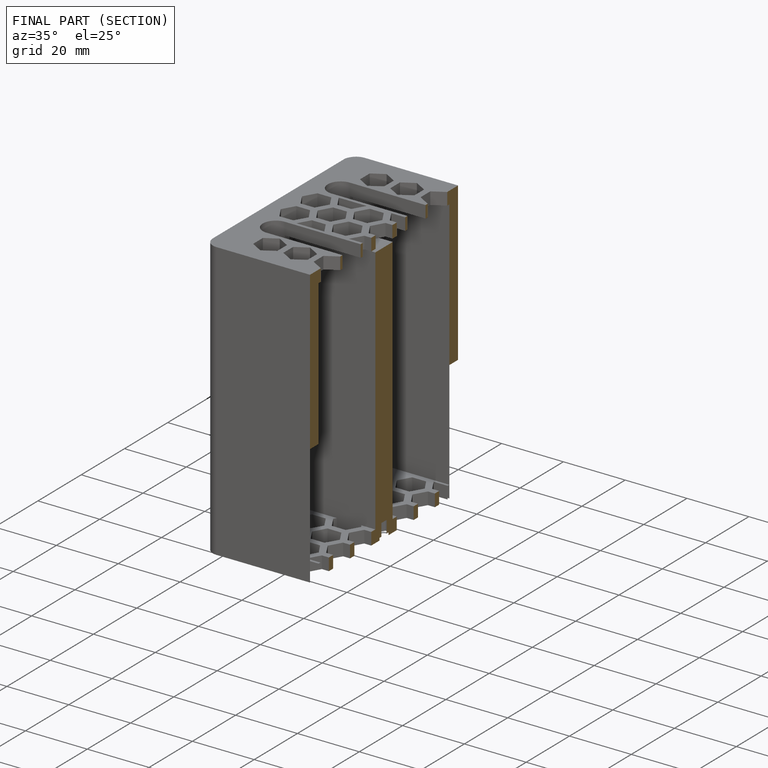
[diagram: finished part — half-section view (interior)]
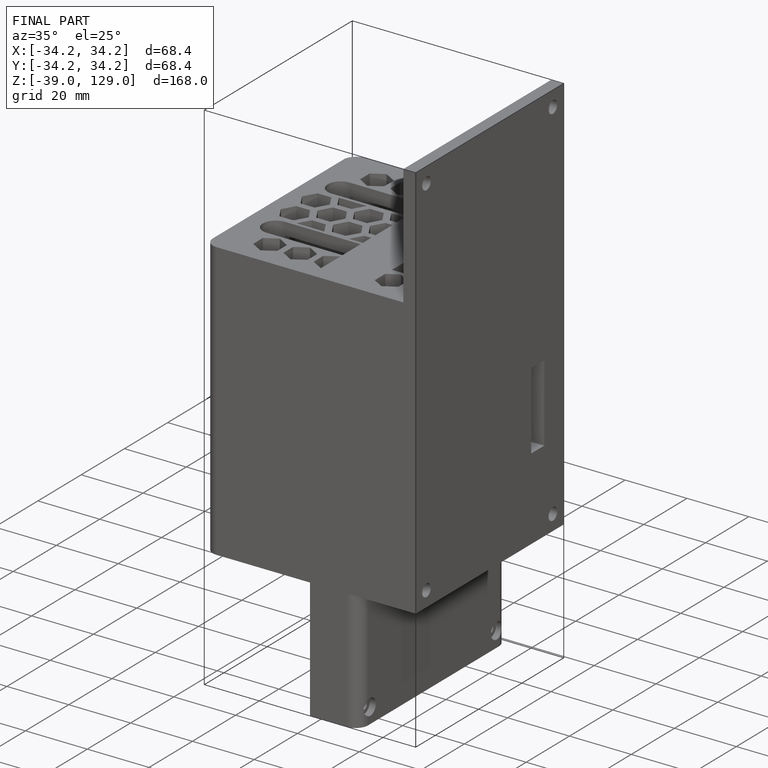
[diagram: finished part — iso view with bounding-box wireframe]
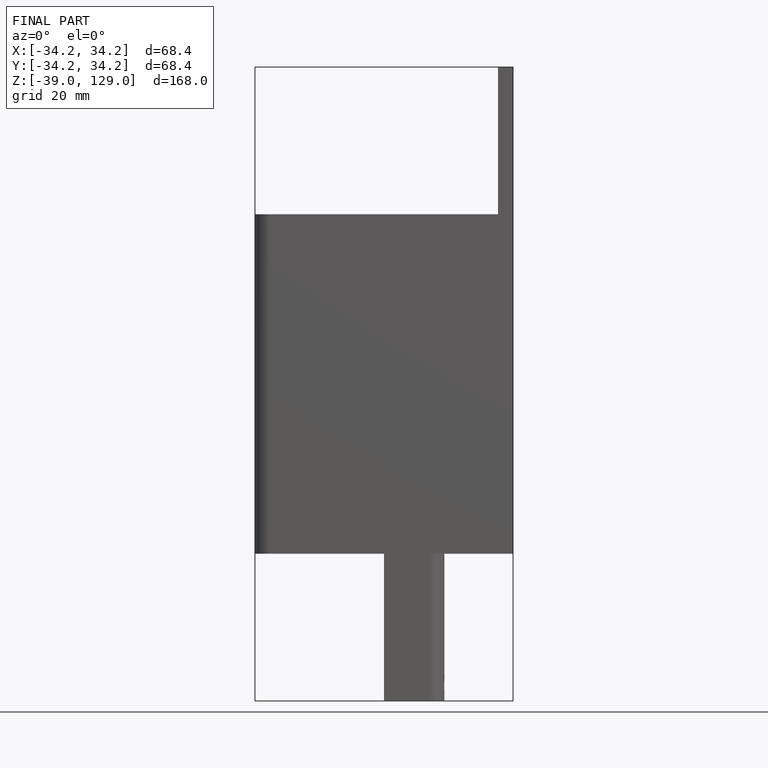
[diagram: finished part — front view with bounding-box wireframe]
